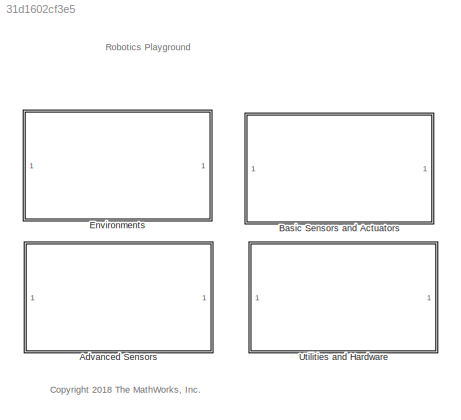
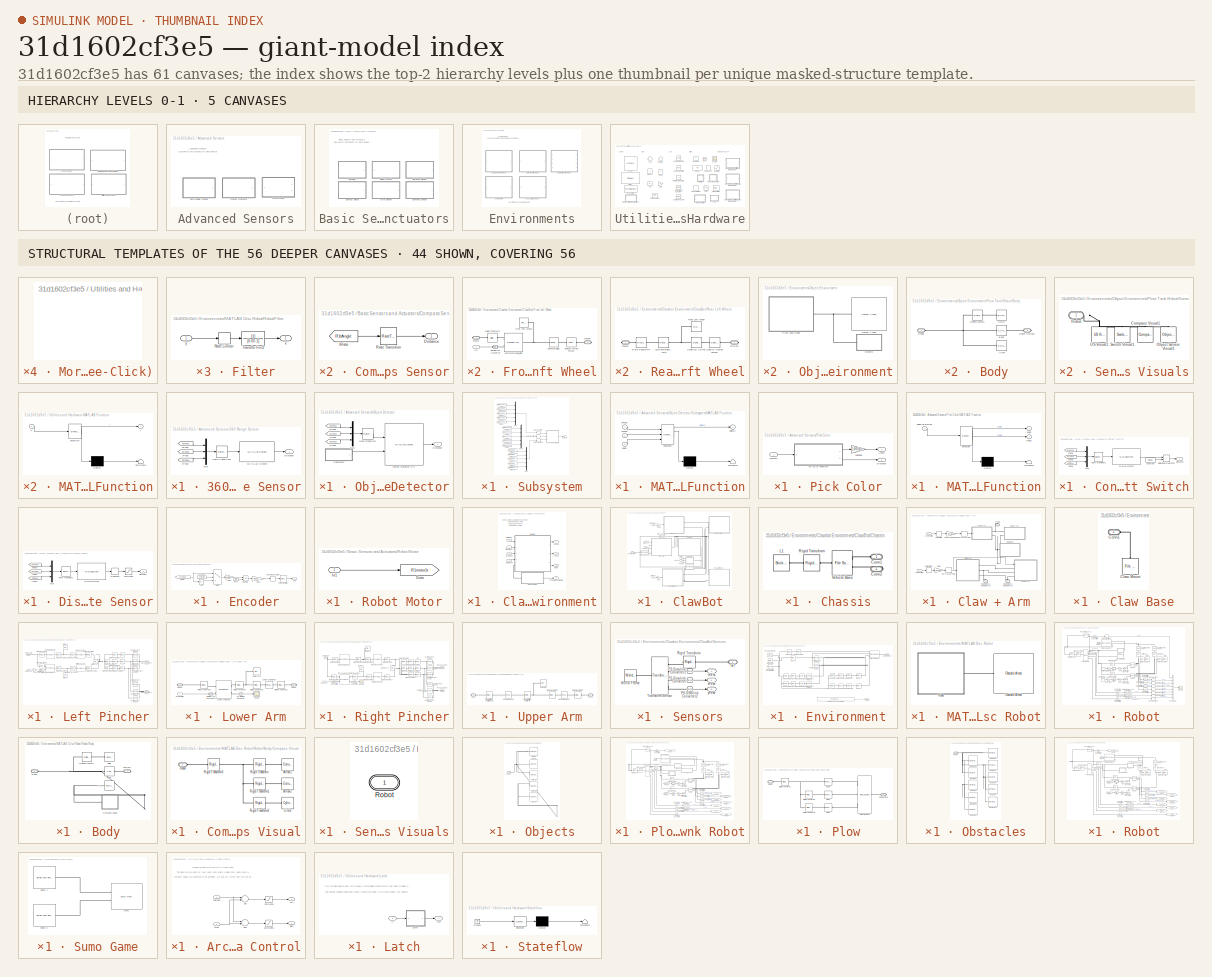
[diagram: thumbnail index - top-2 hierarchy levels (5 canvases) + 44 structural-template representatives of the remaining 56 canvases]
MODEL slx_31d1602cf3e5
KIND library
CONFIG AbsTol = auto
CONFIG EnableMultiTasking = off
CONFIG FixedStep = 0.01
CONFIG InitFcn = RPInit
CONFIG MaxStep = auto
CONFIG MinStep = auto
CONFIG RelTol = 1e-3
CONFIG SampleTimeConstraint = Unconstrained
CONFIG Solver = FixedStepDiscrete
CONFIG SolverName = FixedStepDiscrete
CONFIG StartTime = 0.0
CONFIG StopTime = 10.0
BLOCK [SubSystem] Advanced Sensors
  Ports = []
  RequestExecContextInheritance = off
BLOCK [SubSystem] Advanced Sensors/360 Range Sensor
  Ports = [0, 1]
  RequestExecContextInheritance = off
BLOCK [Outport] Advanced Sensors/360 Range Sensor/Distance
  IconDisplay = Port number
  VectorParamsAs1DForOutWhenUnconnected = off
BLOCK [MATLABSystem] Advanced Sensors/360 Range Sensor/MATLAB System
  MaskDisplay = disp(['Lidar' char(10) 'Sensor']);\nport_label('input',1,'pose');\nport_label('output',1,'ranges');
  MaskType = LidarSensorRP
  Ports = [1, 1]
  System = LidarSensorRP
  mapName = occGrid
  maxRange = maxSenRange
  scanAngles = [ 0:sensDegRes*pi/180:2*pi-(sensDegRes*pi/180)]
  sensorOffset = sensOff
BLOCK [Mux] Advanced Sensors/360 Range Sensor/Mux
  DisplayOption = bar
  Inputs = 3
  Ports = [3, 1]
BLOCK [RateTransition] Advanced Sensors/360 Range Sensor/Rate Transition1
  OutPortSampleTime = sensorTs
BLOCK [From] Advanced Sensors/360 Range Sensor/tPose
  GotoTag = R1tPose
  TagVisibility = global
BLOCK [From] Advanced Sensors/360 Range Sensor/xPose
  GotoTag = R1xPose
  TagVisibility = global
BLOCK [From] Advanced Sensors/360 Range Sensor/yPose
  GotoTag = R1yPose
  TagVisibility = global
BLOCK [SubSystem] Advanced Sensors/Object Detector
  Ports = [0, 1]
  RequestExecContextInheritance = off
BLOCK [Outport] Advanced Sensors/Object Detector/Distance
  IconDisplay = Port number
  VectorParamsAs1DForOutWhenUnconnected = off
BLOCK [Mux] Advanced Sensors/Object Detector/Mux
  DisplayOption = bar
  Inputs = 3
  Ports = [3, 1]
BLOCK [MATLABSystem] Advanced Sensors/Object Detector/Object Detector Src
  MaskDisplay = disp(['Object' char(10) 'Detector']);\nport_label('input',1,'pose');\nport_label('input',2,'objects');\nport_label('output',1,'detections');
  MaskType = ObjectDetectorRP
  Ports = [2, 1]
  System = ObjectDetectorRP
  fieldOfView = sensFOV*pi/180
  mapName = occGrid
  maxDetections = 5
  maxRange = maxSenRange
  sensorAngle = sensOffDeg*pi/180
  sensorOffset = sensOff
BLOCK [RateTransition] Advanced Sensors/Object Detector/Rate Transition
  OutPortSampleTime = sensorTs
BLOCK [SubSystem] Advanced Sensors/Object Detector/Subsystem
  Ports = [0, 1]
  RequestExecContextInheritance = off
BLOCK [From] Advanced Sensors/Object Detector/Subsystem/From
  GotoTag = Obj1xPose
BLOCK [From] Advanced Sensors/Object Detector/Subsystem/From1
  GotoTag = Obj2xPose
BLOCK [From] Advanced Sensors/Object Detector/Subsystem/From10
  GotoTag = Obj1label
BLOCK [From] Advanced Sensors/Object Detector/Subsystem/From11
  GotoTag = Obj2label
BLOCK [From] Advanced Sensors/Object Detector/Subsystem/From12
  GotoTag = Obj3label
BLOCK [From] Advanced Sensors/Object Detector/Subsystem/From13
  GotoTag = Obj4label
BLOCK [From] Advanced Sensors/Object Detector/Subsystem/From14
  GotoTag = Obj5label
BLOCK [From] Advanced Sensors/Object Detector/Subsystem/From2
  GotoTag = Obj3xPose
BLOCK [From] Advanced Sensors/Object Detector/Subsystem/From3
  GotoTag = Obj4xPose
BLOCK [From] Advanced Sensors/Object Detector/Subsystem/From4
  GotoTag = Obj5xPose
BLOCK [From] Advanced Sensors/Object Detector/Subsystem/From5
  GotoTag = Obj1yPose
BLOCK [From] Advanced Sensors/Object Detector/Subsystem/From6
  GotoTag = Obj2yPose
BLOCK [From] Advanced Sensors/Object Detector/Subsystem/From7
  GotoTag = Obj3yPose
BLOCK [From] Advanced Sensors/Object Detector/Subsystem/From8
  GotoTag = Obj4yPose
BLOCK [From] Advanced Sensors/Object Detector/Subsystem/From9
  GotoTag = Obj5yPose
BLOCK [SubSystem] Advanced Sensors/Object Detector/Subsystem/MATLAB Function
  ErrorFcn = Stateflow.Translate.translate
  PermitHierarchicalResolution = ExplicitOnly
  Ports = [3, 1]
  RequestExecContextInheritance = off
  SFBlockType = MATLAB Function
  TreatAsAtomicUnit = on
BLOCK [Demux] Advanced Sensors/Object Detector/Subsystem/MATLAB Function/ Demux 
  Outputs = 1
  Ports = [1, 1]
BLOCK [S-Function] Advanced Sensors/Object Detector/Subsystem/MATLAB Function/ SFunction 
  EnableBusSupport = off
  FunctionName = sf_sfun
  PortCounts = [3 2]
  Ports = [3, 2]
  SFcnIsStateOwnerBlock = off
  SFunctionDeploymentMode = off
  Tag = Stateflow S-Function 2
BLOCK [Terminator] Advanced Sensors/Object Detector/Subsystem/MATLAB Function/ Terminator 
BLOCK [Inport] Advanced Sensors/Object Detector/Subsystem/MATLAB Function/labels
  IconDisplay = Port number
  Port = 3
BLOCK [Outport] Advanced Sensors/Object Detector/Subsystem/MATLAB Function/objects
  IconDisplay = Port number
  VectorParamsAs1DForOutWhenUnconnected = off
BLOCK [Inport] Advanced Sensors/Object Detector/Subsystem/MATLAB Function/xPoses
  IconDisplay = Port number
BLOCK [Inport] Advanced Sensors/Object Detector/Subsystem/MATLAB Function/yPoses
  IconDisplay = Port number
  Port = 2
BLOCK [Mux] Advanced Sensors/Object Detector/Subsystem/Mux
  DisplayOption = bar
  Inputs = 5
  Ports = [5, 1]
BLOCK [Mux] Advanced Sensors/Object Detector/Subsystem/Mux2
  DisplayOption = bar
  Inputs = 5
  Ports = [5, 1]
BLOCK [Mux] Advanced Sensors/Object Detector/Subsystem/Mux3
  DisplayOption = bar
  Inputs = 5
  Ports = [5, 1]
BLOCK [Outport] Advanced Sensors/Object Detector/Subsystem/Objects
  IconDisplay = Port number
  VectorParamsAs1DForOutWhenUnconnected = off
BLOCK [RateTransition] Advanced Sensors/Object Detector/Subsystem/Rate Transition1
  OutPortSampleTime = sensorTs
BLOCK [RateTransition] Advanced Sensors/Object Detector/Subsystem/Rate Transition2
  OutPortSampleTime = sensorTs
BLOCK [RateTransition] Advanced Sensors/Object Detector/Subsystem/Rate Transition3
  OutPortSampleTime = sensorTs
BLOCK [From] Advanced Sensors/Object Detector/tPose
  GotoTag = R1tPose
  TagVisibility = global
BLOCK [From] Advanced Sensors/Object Detector/xPose
  GotoTag = R1xPose
  TagVisibility = global
BLOCK [From] Advanced Sensors/Object Detector/yPose
  GotoTag = R1yPose
  TagVisibility = global
BLOCK [SubSystem] Advanced Sensors/Pick Color
  Ports = [1, 2]
  RequestExecContextInheritance = off
BLOCK [Outport] Advanced Sensors/Pick Color/Angle
  IconDisplay = Port number
  VectorParamsAs1DForOutWhenUnconnected = off
BLOCK [Outport] Advanced Sensors/Pick Color/Distance
  IconDisplay = Port number
  Port = 2
  VectorParamsAs1DForOutWhenUnconnected = off
BLOCK [SubSystem] Advanced Sensors/Pick Color/MATLAB Function
  ErrorFcn = Stateflow.Translate.translate
  PermitHierarchicalResolution = ExplicitOnly
  Ports = [1, 2]
  RequestExecContextInheritance = off
  SFBlockType = MATLAB Function
  TreatAsAtomicUnit = on
BLOCK [Demux] Advanced Sensors/Pick Color/MATLAB Function/ Demux 
  Outputs = 1
  Ports = [1, 1]
BLOCK [S-Function] Advanced Sensors/Pick Color/MATLAB Function/ SFunction 
  EnableBusSupport = off
  FunctionName = sf_sfun
  Parameters = color
  PortCounts = [1 3]
  Ports = [1, 3]
  SFcnIsStateOwnerBlock = off
  SFunctionDeploymentMode = off
  Tag = Stateflow S-Function 6
BLOCK [Terminator] Advanced Sensors/Pick Color/MATLAB Function/ Terminator 
BLOCK [Outport] Advanced Sensors/Pick Color/MATLAB Function/angle
  IconDisplay = Port number
  VectorParamsAs1DForOutWhenUnconnected = off
BLOCK [Inport] Advanced Sensors/Pick Color/MATLAB Function/objectsDetected
  IconDisplay = Port number
BLOCK [Outport] Advanced Sensors/Pick Color/MATLAB Function/range
  IconDisplay = Port number
  Port = 2
  VectorParamsAs1DForOutWhenUnconnected = off
BLOCK [Inport] Advanced Sensors/Pick Color/Objects
  IconDisplay = Port number
BLOCK [Gain] Advanced Sensors/Pick Color/rad2deg
  Gain = 180/pi
  OutDataTypeStr = Inherit: Inherit via internal rule
  ParamDataTypeStr = Inherit: Inherit via internal rule
  SaturateOnIntegerOverflow = off
BLOCK [SubSystem] Basic Sensors and Actuators
  Ports = []
  RequestExecContextInheritance = off
BLOCK [SubSystem] Basic Sensors and Actuators/Compass Sensor
  Ports = [0, 1]
  RequestExecContextInheritance = off
BLOCK [Outport] Basic Sensors and Actuators/Compass Sensor/Distance
  IconDisplay = Port number
  VectorParamsAs1DForOutWhenUnconnected = off
BLOCK [RateTransition] Basic Sensors and Actuators/Compass Sensor/Rate Transition
  OutPortSampleTime = sensorTs
BLOCK [From] Basic Sensors and Actuators/Compass Sensor/tRate
  GotoTag = R1tAngle
  TagVisibility = global
BLOCK [SubSystem] Basic Sensors and Actuators/Contact Switch
  Ports = [0, 1]
  RequestExecContextInheritance = off
BLOCK [Constant] Basic Sensors and Actuators/Contact Switch/Constant
  Value = trigDist
BLOCK [Outport] Basic Sensors and Actuators/Contact Switch/Distance
  IconDisplay = Port number
  VectorParamsAs1DForOutWhenUnconnected = off
BLOCK [MATLABSystem] Basic Sensors and Actuators/Contact Switch/MATLAB System
  MaskDisplay = disp(['Lidar' char(10) 'Sensor']);\nport_label('input',1,'pose');\nport_label('output',1,'ranges');
  MaskType = LidarSensorRP
  Ports = [1, 1]
  System = LidarSensorRP
  mapName = occGrid
  maxRange = trigDist+1
  scanAngles = sensOffDeg*pi/180
  sensorOffset = sensOff
BLOCK [Mux] Basic Sensors and Actuators/Contact Switch/Mux
  DisplayOption = bar
  Inputs = 3
  Ports = [3, 1]
BLOCK [RateTransition] Basic Sensors and Actuators/Contact Switch/Rate Transition1
  OutPortSampleTime = sensorTs
BLOCK [RelationalOperator] Basic Sensors and Actuators/Contact Switch/Relational Operator
  InputSameDT = off
  Operator = <
  OutDataTypeStr = boolean
  Ports = [2, 1]
BLOCK [From] Basic Sensors and Actuators/Contact Switch/tPose
  GotoTag = R1tPose
  TagVisibility = global
BLOCK [From] Basic Sensors and Actuators/Contact Switch/xPose
  GotoTag = R1xPose
  TagVisibility = global
BLOCK [From] Basic Sensors and Actuators/Contact Switch/yPose
  GotoTag = R1yPose
  TagVisibility = global
BLOCK [SubSystem] Basic Sensors and Actuators/Distance Sensor
  Ports = [0, 1]
  RequestExecContextInheritance = off
BLOCK [Outport] Basic Sensors and Actuators/Distance Sensor/Distance
  IconDisplay = Port number
  VectorParamsAs1DForOutWhenUnconnected = off
BLOCK [MATLABSystem] Basic Sensors and Actuators/Distance Sensor/MATLAB System
  MaskDisplay = disp(['Lidar' char(10) 'Sensor']);\nport_label('input',1,'pose');\nport_label('output',1,'ranges');
  MaskType = LidarSensorRP
  Ports = [1, 1]
  System = LidarSensorRP
  mapName = occGrid
  maxRange = maxSenRange
  scanAngles = sensOffDeg*pi/180
  sensorOffset = sensOff
BLOCK [Mux] Basic Sensors and Actuators/Distance Sensor/Mux
  DisplayOption = bar
  Inputs = 3
  Ports = [3, 1]
BLOCK [Quantizer] Basic Sensors and Actuators/Distance Sensor/Quantizer
  QuantizationInterval = senRes
BLOCK [RateTransition] Basic Sensors and Actuators/Distance Sensor/Rate Transition1
  OutPortSampleTime = sensorTs
BLOCK [Saturate] Basic Sensors and Actuators/Distance Sensor/Saturation
  InputPortMap = u0
  LowerLimit = minSenRange
  Ports = [1, 1]
  UpperLimit = maxSenRange
BLOCK [From] Basic Sensors and Actuators/Distance Sensor/tPose
  GotoTag = R1tPose
  TagVisibility = global
BLOCK [From] Basic Sensors and Actuators/Distance Sensor/xPose
  GotoTag = R1xPose
  TagVisibility = global
BLOCK [From] Basic Sensors and Actuators/Distance Sensor/yPose
  GotoTag = R1yPose
  TagVisibility = global
BLOCK [SubSystem] Basic Sensors and Actuators/Encoder
  Ports = [0, 1]
  RequestExecContextInheritance = off
BLOCK [Abs] Basic Sensors and Actuators/Encoder/Abs
  SaturateOnIntegerOverflow = off
BLOCK [Constant] Basic Sensors and Actuators/Encoder/Constant
  Value = detectDir
BLOCK [Gain] Basic Sensors and Actuators/Encoder/Gain2
  Gain = 180/pi
  OutDataTypeStr = Inherit: Inherit via internal rule
  ParamDataTypeStr = Inherit: Inherit via internal rule
  SaturateOnIntegerOverflow = off
BLOCK [Gain] Basic Sensors and Actuators/Encoder/Gain3
  Gain = ticks/360
  OutDataTypeStr = Inherit: Inherit via internal rule
  ParamDataTypeStr = Inherit: Inherit via internal rule
  SaturateOnIntegerOverflow = off
BLOCK [Integrator] Basic Sensors and Actuators/Encoder/Integrator
  ExternalReset = rising
  Ports = [2, 1]
BLOCK [Outport] Basic Sensors and Actuators/Encoder/Out1
  IconDisplay = Port number
  VectorParamsAs1DForOutWhenUnconnected = off
BLOCK [RateTransition] Basic Sensors and Actuators/Encoder/Rate Transition
  OutPortSampleTime = sensorTs
BLOCK [Rounding] Basic Sensors and Actuators/Encoder/Rounding Function
  Operator = ceil
BLOCK [Switch] Basic Sensors and Actuators/Encoder/Switch
  Criteria = u2 ~= 0
  InputSameDT = off
  SaturateOnIntegerOverflow = off
BLOCK [From] Basic Sensors and Actuators/Encoder/motorw
  GotoTag = R1motor1w
  TagVisibility = global
BLOCK [Ground] Basic Sensors and Actuators/Encoder/reset
BLOCK [SubSystem] Basic Sensors and Actuators/Gyro Sensor
  Ports = [0, 1]
  RequestExecContextInheritance = off
BLOCK [Outport] Basic Sensors and Actuators/Gyro Sensor/Distance
  IconDisplay = Port number
  VectorParamsAs1DForOutWhenUnconnected = off
BLOCK [RateTransition] Basic Sensors and Actuators/Gyro Sensor/Rate Transition
  OutPortSampleTime = sensorTs
BLOCK [From] Basic Sensors and Actuators/Gyro Sensor/tRate
  GotoTag = R1tRate
  TagVisibility = global
BLOCK [SubSystem] Basic Sensors and Actuators/Robot Motor
  Ports = [1]
  RequestExecContextInheritance = off
BLOCK [Goto] Basic Sensors and Actuators/Robot Motor/Goto
  GotoTag = R1motor1t
  TagVisibility = global
BLOCK [Inport] Basic Sensors and Actuators/Robot Motor/In1
  IconDisplay = Port number
BLOCK [SubSystem] Environments
  Ports = []
  RequestExecContextInheritance = off
BLOCK [SubSystem] Environments/Clawbot Environment
  Ports = [4, 4]
  RequestExecContextInheritance = off
BLOCK [SubSystem] Environments/Clawbot Environment/ClawBot
  Ports = [4, 3, 0, 0, 0, 1]
  RequestExecContextInheritance = off
BLOCK [SubSystem] Environments/Clawbot Environment/ClawBot/Chassis
  Ports = [0, 0, 0, 0, 0, 1, 1]
  RequestExecContextInheritance = off
BLOCK [PMIOPort] Environments/Clawbot Environment/ClawBot/Chassis/Conn1
  Side = Left
BLOCK [PMIOPort] Environments/Clawbot Environment/ClawBot/Chassis/Conn2
  Port = 2
  Side = Right
BLOCK [Reference] Environments/Clawbot Environment/ClawBot/Chassis/L1  REF=sm_lib/Body Elements/Brick Solid
  Ports = [0, 0, 0, 0, 0, 1]
  SourceBlock = sm_lib/Body Elements/Brick Solid
  SourceProductBaseCode = MS
  SourceType = Brick Solid
BLOCK [Reference] Environments/Clawbot Environment/ClawBot/Chassis/Rigid Transform  REF=sm_lib/Frames and
Transforms/Rigid
Transform
  Ports = [0, 0, 0, 0, 0, 1, 1]
  SourceBlock = sm_lib/Frames and\nTransforms/Rigid\nTransform
  SourceProductBaseCode = MS
  SourceType = Rigid\nTransform
BLOCK [Reference] Environments/Clawbot Environment/ClawBot/Chassis/Vehicle Base  REF=sm_lib/Body Elements/File Solid
  Ports = [0, 0, 0, 0, 0, 2, 1]
  SourceBlock = sm_lib/Body Elements/File Solid
  SourceProductBaseCode = MS
  SourceType = File Solid
BLOCK [SubSystem] Environments/Clawbot Environment/ClawBot/Claw + Arm
  Ports = [2, 0, 0, 0, 0, 2, 1]
  RequestExecContextInheritance = off
BLOCK [SubSystem] Environments/Clawbot Environment/ClawBot/Claw + Arm/Claw Base
  Ports = [0, 0, 0, 0, 0, 1]
  RequestExecContextInheritance = off
BLOCK [Reference] Environments/Clawbot Environment/ClawBot/Claw + Arm/Claw Base/Claw Mount  REF=sm_lib/Body Elements/File Solid
  Ports = [0, 0, 0, 0, 0, 1]
  SourceBlock = sm_lib/Body Elements/File Solid
  SourceProductBaseCode = MS
  SourceType = File Solid
BLOCK [PMIOPort] Environments/Clawbot Environment/ClawBot/Claw + Arm/Claw Base/Conn1
  Side = Left
BLOCK [PMIOPort] Environments/Clawbot Environment/ClawBot/Claw + Arm/Claw2Block1 Contact Force
  Port = 2
  Side = Left
BLOCK [PMIOPort] Environments/Clawbot Environment/ClawBot/Claw + Arm/Claw2Block2 Contact Force
  Side = Left
BLOCK [Gain] Environments/Clawbot Environment/ClawBot/Claw + Arm/Degrees to Radians
  Gain = pi/180
  OutDataTypeStr = Inherit: Inherit via internal rule
  ParamDataTypeStr = Inherit: Inherit via internal rule
  SaturateOnIntegerOverflow = off
BLOCK [PMIOPort] Environments/Clawbot Environment/ClawBot/Claw + Arm/Frame
  Port = 3
  Side = Right
BLOCK [Gain] Environments/Clawbot Environment/ClawBot/Claw + Arm/Gain1
  Gain = pi/180
  OutDataTypeStr = Inherit: Inherit via internal rule
  ParamDataTypeStr = Inherit: Inherit via internal rule
  SaturateOnIntegerOverflow = off
BLOCK [SubSystem] Environments/Clawbot Environment/ClawBot/Claw + Arm/Left Pincher
  Ports = [1, 0, 0, 0, 0, 0, 3]
  RequestExecContextInheritance = off
BLOCK [PMIOPort] Environments/Clawbot Environment/ClawBot/Claw + Arm/Left Pincher/Block1 Contact Force
  Port = 2
  Side = Right
BLOCK [PMIOPort] Environments/Clawbot Environment/ClawBot/Claw + Arm/Left Pincher/Block2 Contact Force
  Port = 3
  Side = Right
BLOCK [PMIOPort] Environments/Clawbot Environment/ClawBot/Claw + Arm/Left Pincher/Frame2arm
  Side = Right
BLOCK [Gain] Environments/Clawbot Environment/ClawBot/Claw + Arm/Left Pincher/Gain
  Gain = -1
  OutDataTypeStr = Inherit: Inherit via internal rule
  ParamDataTypeStr = Inherit: Inherit via internal rule
  SaturateOnIntegerOverflow = off
BLOCK [Reference] Environments/Clawbot Environment/ClawBot/Claw + Arm/Left Pincher/L1  REF=sm_lib/Body Elements/Brick Solid
  Ports = [0, 0, 0, 0, 0, 1, 1]
  SourceBlock = sm_lib/Body Elements/Brick Solid
  SourceProductBaseCode = MS
  SourceType = Brick Solid
BLOCK [Reference] Environments/Clawbot Environment/ClawBot/Claw + Arm/Left Pincher/L2  REF=sm_lib/Body Elements/Brick Solid
  Ports = [0, 0, 0, 0, 0, 1, 1]
  SourceBlock = sm_lib/Body Elements/Brick Solid
  SourceProductBaseCode = MS
  SourceType = Brick Solid
BLOCK [Reference] Environments/Clawbot Environment/ClawBot/Claw + Arm/Left Pincher/L3  REF=sm_lib/Body Elements/Brick Solid
  Ports = [0, 0, 0, 0, 0, 1, 1]
  SourceBlock = sm_lib/Body Elements/Brick Solid
  SourceProductBaseCode = MS
  SourceType = Brick Solid
BLOCK [Reference] Environments/Clawbot Environment/ClawBot/Claw + Arm/Left Pincher/Rigid Transform1  REF=sm_lib/Frames and
Transforms/Rigid
Transform
  Ports = [0, 0, 0, 0, 0, 1, 1]
  SourceBlock = sm_lib/Frames and\nTransforms/Rigid\nTransform
  SourceProductBaseCode = MS
  SourceType = Rigid\nTransform
BLOCK [Reference] Environments/Clawbot Environment/ClawBot/Claw + Arm/Left Pincher/Rigid Transform18  REF=sm_lib/Frames and
Transforms/Rigid
Transform
  Ports = [0, 0, 0, 0, 0, 1, 1]
  SourceBlock = sm_lib/Frames and\nTransforms/Rigid\nTransform
  SourceProductBaseCode = MS
  SourceType = Rigid\nTransform
BLOCK [Reference] Environments/Clawbot Environment/ClawBot/Claw + Arm/Left Pincher/Rigid Transform19  REF=sm_lib/Frames and
Transforms/Rigid
Transform
  Ports = [0, 0, 0, 0, 0, 1, 1]
  SourceBlock = sm_lib/Frames and\nTransforms/Rigid\nTransform
  SourceProductBaseCode = MS
  SourceType = Rigid\nTransform
BLOCK [Reference] Environments/Clawbot Environment/ClawBot/Claw + Arm/Left Pincher/Rigid Transform2  REF=sm_lib/Frames and
Transforms/Rigid
Transform
  Ports = [0, 0, 0, 0, 0, 1, 1]
  SourceBlock = sm_lib/Frames and\nTransforms/Rigid\nTransform
  SourceProductBaseCode = MS
  SourceType = Rigid\nTransform
BLOCK [Reference] Environments/Clawbot Environment/ClawBot/Claw + Arm/Left Pincher/Rigid Transform20  REF=sm_lib/Frames and
Transforms/Rigid
Transform
  Ports = [0, 0, 0, 0, 0, 1, 1]
  SourceBlock = sm_lib/Frames and\nTransforms/Rigid\nTransform
  SourceProductBaseCode = MS
  SourceType = Rigid\nTransform
BLOCK [Reference] Environments/Clawbot Environment/ClawBot/Claw + Arm/Left Pincher/Rigid Transform21  REF=sm_lib/Frames and
Transforms/Rigid
Transform
  Ports = [0, 0, 0, 0, 0, 1, 1]
  SourceBlock = sm_lib/Frames and\nTransforms/Rigid\nTransform
  SourceProductBaseCode = MS
  SourceType = Rigid\nTransform
BLOCK [Reference] Environments/Clawbot Environment/ClawBot/Claw + Arm/Left Pincher/Rigid Transform22  REF=sm_lib/Frames and
Transforms/Rigid
Transform
  Ports = [0, 0, 0, 0, 0, 1, 1]
  SourceBlock = sm_lib/Frames and\nTransforms/Rigid\nTransform
  SourceProductBaseCode = MS
  SourceType = Rigid\nTransform
BLOCK [Reference] Environments/Clawbot Environment/ClawBot/Claw + Arm/Left Pincher/Rigid Transform23  REF=sm_lib/Frames and
Transforms/Rigid
Transform
  Ports = [0, 0, 0, 0, 0, 1, 1]
  SourceBlock = sm_lib/Frames and\nTransforms/Rigid\nTransform
  SourceProductBaseCode = MS
  SourceType = Rigid\nTransform
BLOCK [Reference] Environments/Clawbot Environment/ClawBot/Claw + Arm/Left Pincher/Rigid Transform25  REF=sm_lib/Frames and
Transforms/Rigid
Transform
  Ports = [0, 0, 0, 0, 0, 1, 1]
  SourceBlock = sm_lib/Frames and\nTransforms/Rigid\nTransform
  SourceProductBaseCode = MS
  SourceType = Rigid\nTransform
BLOCK [Reference] Environments/Clawbot Environment/ClawBot/Claw + Arm/Left Pincher/Rigid Transform27  REF=sm_lib/Frames and
Transforms/Rigid
Transform
  Ports = [0, 0, 0, 0, 0, 1, 1]
  SourceBlock = sm_lib/Frames and\nTransforms/Rigid\nTransform
  SourceProductBaseCode = MS
  SourceType = Rigid\nTransform
BLOCK [Reference] Environments/Clawbot Environment/ClawBot/Claw + Arm/Left Pincher/Rigid Transform28  REF=sm_lib/Frames and
Transforms/Rigid
Transform
  Ports = [0, 0, 0, 0, 0, 1, 1]
  SourceBlock = sm_lib/Frames and\nTransforms/Rigid\nTransform
  SourceProductBaseCode = MS
  SourceType = Rigid\nTransform
BLOCK [Reference] Environments/Clawbot Environment/ClawBot/Claw + Arm/Left Pincher/Rigid Transform3  REF=sm_lib/Frames and
Transforms/Rigid
Transform
  Ports = [0, 0, 0, 0, 0, 1, 1]
  SourceBlock = sm_lib/Frames and\nTransforms/Rigid\nTransform
  SourceProductBaseCode = MS
  SourceType = Rigid\nTransform
BLOCK [Reference] Environments/Clawbot Environment/ClawBot/Claw + Arm/Left Pincher/Rigid Transform5  REF=sm_lib/Frames and
Transforms/Rigid
Transform
  Ports = [0, 0, 0, 0, 0, 1, 1]
  SourceBlock = sm_lib/Frames and\nTransforms/Rigid\nTransform
  SourceProductBaseCode = MS
  SourceType = Rigid\nTransform
BLOCK [Reference] Environments/Clawbot Environment/ClawBot/Claw + Arm/Left Pincher/Simulink-PS Converter1  REF=nesl_utility/Simulink-PS
Converter
  Ports = [1, 0, 0, 0, 0, 0, 1]
  SourceBlock = nesl_utility/Simulink-PS\nConverter
  SourceProductBaseCode = SS
  SourceType = Simulink-PS\nConverter
BLOCK [Reference] Environments/Clawbot Environment/ClawBot/Claw + Arm/Left Pincher/Spatial Contact Force1  REF=sm_lib/Forces and
Torques/Spatial
Contact Force
  Ports = [0, 0, 0, 0, 0, 1, 1]
  SourceBlock = sm_lib/Forces and\nTorques/Spatial\nContact Force
  SourceProductBaseCode = MS
  SourceType = Spatial\nContact Force
BLOCK [Reference] Environments/Clawbot Environment/ClawBot/Claw + Arm/Left Pincher/Spatial Contact Force2  REF=sm_lib/Forces and
Torques/Spatial
Contact Force
  Ports = [0, 0, 0, 0, 0, 1, 1]
  SourceBlock = sm_lib/Forces and\nTorques/Spatial\nContact Force
  SourceProductBaseCode = MS
  SourceType = Spatial\nContact Force
BLOCK [Reference] Environments/Clawbot Environment/ClawBot/Claw + Arm/Left Pincher/Spatial Contact Force3  REF=sm_lib/Forces and
Torques/Spatial
Contact Force
  Ports = [0, 0, 0, 0, 0, 1, 1]
  SourceBlock = sm_lib/Forces and\nTorques/Spatial\nContact Force
  SourceProductBaseCode = MS
  SourceType = Spatial\nContact Force
BLOCK [Reference] Environments/Clawbot Environment/ClawBot/Claw + Arm/Left Pincher/Spatial Contact Force4  REF=sm_lib/Forces and
Torques/Spatial
Contact Force
  Ports = [0, 0, 0, 0, 0, 1, 1]
  SourceBlock = sm_lib/Forces and\nTorques/Spatial\nContact Force
  SourceProductBaseCode = MS
  SourceType = Spatial\nContact Force
BLOCK [Reference] Environments/Clawbot Environment/ClawBot/Claw + Arm/Left Pincher/Spatial Contact Force5  REF=sm_lib/Forces and
Torques/Spatial
Contact Force
  Ports = [0, 0, 0, 0, 0, 1, 1]
  SourceBlock = sm_lib/Forces and\nTorques/Spatial\nContact Force
  SourceProductBaseCode = MS
  SourceType = Spatial\nContact Force
BLOCK [Reference] Environments/Clawbot Environment/ClawBot/Claw + Arm/Left Pincher/Spatial Contact Force6  REF=sm_lib/Forces and
Torques/Spatial
Contact Force
  Ports = [0, 0, 0, 0, 0, 1, 1]
  SourceBlock = sm_lib/Forces and\nTorques/Spatial\nContact Force
  SourceProductBaseCode = MS
  SourceType = Spatial\nContact Force
BLOCK [Inport] Environments/Clawbot Environment/ClawBot/Claw + Arm/Left Pincher/clawPose
  IconDisplay = Port number
BLOCK [Reference] Environments/Clawbot Environment/ClawBot/Claw + Arm/Left Pincher/left gear  REF=sm_lib/Body Elements/File Solid
  Ports = [0, 0, 0, 0, 0, 1]
  SourceBlock = sm_lib/Body Elements/File Solid
  SourceProductBaseCode = MS
  SourceType = File Solid
BLOCK [Reference] Environments/Clawbot Environment/ClawBot/Claw + Arm/Left Pincher/left pinch2gear  REF=sm_lib/Joints/Revolute Joint
  Ports = [0, 0, 0, 0, 0, 1, 1]
  SourceBlock = sm_lib/Joints/Revolute Joint
  SourceProductBaseCode = MS
  SourceType = Revolute Joint
BLOCK [Reference] Environments/Clawbot Environment/ClawBot/Claw + Arm/Left Pincher/left pincher  REF=sm_lib/Body Elements/File Solid
  Ports = [0, 0, 0, 0, 0, 1]
  SourceBlock = sm_lib/Body Elements/File Solid
  SourceProductBaseCode = MS
  SourceType = File Solid
BLOCK [Reference] Environments/Clawbot Environment/ClawBot/Claw + Arm/Left Pincher/left pivot  REF=sm_lib/Body Elements/File Solid
  Ports = [0, 0, 0, 0, 0, 1]
  SourceBlock = sm_lib/Body Elements/File Solid
  SourceProductBaseCode = MS
  SourceType = File Solid
BLOCK [Reference] Environments/Clawbot Environment/ClawBot/Claw + Arm/Left Pincher/left_gear2mount  REF=sm_lib/Joints/Revolute Joint
  Ports = [0, 0, 0, 0, 0, 2, 1]
  SourceBlock = sm_lib/Joints/Revolute Joint
  SourceProductBaseCode = MS
  SourceType = Revolute Joint
BLOCK [Reference] Environments/Clawbot Environment/ClawBot/Claw + Arm/Left Pincher/left_pinch2pivot  REF=sm_lib/Joints/Revolute Joint
  Ports = [0, 0, 0, 0, 0, 1, 1]
  SourceBlock = sm_lib/Joints/Revolute Joint
  SourceProductBaseCode = MS
  SourceType = Revolute Joint
BLOCK [Reference] Environments/Clawbot Environment/ClawBot/Claw + Arm/Left Pincher/left_pivot2mount  REF=sm_lib/Joints/Revolute Joint
  Ports = [0, 0, 0, 0, 0, 1, 1]
  SourceBlock = sm_lib/Joints/Revolute Joint
  SourceProductBaseCode = MS
  SourceType = Revolute Joint
BLOCK [SubSystem] Environments/Clawbot Environment/ClawBot/Claw + Arm/Lower Arm
  Ports = [1, 0, 0, 0, 0, 0, 2]
  RequestExecContextInheritance = off
BLOCK [PMIOPort] Environments/Clawbot Environment/ClawBot/Claw + Arm/Lower Arm/Conn1
  Side = Right
BLOCK [PMIOPort] Environments/Clawbot Environment/ClawBot/Claw + Arm/Lower Arm/Conn2
  Port = 2
  Side = Right
BLOCK [Reference] Environments/Clawbot Environment/ClawBot/Claw + Arm/Lower Arm/Lower Arm  REF=sm_lib/Body Elements/File Solid
  Ports = [0, 0, 0, 0, 0, 1]
  SourceBlock = sm_lib/Body Elements/File Solid
  SourceProductBaseCode = MS
  SourceType = File Solid
BLOCK [Reference] Environments/Clawbot Environment/ClawBot/Claw + Arm/Lower Arm/LowerArm2base  REF=sm_lib/Joints/Revolute Joint
  Ports = [0, 0, 0, 0, 0, 2, 2]
  SourceBlock = sm_lib/Joints/Revolute Joint
  SourceProductBaseCode = MS
  SourceType = Revolute Joint
BLOCK [Reference] Environments/Clawbot Environment/ClawBot/Claw + Arm/Lower Arm/LowerArm2mount  REF=sm_lib/Joints/Revolute Joint
  Ports = [0, 0, 0, 0, 0, 1, 1]
  SourceBlock = sm_lib/Joints/Revolute Joint
  SourceProductBaseCode = MS
  SourceType = Revolute Joint
BLOCK [Reference] Environments/Clawbot Environment/ClawBot/Claw + Arm/Lower Arm/PS-Simulink Converter  REF=nesl_utility/PS-Simulink
Converter
  Ports = [0, 1, 0, 0, 0, 1]
  SourceBlock = nesl_utility/PS-Simulink\nConverter
  SourceProductBaseCode = SS
  SourceType = PS-Simulink\nConverter
BLOCK [Reference] Environments/Clawbot Environment/ClawBot/Claw + Arm/Lower Arm/Rigid Transform10  REF=sm_lib/Frames and
Transforms/Rigid
Transform
  Ports = [0, 0, 0, 0, 0, 1, 1]
  SourceBlock = sm_lib/Frames and\nTransforms/Rigid\nTransform
  SourceProductBaseCode = MS
  SourceType = Rigid\nTransform
BLOCK [Reference] Environments/Clawbot Environment/ClawBot/Claw + Arm/Lower Arm/Rigid Transform13  REF=sm_lib/Frames and
Transforms/Rigid
Transform
  Ports = [0, 0, 0, 0, 0, 1, 1]
  SourceBlock = sm_lib/Frames and\nTransforms/Rigid\nTransform
  SourceProductBaseCode = MS
  SourceType = Rigid\nTransform
BLOCK [Reference] Environments/Clawbot Environment/ClawBot/Claw + Arm/Lower Arm/Rigid Transform16  REF=sm_lib/Frames and
Transforms/Rigid
Transform
  Ports = [0, 0, 0, 0, 0, 1, 1]
  SourceBlock = sm_lib/Frames and\nTransforms/Rigid\nTransform
  SourceProductBaseCode = MS
  SourceType = Rigid\nTransform
BLOCK [Reference] Environments/Clawbot Environment/ClawBot/Claw + Arm/Lower Arm/Rigid Transform9  REF=sm_lib/Frames and
Transforms/Rigid
Transform
  Ports = [0, 0, 0, 0, 0, 1, 1]
  SourceBlock = sm_lib/Frames and\nTransforms/Rigid\nTransform
  SourceProductBaseCode = MS
  SourceType = Rigid\nTransform
BLOCK [Scope] Environments/Clawbot Environment/ClawBot/Claw + Arm/Lower Arm/Scope
  Floating = off
  NumInputPorts = 1
  Ports = [1]
  ScopeSpecificationString = Simulink.scopes.TimeScopeBlockCfg('CurrentConfiguration', extmgr.ConfigurationSet(extmgr.Configuration('Core','General UI',true),extmgr.Configuration('Core','Source UI',true),extmgr.Configuration('Sources','WiredSimulink',true),extmgr.Configuration('Visuals','Time Domain',true,'SerializedDisplays',{struct('MinYLimReal','-101.85053','MaxYLimReal','95.32252','YLabelReal','','MinYLimMag',' 0.00000','...<+1380ch>
BLOCK [Reference] Environments/Clawbot Environment/ClawBot/Claw + Arm/Lower Arm/Simulink-PS Converter2  REF=nesl_utility/Simulink-PS
Converter
  Ports = [1, 0, 0, 0, 0, 0, 1]
  SourceBlock = nesl_utility/Simulink-PS\nConverter
  SourceProductBaseCode = SS
  SourceType = Simulink-PS\nConverter
BLOCK [Inport] Environments/Clawbot Environment/ClawBot/Claw + Arm/Lower Arm/armPosition
  IconDisplay = Port number
BLOCK [RateLimiter] Environments/Clawbot Environment/ClawBot/Claw + Arm/Rate Limiter
  FallingSlewLimit = -25
  RisingSlewLimit = 25
  SampleTimeMode = inherited
BLOCK [RateLimiter] Environments/Clawbot Environment/ClawBot/Claw + Arm/Rate Limiter1
  FallingSlewLimit = -1000
  RisingSlewLimit = 1000
  SampleTimeMode = inherited
BLOCK [SubSystem] Environments/Clawbot Environment/ClawBot/Claw + Arm/Right Pincher
  Ports = [1, 0, 0, 0, 0, 3]
  RequestExecContextInheritance = off
BLOCK [PMIOPort] Environments/Clawbot Environment/ClawBot/Claw + Arm/Right Pincher/Block1 Contact Force
  Port = 2
  Side = Left
BLOCK [PMIOPort] Environments/Clawbot Environment/ClawBot/Claw + Arm/Right Pincher/Block2 Contact Force
  Port = 3
  Side = Left
BLOCK [PMIOPort] Environments/Clawbot Environment/ClawBot/Claw + Arm/Right Pincher/Claw Base
  Side = Left
BLOCK [Reference] Environments/Clawbot Environment/ClawBot/Claw + Arm/Right Pincher/PS-Simulink Converter  REF=nesl_utility/PS-Simulink
Converter
  Ports = [0, 1, 0, 0, 0, 1]
  SourceBlock = nesl_utility/PS-Simulink\nConverter
  SourceProductBaseCode = SS
  SourceType = PS-Simulink\nConverter
BLOCK [Reference] Environments/Clawbot Environment/ClawBot/Claw + Arm/Right Pincher/R1  REF=sm_lib/Body Elements/Brick Solid
  Ports = [0, 0, 0, 0, 0, 1, 1]
  SourceBlock = sm_lib/Body Elements/Brick Solid
  SourceProductBaseCode = MS
  SourceType = Brick Solid
BLOCK [Reference] Environments/Clawbot Environment/ClawBot/Claw + Arm/Right Pincher/R2  REF=sm_lib/Body Elements/Brick Solid
  Ports = [0, 0, 0, 0, 0, 1, 1]
  SourceBlock = sm_lib/Body Elements/Brick Solid
  SourceProductBaseCode = MS
  SourceType = Brick Solid
BLOCK [Reference] Environments/Clawbot Environment/ClawBot/Claw + Arm/Right Pincher/R3  REF=sm_lib/Body Elements/Brick Solid
  Ports = [0, 0, 0, 0, 0, 1, 1]
  SourceBlock = sm_lib/Body Elements/Brick Solid
  SourceProductBaseCode = MS
  SourceType = Brick Solid
BLOCK [Reference] Environments/Clawbot Environment/ClawBot/Claw + Arm/Right Pincher/Rigid Transform  REF=sm_lib/Frames and
Transforms/Rigid
Transform
  Ports = [0, 0, 0, 0, 0, 1, 1]
  SourceBlock = sm_lib/Frames and\nTransforms/Rigid\nTransform
  SourceProductBaseCode = MS
  SourceType = Rigid\nTransform
BLOCK [Reference] Environments/Clawbot Environment/ClawBot/Claw + Arm/Right Pincher/Rigid Transform1  REF=sm_lib/Frames and
Transforms/Rigid
Transform
  Ports = [0, 0, 0, 0, 0, 1, 1]
  SourceBlock = sm_lib/Frames and\nTransforms/Rigid\nTransform
  SourceProductBaseCode = MS
  SourceType = Rigid\nTransform
BLOCK [Reference] Environments/Clawbot Environment/ClawBot/Claw + Arm/Right Pincher/Rigid Transform11  REF=sm_lib/Frames and
Transforms/Rigid
Transform
  Ports = [0, 0, 0, 0, 0, 1, 1]
  SourceBlock = sm_lib/Frames and\nTransforms/Rigid\nTransform
  SourceProductBaseCode = MS
  SourceType = Rigid\nTransform
BLOCK [Reference] Environments/Clawbot Environment/ClawBot/Claw + Arm/Right Pincher/Rigid Transform14  REF=sm_lib/Frames and
Transforms/Rigid
Transform
  Ports = [0, 0, 0, 0, 0, 1, 1]
  SourceBlock = sm_lib/Frames and\nTransforms/Rigid\nTransform
  SourceProductBaseCode = MS
  SourceType = Rigid\nTransform
BLOCK [Reference] Environments/Clawbot Environment/ClawBot/Claw + Arm/Right Pincher/Rigid Transform17  REF=sm_lib/Frames and
Transforms/Rigid
Transform
  Ports = [0, 0, 0, 0, 0, 1, 1]
  SourceBlock = sm_lib/Frames and\nTransforms/Rigid\nTransform
  SourceProductBaseCode = MS
  SourceType = Rigid\nTransform
BLOCK [Reference] Environments/Clawbot Environment/ClawBot/Claw + Arm/Right Pincher/Rigid Transform24  REF=sm_lib/Frames and
Transforms/Rigid
Transform
  Ports = [0, 0, 0, 0, 0, 1, 1]
  SourceBlock = sm_lib/Frames and\nTransforms/Rigid\nTransform
  SourceProductBaseCode = MS
  SourceType = Rigid\nTransform
BLOCK [Reference] Environments/Clawbot Environment/ClawBot/Claw + Arm/Right Pincher/Rigid Transform29  REF=sm_lib/Frames and
Transforms/Rigid
Transform
  Ports = [0, 0, 0, 0, 0, 1, 1]
  SourceBlock = sm_lib/Frames and\nTransforms/Rigid\nTransform
  SourceProductBaseCode = MS
  SourceType = Rigid\nTransform
BLOCK [Reference] Environments/Clawbot Environment/ClawBot/Claw + Arm/Right Pincher/Rigid Transform3  REF=sm_lib/Frames and
Transforms/Rigid
Transform
  Ports = [0, 0, 0, 0, 0, 1, 1]
  SourceBlock = sm_lib/Frames and\nTransforms/Rigid\nTransform
  SourceProductBaseCode = MS
  SourceType = Rigid\nTransform
BLOCK [Reference] Environments/Clawbot Environment/ClawBot/Claw + Arm/Right Pincher/Rigid Transform30  REF=sm_lib/Frames and
Transforms/Rigid
Transform
  Ports = [0, 0, 0, 0, 0, 1, 1]
  SourceBlock = sm_lib/Frames and\nTransforms/Rigid\nTransform
  SourceProductBaseCode = MS
  SourceType = Rigid\nTransform
BLOCK [Reference] Environments/Clawbot Environment/ClawBot/Claw + Arm/Right Pincher/Rigid Transform4  REF=sm_lib/Frames and
Transforms/Rigid
Transform
  Ports = [0, 0, 0, 0, 0, 1, 1]
  SourceBlock = sm_lib/Frames and\nTransforms/Rigid\nTransform
  SourceProductBaseCode = MS
  SourceType = Rigid\nTransform
BLOCK [Reference] Environments/Clawbot Environment/ClawBot/Claw + Arm/Right Pincher/Rigid Transform5  REF=sm_lib/Frames and
Transforms/Rigid
Transform
  Ports = [0, 0, 0, 0, 0, 1, 1]
  SourceBlock = sm_lib/Frames and\nTransforms/Rigid\nTransform
  SourceProductBaseCode = MS
  SourceType = Rigid\nTransform
BLOCK [Reference] Environments/Clawbot Environment/ClawBot/Claw + Arm/Right Pincher/Rigid Transform6  REF=sm_lib/Frames and
Transforms/Rigid
Transform
  Ports = [0, 0, 0, 0, 0, 1, 1]
  SourceBlock = sm_lib/Frames and\nTransforms/Rigid\nTransform
  SourceProductBaseCode = MS
  SourceType = Rigid\nTransform
BLOCK [Reference] Environments/Clawbot Environment/ClawBot/Claw + Arm/Right Pincher/Rigid Transform7  REF=sm_lib/Frames and
Transforms/Rigid
Transform
  Ports = [0, 0, 0, 0, 0, 1, 1]
  SourceBlock = sm_lib/Frames and\nTransforms/Rigid\nTransform
  SourceProductBaseCode = MS
  SourceType = Rigid\nTransform
BLOCK [Scope] Environments/Clawbot Environment/ClawBot/Claw + Arm/Right Pincher/Scope
  Floating = off
  NumInputPorts = 1
  Ports = [1]
  ScopeSpecificationString = Simulink.scopes.TimeScopeBlockCfg('CurrentConfiguration', extmgr.ConfigurationSet(extmgr.Configuration('Core','General UI',true),extmgr.Configuration('Core','Source UI',true),extmgr.Configuration('Sources','WiredSimulink',true,'DataLoggingVariableName','ScopeData4'),extmgr.Configuration('Visuals','Time Domain',true,'SerializedDisplays',{struct('MinYLimReal','-826.00645','MaxYLimReal','891.95562','...<+1422ch>
BLOCK [Reference] Environments/Clawbot Environment/ClawBot/Claw + Arm/Right Pincher/Simulink-PS Converter3  REF=nesl_utility/Simulink-PS
Converter
  Ports = [1, 0, 0, 0, 0, 0, 1]
  SourceBlock = nesl_utility/Simulink-PS\nConverter
  SourceProductBaseCode = SS
  SourceType = Simulink-PS\nConverter
BLOCK [Reference] Environments/Clawbot Environment/ClawBot/Claw + Arm/Right Pincher/Spatial Contact Force1  REF=sm_lib/Forces and
Torques/Spatial
Contact Force
  Ports = [0, 0, 0, 0, 0, 1, 1]
  SourceBlock = sm_lib/Forces and\nTorques/Spatial\nContact Force
  SourceProductBaseCode = MS
  SourceType = Spatial\nContact Force
BLOCK [Reference] Environments/Clawbot Environment/ClawBot/Claw + Arm/Right Pincher/Spatial Contact Force2  REF=sm_lib/Forces and
Torques/Spatial
Contact Force
  Ports = [0, 0, 0, 0, 0, 1, 1]
  SourceBlock = sm_lib/Forces and\nTorques/Spatial\nContact Force
  SourceProductBaseCode = MS
  SourceType = Spatial\nContact Force
BLOCK [Reference] Environments/Clawbot Environment/ClawBot/Claw + Arm/Right Pincher/Spatial Contact Force3  REF=sm_lib/Forces and
Torques/Spatial
Contact Force
  Ports = [0, 0, 0, 0, 0, 1, 1]
  SourceBlock = sm_lib/Forces and\nTorques/Spatial\nContact Force
  SourceProductBaseCode = MS
  SourceType = Spatial\nContact Force
BLOCK [Reference] Environments/Clawbot Environment/ClawBot/Claw + Arm/Right Pincher/Spatial Contact Force4  REF=sm_lib/Forces and
Torques/Spatial
Contact Force
  Ports = [0, 0, 0, 0, 0, 1, 1]
  SourceBlock = sm_lib/Forces and\nTorques/Spatial\nContact Force
  SourceProductBaseCode = MS
  SourceType = Spatial\nContact Force
BLOCK [Reference] Environments/Clawbot Environment/ClawBot/Claw + Arm/Right Pincher/Spatial Contact Force5  REF=sm_lib/Forces and
Torques/Spatial
Contact Force
  Ports = [0, 0, 0, 0, 0, 1, 1]
  SourceBlock = sm_lib/Forces and\nTorques/Spatial\nContact Force
  SourceProductBaseCode = MS
  SourceType = Spatial\nContact Force
BLOCK [Reference] Environments/Clawbot Environment/ClawBot/Claw + Arm/Right Pincher/Spatial Contact Force6  REF=sm_lib/Forces and
Torques/Spatial
Contact Force
  Ports = [0, 0, 0, 0, 0, 1, 1]
  SourceBlock = sm_lib/Forces and\nTorques/Spatial\nContact Force
  SourceProductBaseCode = MS
  SourceType = Spatial\nContact Force
BLOCK [Inport] Environments/Clawbot Environment/ClawBot/Claw + Arm/Right Pincher/clawPose
  IconDisplay = Port number
BLOCK [Reference] Environments/Clawbot Environment/ClawBot/Claw + Arm/Right Pincher/right gear  REF=sm_lib/Body Elements/File Solid
  Ports = [0, 0, 0, 0, 0, 1]
  SourceBlock = sm_lib/Body Elements/File Solid
  SourceProductBaseCode = MS
  SourceType = File Solid
BLOCK [Reference] Environments/Clawbot Environment/ClawBot/Claw + Arm/Right Pincher/right pinch2gear  REF=sm_lib/Joints/Revolute Joint
  Ports = [0, 0, 0, 0, 0, 1, 1]
  SourceBlock = sm_lib/Joints/Revolute Joint
  SourceProductBaseCode = MS
  SourceType = Revolute Joint
BLOCK [Reference] Environments/Clawbot Environment/ClawBot/Claw + Arm/Right Pincher/right pincher  REF=sm_lib/Body Elements/File Solid
  Ports = [0, 0, 0, 0, 0, 1]
  SourceBlock = sm_lib/Body Elements/File Solid
  SourceProductBaseCode = MS
  SourceType = File Solid
BLOCK [Reference] Environments/Clawbot Environment/ClawBot/Claw + Arm/Right Pincher/right pivot  REF=sm_lib/Body Elements/File Solid
  Ports = [0, 0, 0, 0, 0, 1]
  SourceBlock = sm_lib/Body Elements/File Solid
  SourceProductBaseCode = MS
  SourceType = File Solid
BLOCK [Reference] Environments/Clawbot Environment/ClawBot/Claw + Arm/Right Pincher/right_gear2mount  REF=sm_lib/Joints/Revolute Joint
  Ports = [0, 0, 0, 0, 0, 2, 2]
  SourceBlock = sm_lib/Joints/Revolute Joint
  SourceProductBaseCode = MS
  SourceType = Revolute Joint
BLOCK [Reference] Environments/Clawbot Environment/ClawBot/Claw + Arm/Right Pincher/right_pinch2pivot  REF=sm_lib/Joints/Revolute Joint
  Ports = [0, 0, 0, 0, 0, 1, 1]
  SourceBlock = sm_lib/Joints/Revolute Joint
  SourceProductBaseCode = MS
  SourceType = Revolute Joint
BLOCK [Reference] Environments/Clawbot Environment/ClawBot/Claw + Arm/Right Pincher/right_pivot2mount  REF=sm_lib/Joints/Revolute Joint
  Ports = [0, 0, 0, 0, 0, 1, 1]
  SourceBlock = sm_lib/Joints/Revolute Joint
  SourceProductBaseCode = MS
  SourceType = Revolute Joint
BLOCK [SubSystem] Environments/Clawbot Environment/ClawBot/Claw + Arm/Upper Arm
  Ports = [0, 0, 0, 0, 0, 0, 2]
  RequestExecContextInheritance = off
BLOCK [PMIOPort] Environments/Clawbot Environment/ClawBot/Claw + Arm/Upper Arm/Base
  Side = Right
BLOCK [PMIOPort] Environments/Clawbot Environment/ClawBot/Claw + Arm/Upper Arm/Conn2
  Port = 2
  Side = Right
BLOCK [Reference] Environments/Clawbot Environment/ClawBot/Claw + Arm/Upper Arm/Rigid Transform12  REF=sm_lib/Frames and
Transforms/Rigid
Transform
  Ports = [0, 0, 0, 0, 0, 1, 1]
  SourceBlock = sm_lib/Frames and\nTransforms/Rigid\nTransform
  SourceProductBaseCode = MS
  SourceType = Rigid\nTransform
BLOCK [Reference] Environments/Clawbot Environment/ClawBot/Claw + Arm/Upper Arm/Rigid Transform15  REF=sm_lib/Frames and
Transforms/Rigid
Transform
  Ports = [0, 0, 0, 0, 0, 1, 1]
  SourceBlock = sm_lib/Frames and\nTransforms/Rigid\nTransform
  SourceProductBaseCode = MS
  SourceType = Rigid\nTransform
BLOCK [Reference] Environments/Clawbot Environment/ClawBot/Claw + Arm/Upper Arm/Transform from Joint to Arm  REF=sm_lib/Frames and
Transforms/Rigid
Transform
  Ports = [0, 0, 0, 0, 0, 1, 1]
  SourceBlock = sm_lib/Frames and\nTransforms/Rigid\nTransform
  SourceProductBaseCode = MS
  SourceType = Rigid\nTransform
BLOCK [Reference] Environments/Clawbot Environment/ClawBot/Claw + Arm/Upper Arm/Transform from Joint to Base  REF=sm_lib/Frames and
Transforms/Rigid
Transform
  Ports = [0, 0, 0, 0, 0, 1, 1]
  SourceBlock = sm_lib/Frames and\nTransforms/Rigid\nTransform
  SourceProductBaseCode = MS
  SourceType = Rigid\nTransform
BLOCK [Reference] Environments/Clawbot Environment/ClawBot/Claw + Arm/Upper Arm/Upper Arm  REF=sm_lib/Body Elements/File Solid
  Ports = [0, 0, 0, 0, 0, 1]
  SourceBlock = sm_lib/Body Elements/File Solid
  SourceProductBaseCode = MS
  SourceType = File Solid
BLOCK [Reference] Environments/Clawbot Environment/ClawBot/Claw + Arm/Upper Arm/UpperArm2base  REF=sm_lib/Joints/Revolute Joint
  Ports = [0, 0, 0, 0, 0, 1, 1]
  SourceBlock = sm_lib/Joints/Revolute Joint
  SourceProductBaseCode = MS
  SourceType = Revolute Joint
BLOCK [Reference] Environments/Clawbot Environment/ClawBot/Claw + Arm/Upper Arm/UpperArm2mount  REF=sm_lib/Joints/Revolute Joint
  Ports = [0, 0, 0, 0, 0, 1, 1]
  SourceBlock = sm_lib/Joints/Revolute Joint
  SourceProductBaseCode = MS
  SourceType = Revolute Joint
BLOCK [ZeroOrderHold] Environments/Clawbot Environment/ClawBot/Claw + Arm/Zero-Order Hold
  SampleTime = -1
BLOCK [ZeroOrderHold] Environments/Clawbot Environment/ClawBot/Claw + Arm/Zero-Order Hold1
  SampleTime = -1
BLOCK [Inport] Environments/Clawbot Environment/ClawBot/Claw + Arm/armPosition
  IconDisplay = Port number
BLOCK [Inport] Environments/Clawbot Environment/ClawBot/Claw + Arm/clawPosition
  IconDisplay = Port number
  Port = 2
BLOCK [PMIOPort] Environments/Clawbot Environment/ClawBot/Environment
  Side = Left
BLOCK [SubSystem] Environments/Clawbot Environment/ClawBot/Front Left Wheel
  Ports = [1, 0, 0, 0, 0, 0, 2]
  RequestExecContextInheritance = off
BLOCK [PMIOPort] Environments/Clawbot Environment/ClawBot/Front Left Wheel/Frame
  Side = Right
BLOCK [PMIOPort] Environments/Clawbot Environment/ClawBot/Front Left Wheel/Friction
  Port = 2
  Side = Right
BLOCK [Reference] Environments/Clawbot Environment/ClawBot/Front Left Wheel/Front Left Wheel  REF=sm_lib/Body Elements/File Solid
  Ports = [0, 0, 0, 0, 0, 1]
  SourceBlock = sm_lib/Body Elements/File Solid
  SourceProductBaseCode = MS
  SourceType = File Solid
BLOCK [Inport] Environments/Clawbot Environment/ClawBot/Front Left Wheel/In1
  IconDisplay = Port number
BLOCK [Reference] Environments/Clawbot Environment/ClawBot/Front Left Wheel/LeftFrontWheel_joint  REF=sm_lib/Joints/Revolute Joint
  Ports = [0, 0, 0, 0, 0, 2, 1]
  SourceBlock = sm_lib/Joints/Revolute Joint
  SourceProductBaseCode = MS
  SourceType = Revolute Joint
BLOCK [Reference] Environments/Clawbot Environment/ClawBot/Front Left Wheel/Rigid Transform  REF=sm_lib/Frames and
Transforms/Rigid
Transform
  Ports = [0, 0, 0, 0, 0, 1, 1]
  SourceBlock = sm_lib/Frames and\nTransforms/Rigid\nTransform
  SourceProductBaseCode = MS
  SourceType = Rigid\nTransform
BLOCK [Reference] Environments/Clawbot Environment/ClawBot/Front Left Wheel/Simulink-PS Converter  REF=nesl_utility/Simulink-PS
Converter
  Ports = [1, 0, 0, 0, 0, 0, 1]
  SourceBlock = nesl_utility/Simulink-PS\nConverter
  SourceProductBaseCode = SS
  SourceType = Simulink-PS\nConverter
BLOCK [Reference] Environments/Clawbot Environment/ClawBot/Front Left Wheel/Spatial Contact Force2  REF=sm_lib/Forces and
Torques/Spatial
Contact Force
  Ports = [0, 0, 0, 0, 0, 1, 1]
  SourceBlock = sm_lib/Forces and\nTorques/Spatial\nContact Force
  SourceProductBaseCode = MS
  SourceType = Spatial\nContact Force
BLOCK [Reference] Environments/Clawbot Environment/ClawBot/Front Left Wheel/Spherical Solid1  REF=sm_lib/Body Elements/Spherical Solid
  Ports = [0, 0, 0, 0, 0, 1, 1]
  SourceBlock = sm_lib/Body Elements/Spherical Solid
  SourceProductBaseCode = MS
  SourceType = Spherical Solid
BLOCK [SubSystem] Environments/Clawbot Environment/ClawBot/Front Right Wheel
  Ports = [1, 0, 0, 0, 0, 0, 2]
  RequestExecContextInheritance = off
BLOCK [PMIOPort] Environments/Clawbot Environment/ClawBot/Front Right Wheel/Frame
  Side = Right
BLOCK [PMIOPort] Environments/Clawbot Environment/ClawBot/Front Right Wheel/Friction
  Port = 2
  Side = Right
BLOCK [Reference] Environments/Clawbot Environment/ClawBot/Front Right Wheel/Front Right Wheel  REF=sm_lib/Body Elements/File Solid
  Ports = [0, 0, 0, 0, 0, 1]
  SourceBlock = sm_lib/Body Elements/File Solid
  SourceProductBaseCode = MS
  SourceType = File Solid
BLOCK [Reference] Environments/Clawbot Environment/ClawBot/Front Right Wheel/RightFrontWheel_joint  REF=sm_lib/Joints/Revolute Joint
  Ports = [0, 0, 0, 0, 0, 2, 1]
  SourceBlock = sm_lib/Joints/Revolute Joint
  SourceProductBaseCode = MS
  SourceType = Revolute Joint
BLOCK [Reference] Environments/Clawbot Environment/ClawBot/Front Right Wheel/Rigid Transform1  REF=sm_lib/Frames and
Transforms/Rigid
Transform
  Ports = [0, 0, 0, 0, 0, 1, 1]
  SourceBlock = sm_lib/Frames and\nTransforms/Rigid\nTransform
  SourceProductBaseCode = MS
  SourceType = Rigid\nTransform
BLOCK [Reference] Environments/Clawbot Environment/ClawBot/Front Right Wheel/Simulink-PS Converter1  REF=nesl_utility/Simulink-PS
Converter
  Ports = [1, 0, 0, 0, 0, 0, 1]
  SourceBlock = nesl_utility/Simulink-PS\nConverter
  SourceProductBaseCode = SS
  SourceType = Simulink-PS\nConverter
BLOCK [Reference] Environments/Clawbot Environment/ClawBot/Front Right Wheel/Spatial Contact Force2  REF=sm_lib/Forces and
Torques/Spatial
Contact Force
  Ports = [0, 0, 0, 0, 0, 1, 1]
  SourceBlock = sm_lib/Forces and\nTorques/Spatial\nContact Force
  SourceProductBaseCode = MS
  SourceType = Spatial\nContact Force
BLOCK [Reference] Environments/Clawbot Environment/ClawBot/Front Right Wheel/Spherical Solid  REF=sm_lib/Body Elements/Spherical Solid
  Ports = [0, 0, 0, 0, 0, 1, 1]
  SourceBlock = sm_lib/Body Elements/Spherical Solid
  SourceProductBaseCode = MS
  SourceType = Spherical Solid
BLOCK [Inport] Environments/Clawbot Environment/ClawBot/Front Right Wheel/rTorque
  IconDisplay = Port number
BLOCK [Gain] Environments/Clawbot Environment/ClawBot/Gain
  Gain = 10
  OutDataTypeStr = Inherit: Inherit via internal rule
  ParamDataTypeStr = Inherit: Inherit via internal rule
  SaturateOnIntegerOverflow = off
BLOCK [Gain] Environments/Clawbot Environment/ClawBot/Gain1
  Gain = 10
  OutDataTypeStr = Inherit: Inherit via internal rule
  ParamDataTypeStr = Inherit: Inherit via internal rule
  SaturateOnIntegerOverflow = off
BLOCK [Inport] Environments/Clawbot Environment/ClawBot/LeftWheel
  IconDisplay = Port number
BLOCK [SubSystem] Environments/Clawbot Environment/ClawBot/Rear Left Wheel
  Ports = [0, 0, 0, 0, 0, 0, 2]
  RequestExecContextInheritance = off
BLOCK [PMIOPort] Environments/Clawbot Environment/ClawBot/Rear Left Wheel/Frame
  Side = Right
BLOCK [PMIOPort] Environments/Clawbot Environment/ClawBot/Rear Left Wheel/Friction
  Port = 2
  Side = Right
BLOCK [Reference] Environments/Clawbot Environment/ClawBot/Rear Left Wheel/LeftRearWheel_joint  REF=sm_lib/Joints/Revolute Joint
  Ports = [0, 0, 0, 0, 0, 1, 1]
  SourceBlock = sm_lib/Joints/Revolute Joint
  SourceProductBaseCode = MS
  SourceType = Revolute Joint
BLOCK [Reference] Environments/Clawbot Environment/ClawBot/Rear Left Wheel/Rear Left Wheel  REF=sm_lib/Body Elements/File Solid
  Ports = [0, 0, 0, 0, 0, 1]
  SourceBlock = sm_lib/Body Elements/File Solid
  SourceProductBaseCode = MS
  SourceType = File Solid
BLOCK [Reference] Environments/Clawbot Environment/ClawBot/Rear Left Wheel/Rigid Transform4  REF=sm_lib/Frames and
Transforms/Rigid
Transform
  Ports = [0, 0, 0, 0, 0, 1, 1]
  SourceBlock = sm_lib/Frames and\nTransforms/Rigid\nTransform
  SourceProductBaseCode = MS
  SourceType = Rigid\nTransform
BLOCK [Reference] Environments/Clawbot Environment/ClawBot/Rear Left Wheel/Spatial Contact Force2  REF=sm_lib/Forces and
Torques/Spatial
Contact Force
  Ports = [0, 0, 0, 0, 0, 1, 1]
  SourceBlock = sm_lib/Forces and\nTorques/Spatial\nContact Force
  SourceProductBaseCode = MS
  SourceType = Spatial\nContact Force
BLOCK [Reference] Environments/Clawbot Environment/ClawBot/Rear Left Wheel/Spherical Solid3  REF=sm_lib/Body Elements/Spherical Solid
  Ports = [0, 0, 0, 0, 0, 1, 1]
  SourceBlock = sm_lib/Body Elements/Spherical Solid
  SourceProductBaseCode = MS
  SourceType = Spherical Solid
BLOCK [SubSystem] Environments/Clawbot Environment/ClawBot/Rear Right Wheel
  Ports = [0, 0, 0, 0, 0, 2]
  RequestExecContextInheritance = off
BLOCK [Reference] Environments/Clawbot Environment/ClawBot/Rear Right Wheel/Contact Force  REF=sm_lib/Forces and
Torques/Spatial
Contact Force
  Ports = [0, 0, 0, 0, 0, 1, 1]
  SourceBlock = sm_lib/Forces and\nTorques/Spatial\nContact Force
  SourceProductBaseCode = MS
  SourceType = Spatial\nContact Force
BLOCK [PMIOPort] Environments/Clawbot Environment/ClawBot/Rear Right Wheel/Frame
  Side = Left
BLOCK [PMIOPort] Environments/Clawbot Environment/ClawBot/Rear Right Wheel/Ground
  Port = 2
  Side = Left
BLOCK [Reference] Environments/Clawbot Environment/ClawBot/Rear Right Wheel/Rear Right Wheel  REF=sm_lib/Body Elements/File Solid
  Ports = [0, 0, 0, 0, 0, 1]
  SourceBlock = sm_lib/Body Elements/File Solid
  SourceProductBaseCode = MS
  SourceType = File Solid
BLOCK [Reference] Environments/Clawbot Environment/ClawBot/Rear Right Wheel/RightRearWheel_joint  REF=sm_lib/Joints/Revolute Joint
  Ports = [0, 0, 0, 0, 0, 1, 1]
  SourceBlock = sm_lib/Joints/Revolute Joint
  SourceProductBaseCode = MS
  SourceType = Revolute Joint
BLOCK [Reference] Environments/Clawbot Environment/ClawBot/Rear Right Wheel/Rigid Transform5  REF=sm_lib/Frames and
Transforms/Rigid
Transform
  Ports = [0, 0, 0, 0, 0, 1, 1]
  SourceBlock = sm_lib/Frames and\nTransforms/Rigid\nTransform
  SourceProductBaseCode = MS
  SourceType = Rigid\nTransform
BLOCK [Reference] Environments/Clawbot Environment/ClawBot/Rear Right Wheel/Sphere  REF=sm_lib/Body Elements/Spherical Solid
  Ports = [0, 0, 0, 0, 0, 1, 1]
  SourceBlock = sm_lib/Body Elements/Spherical Solid
  SourceProductBaseCode = MS
  SourceType = Spherical Solid
BLOCK [Inport] Environments/Clawbot Environment/ClawBot/RightWheel
  IconDisplay = Port number
  Port = 2
BLOCK [SubSystem] Environments/Clawbot Environment/ClawBot/Sensors
  Ports = [0, 3, 0, 0, 0, 1]
  RequestExecContextInheritance = off
BLOCK [Reference] Environments/Clawbot Environment/ClawBot/Sensors/PS-Simulink Converter  REF=nesl_utility/PS-Simulink
Converter
  Ports = [0, 1, 0, 0, 0, 1]
  SourceBlock = nesl_utility/PS-Simulink\nConverter
  SourceProductBaseCode = SS
  SourceType = PS-Simulink\nConverter
BLOCK [Reference] Environments/Clawbot Environment/ClawBot/Sensors/PS-Simulink Converter1  REF=nesl_utility/PS-Simulink
Converter
  Ports = [0, 1, 0, 0, 0, 1]
  SourceBlock = nesl_utility/PS-Simulink\nConverter
  SourceProductBaseCode = SS
  SourceType = PS-Simulink\nConverter
BLOCK [Reference] Environments/Clawbot Environment/ClawBot/Sensors/PS-Simulink Converter2  REF=nesl_utility/PS-Simulink
Converter
  Ports = [0, 1, 0, 0, 0, 1]
  SourceBlock = nesl_utility/PS-Simulink\nConverter
  SourceProductBaseCode = SS
  SourceType = PS-Simulink\nConverter
BLOCK [Reference] Environments/Clawbot Environment/ClawBot/Sensors/Rigid Transform  REF=sm_lib/Frames and
Transforms/Rigid
Transform
  Ports = [0, 0, 0, 0, 0, 1, 1]
  SourceBlock = sm_lib/Frames and\nTransforms/Rigid\nTransform
  SourceProductBaseCode = MS
  SourceType = Rigid\nTransform
BLOCK [Reference] Environments/Clawbot Environment/ClawBot/Sensors/Transform Sensor  REF=sm_lib/Frames and
Transforms/Transform
Sensor
  Ports = [0, 0, 0, 0, 0, 1, 4]
  SourceBlock = sm_lib/Frames and\nTransforms/Transform\nSensor
  SourceProductBaseCode = MS
  SourceType = Transform\nSensor
BLOCK [Reference] Environments/Clawbot Environment/ClawBot/Sensors/World Frame  REF=sm_lib/Frames and
Transforms/World Frame
  Ports = [0, 0, 0, 0, 0, 0, 1]
  SourceBlock = sm_lib/Frames and\nTransforms/World Frame
  SourceProductBaseCode = MS
  SourceType = World Frame
BLOCK [PMIOPort] Environments/Clawbot Environment/ClawBot/Sensors/ref
  Side = Left
BLOCK [Outport] Environments/Clawbot Environment/ClawBot/Sensors/theta
  IconDisplay = Port number
BLOCK [Outport] Environments/Clawbot Environment/ClawBot/Sensors/xPose
  IconDisplay = Port number
  Port = 2
BLOCK [Outport] Environments/Clawbot Environment/ClawBot/Sensors/yPose
  IconDisplay = Port number
  Port = 3
BLOCK [SimscapeBus] Environments/Clawbot Environment/ClawBot/Simscape Bus
  HierarchyStrings = Frame
  Ports = [0, 0, 0, 0, 0, 1, 1]
BLOCK [SimscapeBus] Environments/Clawbot Environment/ClawBot/Simscape Bus1
  HierarchyStrings = ChassisCOG;Wheel2Ground
  Ports = [0, 0, 0, 0, 0, 2, 1]
BLOCK [SimscapeBus] Environments/Clawbot Environment/ClawBot/Simscape Bus2
  HierarchyStrings = Claw2Block2;Claw2Block1
  Ports = [0, 0, 0, 0, 0, 2, 1]
BLOCK [Inport] Environments/Clawbot Environment/ClawBot/armPose
  IconDisplay = Port number
  Port = 3
BLOCK [Inport] Environments/Clawbot Environment/ClawBot/clawPose
  IconDisplay = Port number
  Port = 4
BLOCK [Outport] Environments/Clawbot Environment/ClawBot/theta
  IconDisplay = Port number
  Port = 3
BLOCK [Outport] Environments/Clawbot Environment/ClawBot/xPose
  IconDisplay = Port number
BLOCK [Outport] Environments/Clawbot Environment/ClawBot/yPose
  IconDisplay = Port number
  Port = 2
BLOCK [SubSystem] Environments/Clawbot Environment/Environment
  Ports = [0, 1, 0, 0, 0, 1]
  RequestExecContextInheritance = off
BLOCK [Reference] Environments/Clawbot Environment/Environment/6-DOF Joint  REF=sm_lib/Joints/6-DOF Joint
  Ports = [0, 0, 0, 0, 0, 1, 1]
  SourceBlock = sm_lib/Joints/6-DOF Joint
  SourceProductBaseCode = MS
  SourceType = 6-DOF Joint
BLOCK [Reference] Environments/Clawbot Environment/Environment/Block1  REF=sm_lib/Body Elements/Brick Solid
  Ports = [0, 0, 0, 0, 0, 1, 1]
  SourceBlock = sm_lib/Body Elements/Brick Solid
  SourceProductBaseCode = MS
  SourceType = Brick Solid
BLOCK [Reference] Environments/Clawbot Environment/Environment/Block2  REF=sm_lib/Body Elements/Brick Solid
  Ports = [0, 0, 0, 0, 0, 1, 1]
  SourceBlock = sm_lib/Body Elements/Brick Solid
  SourceProductBaseCode = MS
  SourceType = Brick Solid
BLOCK [Reference] Environments/Clawbot Environment/Environment/Block2Ground  REF=sm_lib/Frames and
Transforms/Rigid
Transform
  Ports = [0, 0, 0, 0, 0, 1, 1]
  SourceBlock = sm_lib/Frames and\nTransforms/Rigid\nTransform
  SourceProductBaseCode = MS
  SourceType = Rigid\nTransform
BLOCK [Reference] Environments/Clawbot Environment/Environment/Block2Ground1  REF=sm_lib/Frames and
Transforms/Rigid
Transform
  Ports = [0, 0, 0, 0, 0, 1, 1]
  SourceBlock = sm_lib/Frames and\nTransforms/Rigid\nTransform
  SourceProductBaseCode = MS
  SourceType = Rigid\nTransform
BLOCK [Reference] Environments/Clawbot Environment/Environment/Cylindrical Solid  REF=sm_lib/Body Elements/Cylindrical Solid
  Ports = [0, 0, 0, 0, 0, 1, 1]
  SourceBlock = sm_lib/Body Elements/Cylindrical Solid
  SourceProductBaseCode = MS
  SourceType = Cylindrical Solid
BLOCK [Reference] Environments/Clawbot Environment/Environment/Cylindrical Solid1  REF=sm_lib/Body Elements/Cylindrical Solid
  Ports = [0, 0, 0, 0, 0, 1, 1]
  SourceBlock = sm_lib/Body Elements/Cylindrical Solid
  SourceProductBaseCode = MS
  SourceType = Cylindrical Solid
BLOCK [PMIOPort] Environments/Clawbot Environment/Environment/Environment
  Side = Left
BLOCK [Reference] Environments/Clawbot Environment/Environment/Ground  REF=sm_lib/Body Elements/Brick Solid
  Ports = [0, 0, 0, 0, 0, 1, 1]
  SourceBlock = sm_lib/Body Elements/Brick Solid
  SourceProductBaseCode = MS
  SourceType = Brick Solid
BLOCK [Reference] Environments/Clawbot Environment/Environment/Mechanism Configuration  REF=sm_lib/Utilities/Mechanism
Configuration
  Ports = [0, 0, 0, 0, 0, 0, 1]
  SourceBlock = sm_lib/Utilities/Mechanism\nConfiguration
  SourceProductBaseCode = MS
  SourceType = Mechanism\nConfiguration
BLOCK [Reference] Environments/Clawbot Environment/Environment/Planar Joint  REF=sm_lib/Joints/Planar Joint
  Ports = [0, 0, 0, 0, 0, 1, 1]
  SourceBlock = sm_lib/Joints/Planar Joint
  SourceProductBaseCode = MS
  SourceType = Planar Joint
BLOCK [Reference] Environments/Clawbot Environment/Environment/Planar Joint1  REF=sm_lib/Joints/Planar Joint
  Ports = [0, 0, 0, 0, 0, 1, 1]
  SourceBlock = sm_lib/Joints/Planar Joint
  SourceProductBaseCode = MS
  SourceType = Planar Joint
BLOCK [Reference] Environments/Clawbot Environment/Environment/Prismatic Joint  REF=sm_lib/Joints/Prismatic
Joint
  Ports = [0, 0, 0, 0, 0, 1, 1]
  SourceBlock = sm_lib/Joints/Prismatic\nJoint
  SourceProductBaseCode = MS
  SourceType = Prismatic\nJoint
BLOCK [Reference] Environments/Clawbot Environment/Environment/Prismatic Joint1  REF=sm_lib/Joints/Prismatic
Joint
  Ports = [0, 0, 0, 0, 0, 1, 1]
  SourceBlock = sm_lib/Joints/Prismatic\nJoint
  SourceProductBaseCode = MS
  SourceType = Prismatic\nJoint
BLOCK [Reference] Environments/Clawbot Environment/Environment/Rigid Transform1  REF=sm_lib/Frames and
Transforms/Rigid
Transform
  Ports = [0, 0, 0, 0, 0, 1, 1]
  SourceBlock = sm_lib/Frames and\nTransforms/Rigid\nTransform
  SourceProductBaseCode = MS
  SourceType = Rigid\nTransform
BLOCK [Reference] Environments/Clawbot Environment/Environment/Rigid Transform2  REF=sm_lib/Frames and
Transforms/Rigid
Transform
  Ports = [0, 0, 0, 0, 0, 1, 1]
  SourceBlock = sm_lib/Frames and\nTransforms/Rigid\nTransform
  SourceProductBaseCode = MS
  SourceType = Rigid\nTransform
BLOCK [Reference] Environments/Clawbot Environment/Environment/Rigid Transform4  REF=sm_lib/Frames and
Transforms/Rigid
Transform
  Ports = [0, 0, 0, 0, 0, 1, 1]
  SourceBlock = sm_lib/Frames and\nTransforms/Rigid\nTransform
  SourceProductBaseCode = MS
  SourceType = Rigid\nTransform
BLOCK [SimscapeBus] Environments/Clawbot Environment/Environment/Simscape Bus
  HierarchyStrings = Frame;Wheel2Ground;Claw2Block1;Claw2Block2
  Ports = [0, 0, 0, 0, 0, 4, 1]
BLOCK [Reference] Environments/Clawbot Environment/Environment/Solver Configuration  REF=nesl_utility/Solver
Configuration
  Ports = [0, 0, 0, 0, 0, 0, 1]
  SourceBlock = nesl_utility/Solver\nConfiguration
  SourceProductBaseCode = SS
  SourceType = Solver\nConfiguration
BLOCK [Reference] Environments/Clawbot Environment/Environment/Spatial Contact Force1  REF=sm_lib/Forces and
Torques/Spatial
Contact Force
  Ports = [0, 0, 0, 0, 0, 1, 1]
  SourceBlock = sm_lib/Forces and\nTorques/Spatial\nContact Force
  SourceProductBaseCode = MS
  SourceType = Spatial\nContact Force
BLOCK [Reference] Environments/Clawbot Environment/Environment/Spatial Contact Force2  REF=sm_lib/Forces and
Torques/Spatial
Contact Force
  Ports = [0, 0, 0, 0, 0, 1, 1]
  SourceBlock = sm_lib/Forces and\nTorques/Spatial\nContact Force
  SourceProductBaseCode = MS
  SourceType = Spatial\nContact Force
BLOCK [Reference] Environments/Clawbot Environment/Environment/Spatial Contact Force3  REF=sm_lib/Forces and
Torques/Spatial
Contact Force
  Ports = [0, 0, 0, 0, 0, 1, 1]
  SourceBlock = sm_lib/Forces and\nTorques/Spatial\nContact Force
  SourceProductBaseCode = MS
  SourceType = Spatial\nContact Force
BLOCK [Reference] Environments/Clawbot Environment/Environment/Spatial Contact Force4  REF=sm_lib/Forces and
Torques/Spatial
Contact Force
  Ports = [0, 0, 0, 0, 0, 1, 1]
  SourceBlock = sm_lib/Forces and\nTorques/Spatial\nContact Force
  SourceProductBaseCode = MS
  SourceType = Spatial\nContact Force
BLOCK [Constant] Environments/Clawbot Environment/Environment/Target and Goal Coordinates
  Value = [x_block1 y_block1; x_goal1 y_goal1;x_block2 y_block2;x_goal2 y_goal2]
BLOCK [Outport] Environments/Clawbot Environment/Environment/Targets
  IconDisplay = Port number
BLOCK [Reference] Environments/Clawbot Environment/Environment/Weld Joint  REF=sm_lib/Joints/Weld Joint
  Ports = [0, 0, 0, 0, 0, 1, 1]
  SourceBlock = sm_lib/Joints/Weld Joint
  SourceProductBaseCode = MS
  SourceType = Weld Joint
BLOCK [Reference] Environments/Clawbot Environment/Environment/Weld Joint1  REF=sm_lib/Joints/Weld Joint
  Ports = [0, 0, 0, 0, 0, 1, 1]
  SourceBlock = sm_lib/Joints/Weld Joint
  SourceProductBaseCode = MS
  SourceType = Weld Joint
BLOCK [Reference] Environments/Clawbot Environment/Environment/World Frame  REF=sm_lib/Frames and
Transforms/World Frame
  Ports = [0, 0, 0, 0, 0, 0, 1]
  SourceBlock = sm_lib/Frames and\nTransforms/World Frame
  SourceProductBaseCode = MS
  SourceType = World Frame
BLOCK [Inport] Environments/Clawbot Environment/LeftWheel
  IconDisplay = Port number
BLOCK [Inport] Environments/Clawbot Environment/RightWheel
  IconDisplay = Port number
  Port = 2
BLOCK [Outport] Environments/Clawbot Environment/Target Coordinates
  IconDisplay = Port number
  Port = 4
BLOCK [Inport] Environments/Clawbot Environment/armPose
  IconDisplay = Port number
  Port = 3
BLOCK [Inport] Environments/Clawbot Environment/clawPose
  IconDisplay = Port number
  Port = 4
BLOCK [Outport] Environments/Clawbot Environment/theta
  IconDisplay = Port number
  Port = 3
BLOCK [Outport] Environments/Clawbot Environment/xPose
  IconDisplay = Port number
BLOCK [Outport] Environments/Clawbot Environment/yPose
  IconDisplay = Port number
  Port = 2
BLOCK [SubSystem] Environments/MATLAB Disc Robot
  CopyFcn = set_param(gcs,'InitFcn','RPInit');\nset_param(gcs,'Solver','ode23t');\nset_param(gcs, 'EnablePacing', 'on')\nset_param(gcs, 'PacingRate', 1)
  Ports = []
  RequestExecContextInheritance = off
BLOCK [Reference] Environments/MATLAB Disc Robot/Obstacle Arena  REF=RP_Simulator_Components/Obstacle Arena
  Ports = [0, 0, 0, 0, 0, 1]
  SourceBlock = RP_Simulator_Components/Obstacle Arena
  SourceType = RP Grid Arena
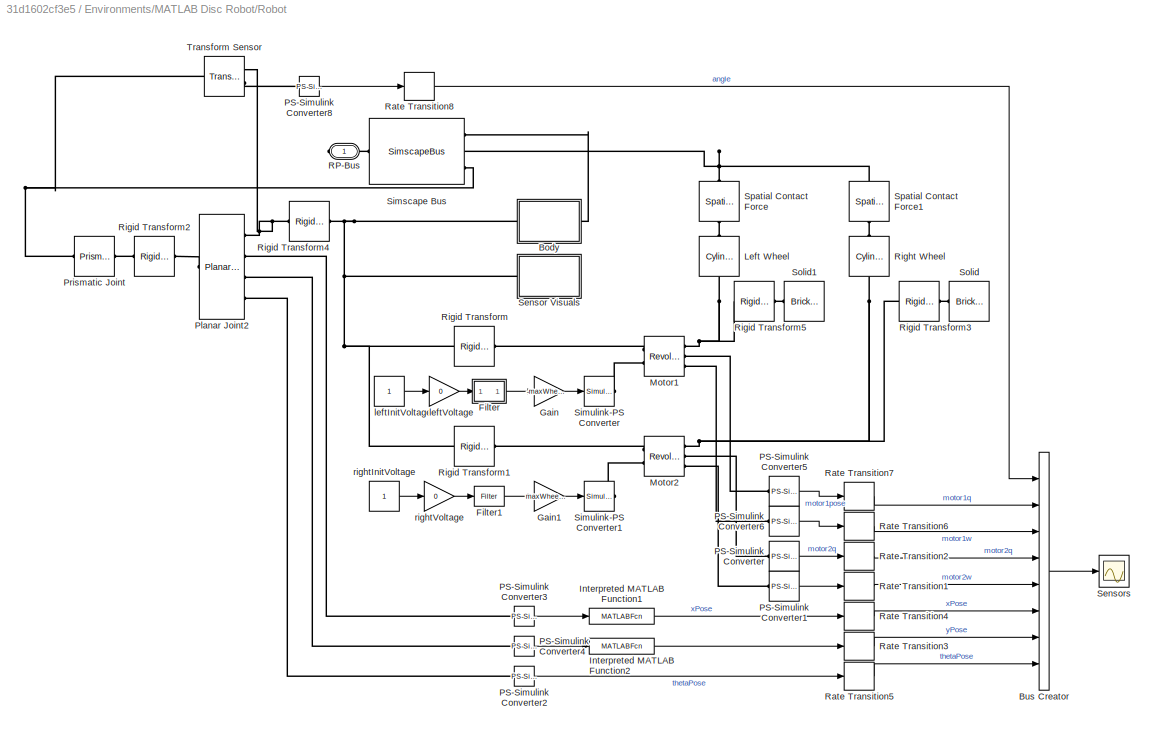
BLOCK [SubSystem] Environments/MATLAB Disc Robot/Robot
  Ports = [0, 0, 0, 0, 0, 0, 1]
  RequestExecContextInheritance = off
BLOCK [SubSystem] Environments/MATLAB Disc Robot/Robot/Body
  Ports = [0, 0, 0, 0, 0, 1, 1]
  RequestExecContextInheritance = off
BLOCK [Reference] Environments/MATLAB Disc Robot/Robot/Body/Arrow  REF=sm_lib/Body Elements/Extruded Solid
  Ports = [0, 0, 0, 0, 0, 0, 1]
  SourceBlock = sm_lib/Body Elements/Extruded Solid
  SourceProductBaseCode = MS
  SourceProductName = Simscape Multibody
  SourceType = Extruded Solid
BLOCK [Reference] Environments/MATLAB Disc Robot/Robot/Body/Base  REF=sm_lib/Body Elements/Cylindrical Solid
  Ports = [0, 0, 0, 0, 0, 1, 1]
  SourceBlock = sm_lib/Body Elements/Cylindrical Solid
  SourceProductBaseCode = MS
  SourceProductName = Simscape Multibody
  SourceType = Cylindrical Solid
BLOCK [SubSystem] Environments/MATLAB Disc Robot/Robot/Body/Compass Visual
  Ports = [0, 0, 0, 0, 0, 1]
  RequestExecContextInheritance = off
BLOCK [Reference] Environments/MATLAB Disc Robot/Robot/Body/Compass Visual/Arrow1  REF=sm_lib/Body Elements/Extruded Solid
  Ports = [0, 0, 0, 0, 0, 0, 1]
  SourceBlock = sm_lib/Body Elements/Extruded Solid
  SourceProductBaseCode = MS
  SourceProductName = Simscape Multibody
  SourceType = Extruded Solid
BLOCK [Reference] Environments/MATLAB Disc Robot/Robot/Body/Compass Visual/Arrow2  REF=sm_lib/Body Elements/Extruded Solid
  Ports = [0, 0, 0, 0, 0, 0, 1]
  SourceBlock = sm_lib/Body Elements/Extruded Solid
  SourceProductBaseCode = MS
  SourceProductName = Simscape Multibody
  SourceType = Extruded Solid
BLOCK [Reference] Environments/MATLAB Disc Robot/Robot/Body/Compass Visual/Circle  REF=sm_lib/Body Elements/Cylindrical Solid
  Ports = [0, 0, 0, 0, 0, 0, 1]
  SourceBlock = sm_lib/Body Elements/Cylindrical Solid
  SourceProductBaseCode = MS
  SourceProductName = Simscape Multibody
  SourceType = Cylindrical Solid
BLOCK [Reference] Environments/MATLAB Disc Robot/Robot/Body/Compass Visual/Rigid Transform  REF=sm_lib/Frames and
Transforms/Rigid
Transform
  Ports = [0, 0, 0, 0, 0, 1, 1]
  SourceBlock = sm_lib/Frames and\nTransforms/Rigid\nTransform
  SourceProductBaseCode = MS
  SourceProductName = Simscape Multibody
  SourceType = Rigid\nTransform
BLOCK [Reference] Environments/MATLAB Disc Robot/Robot/Body/Compass Visual/Rigid Transform1  REF=sm_lib/Frames and
Transforms/Rigid
Transform
  Ports = [0, 0, 0, 0, 0, 1, 1]
  SourceBlock = sm_lib/Frames and\nTransforms/Rigid\nTransform
  SourceProductBaseCode = MS
  SourceProductName = Simscape Multibody
  SourceType = Rigid\nTransform
BLOCK [Reference] Environments/MATLAB Disc Robot/Robot/Body/Compass Visual/Rigid Transform2  REF=sm_lib/Frames and
Transforms/Rigid
Transform
  Ports = [0, 0, 0, 0, 0, 1, 1]
  SourceBlock = sm_lib/Frames and\nTransforms/Rigid\nTransform
  SourceProductBaseCode = MS
  SourceProductName = Simscape Multibody
  SourceType = Rigid\nTransform
BLOCK [Reference] Environments/MATLAB Disc Robot/Robot/Body/Compass Visual/Rigid Transform3  REF=sm_lib/Frames and
Transforms/Rigid
Transform
  Ports = [0, 0, 0, 0, 0, 1, 1]
  SourceBlock = sm_lib/Frames and\nTransforms/Rigid\nTransform
  SourceProductBaseCode = MS
  SourceProductName = Simscape Multibody
  SourceType = Rigid\nTransform
BLOCK [PMIOPort] Environments/MATLAB Disc Robot/Robot/Body/Compass Visual/Robot
  Side = Left
BLOCK [PMIOPort] Environments/MATLAB Disc Robot/Robot/Body/Robot
  Side = Left
BLOCK [Reference] Environments/MATLAB Disc Robot/Robot/Body/RobotCamera  REF=sm_lib/Frames and
Transforms/Rigid
Transform
  Ports = [0, 0, 0, 0, 0, 1, 1]
  SourceBlock = sm_lib/Frames and\nTransforms/Rigid\nTransform
  SourceProductBaseCode = MS
  SourceProductName = Simscape Multibody
  SourceType = Rigid\nTransform
BLOCK [Reference] Environments/MATLAB Disc Robot/Robot/Body/Solid  REF=sm_lib/Body Elements/Brick Solid
  Ports = [0, 0, 0, 0, 0, 0, 1]
  SourceBlock = sm_lib/Body Elements/Brick Solid
  SourceProductBaseCode = MS
  SourceProductName = Simscape Multibody
  SourceType = Brick Solid
BLOCK [PMIOPort] Environments/MATLAB Disc Robot/Robot/Body/Surface
  Port = 2
  Side = Right
BLOCK [BusCreator] Environments/MATLAB Disc Robot/Robot/Bus Creator
  DisplayOption = bar
  InheritFromInputs = on
  Inputs = 8
  Ports = [8, 1]
BLOCK [SubSystem] Environments/MATLAB Disc Robot/Robot/Filter
  Ports = [1, 1]
  RequestExecContextInheritance = off
BLOCK [RateLimiter] Environments/MATLAB Disc Robot/Robot/Filter/Rate Limiter
  FallingSlewLimit = -300
  RisingSlewLimit = 300
  SampleTimeMode = inherited
BLOCK [TransferFcn] Environments/MATLAB Disc Robot/Robot/Filter/Transfer Fcn2
  Denominator = [0.05 1]
BLOCK [Outport] Environments/MATLAB Disc Robot/Robot/Filter/x
  IconDisplay = Port number
  VectorParamsAs1DForOutWhenUnconnected = off
BLOCK [Inport] Environments/MATLAB Disc Robot/Robot/Filter/y
  IconDisplay = Port number
BLOCK [Reference] Environments/MATLAB Disc Robot/Robot/Filter1  REF=RP_Simulator_Components/Contact Tank Robot/Filter
  Ports = [1, 1]
  SourceBlock = RP_Simulator_Components/Contact Tank Robot/Filter
  SourceType = SubSystem
BLOCK [Gain] Environments/MATLAB Disc Robot/Robot/Gain
  Gain = -maxWheelTorque/5
  OutDataTypeStr = Inherit: Inherit via internal rule
  ParamDataTypeStr = Inherit: Inherit via internal rule
  SaturateOnIntegerOverflow = off
BLOCK [Gain] Environments/MATLAB Disc Robot/Robot/Gain1
  Gain = maxWheelTorque/5
  OutDataTypeStr = Inherit: Inherit via internal rule
  ParamDataTypeStr = Inherit: Inherit via internal rule
  SaturateOnIntegerOverflow = off
BLOCK [MATLABFcn] Environments/MATLAB Disc Robot/Robot/Interpreted MATLAB Function1
  MATLABFcn = u+floorSize(1)/2
  Ports = [1, 1]
BLOCK [MATLABFcn] Environments/MATLAB Disc Robot/Robot/Interpreted MATLAB Function2
  MATLABFcn = u+floorSize(2)/2
  Ports = [1, 1]
BLOCK [Reference] Environments/MATLAB Disc Robot/Robot/Left Wheel  REF=sm_lib/Body Elements/Cylindrical Solid
  Ports = [0, 0, 0, 0, 0, 1, 1]
  SourceBlock = sm_lib/Body Elements/Cylindrical Solid
  SourceProductBaseCode = MS
  SourceProductName = Simscape Multibody
  SourceType = Cylindrical Solid
BLOCK [Reference] Environments/MATLAB Disc Robot/Robot/Motor1  REF=sm_lib/Joints/Revolute Joint
  Ports = [0, 0, 0, 0, 0, 2, 3]
  SourceBlock = sm_lib/Joints/Revolute Joint
  SourceProductBaseCode = MS
  SourceProductName = Simscape Multibody
  SourceType = Revolute Joint
BLOCK [Reference] Environments/MATLAB Disc Robot/Robot/Motor2  REF=sm_lib/Joints/Revolute Joint
  Ports = [0, 0, 0, 0, 0, 2, 3]
  SourceBlock = sm_lib/Joints/Revolute Joint
  SourceProductBaseCode = MS
  SourceProductName = Simscape Multibody
  SourceType = Revolute Joint
BLOCK [Reference] Environments/MATLAB Disc Robot/Robot/PS-Simulink Converter  REF=nesl_utility/PS-Simulink
Converter
  Ports = [0, 1, 0, 0, 0, 1]
  SourceBlock = nesl_utility/PS-Simulink\nConverter
  SourceProductBaseCode = SS
  SourceProductName = Simscape
  SourceType = PS-Simulink\nConverter
BLOCK [Reference] Environments/MATLAB Disc Robot/Robot/PS-Simulink Converter1  REF=nesl_utility/PS-Simulink
Converter
  Ports = [0, 1, 0, 0, 0, 1]
  SourceBlock = nesl_utility/PS-Simulink\nConverter
  SourceProductBaseCode = SS
  SourceProductName = Simscape
  SourceType = PS-Simulink\nConverter
BLOCK [Reference] Environments/MATLAB Disc Robot/Robot/PS-Simulink Converter2  REF=nesl_utility/PS-Simulink
Converter
  Ports = [0, 1, 0, 0, 0, 1]
  SourceBlock = nesl_utility/PS-Simulink\nConverter
  SourceProductBaseCode = SS
  SourceProductName = Simscape
  SourceType = PS-Simulink\nConverter
BLOCK [Reference] Environments/MATLAB Disc Robot/Robot/PS-Simulink Converter3  REF=nesl_utility/PS-Simulink
Converter
  Ports = [0, 1, 0, 0, 0, 1]
  SourceBlock = nesl_utility/PS-Simulink\nConverter
  SourceProductBaseCode = SS
  SourceProductName = Simscape
  SourceType = PS-Simulink\nConverter
BLOCK [Reference] Environments/MATLAB Disc Robot/Robot/PS-Simulink Converter4  REF=nesl_utility/PS-Simulink
Converter
  Ports = [0, 1, 0, 0, 0, 1]
  SourceBlock = nesl_utility/PS-Simulink\nConverter
  SourceProductBaseCode = SS
  SourceProductName = Simscape
  SourceType = PS-Simulink\nConverter
BLOCK [Reference] Environments/MATLAB Disc Robot/Robot/PS-Simulink Converter5  REF=nesl_utility/PS-Simulink
Converter
  Ports = [0, 1, 0, 0, 0, 1]
  SourceBlock = nesl_utility/PS-Simulink\nConverter
  SourceProductBaseCode = SS
  SourceProductName = Simscape
  SourceType = PS-Simulink\nConverter
BLOCK [Reference] Environments/MATLAB Disc Robot/Robot/PS-Simulink Converter6  REF=nesl_utility/PS-Simulink
Converter
  Ports = [0, 1, 0, 0, 0, 1]
  SourceBlock = nesl_utility/PS-Simulink\nConverter
  SourceProductBaseCode = SS
  SourceProductName = Simscape
  SourceType = PS-Simulink\nConverter
BLOCK [Reference] Environments/MATLAB Disc Robot/Robot/PS-Simulink Converter8  REF=nesl_utility/PS-Simulink
Converter
  Ports = [0, 1, 0, 0, 0, 1]
  SourceBlock = nesl_utility/PS-Simulink\nConverter
  SourceProductBaseCode = SS
  SourceProductName = Simscape
  SourceType = PS-Simulink\nConverter
BLOCK [Reference] Environments/MATLAB Disc Robot/Robot/Planar Joint2  REF=sm_lib/Joints/Planar Joint
  Ports = [0, 0, 0, 0, 0, 1, 4]
  SourceBlock = sm_lib/Joints/Planar Joint
  SourceProductBaseCode = MS
  SourceProductName = Simscape Multibody
  SourceType = Planar Joint
BLOCK [Reference] Environments/MATLAB Disc Robot/Robot/Prismatic Joint  REF=sm_lib/Joints/Prismatic
Joint
  Ports = [0, 0, 0, 0, 0, 1, 1]
  SourceBlock = sm_lib/Joints/Prismatic\nJoint
  SourceProductBaseCode = MS
  SourceProductName = Simscape Multibody
  SourceType = Prismatic\nJoint
BLOCK [PMIOPort] Environments/MATLAB Disc Robot/Robot/RP-Bus
  Side = Right
BLOCK [RateTransition] Environments/MATLAB Disc Robot/Robot/Rate Transition1
  OutPortSampleTime = sensorTs
BLOCK [RateTransition] Environments/MATLAB Disc Robot/Robot/Rate Transition2
  OutPortSampleTime = sensorTs
BLOCK [RateTransition] Environments/MATLAB Disc Robot/Robot/Rate Transition3
  OutPortSampleTime = sensorTs
BLOCK [RateTransition] Environments/MATLAB Disc Robot/Robot/Rate Transition4
  OutPortSampleTime = sensorTs
BLOCK [RateTransition] Environments/MATLAB Disc Robot/Robot/Rate Transition5
  OutPortSampleTime = sensorTs
BLOCK [RateTransition] Environments/MATLAB Disc Robot/Robot/Rate Transition6
  OutPortSampleTime = sensorTs
BLOCK [RateTransition] Environments/MATLAB Disc Robot/Robot/Rate Transition7
  OutPortSampleTime = sensorTs
BLOCK [RateTransition] Environments/MATLAB Disc Robot/Robot/Rate Transition8
  OutPortSampleTime = sensorTs
BLOCK [Reference] Environments/MATLAB Disc Robot/Robot/Right Wheel  REF=sm_lib/Body Elements/Cylindrical Solid
  Ports = [0, 0, 0, 0, 0, 1, 1]
  SourceBlock = sm_lib/Body Elements/Cylindrical Solid
  SourceProductBaseCode = MS
  SourceProductName = Simscape Multibody
  SourceType = Cylindrical Solid
BLOCK [Reference] Environments/MATLAB Disc Robot/Robot/Rigid Transform  REF=sm_lib/Frames and
Transforms/Rigid
Transform
  Ports = [0, 0, 0, 0, 0, 1, 1]
  SourceBlock = sm_lib/Frames and\nTransforms/Rigid\nTransform
  SourceProductBaseCode = MS
  SourceProductName = Simscape Multibody
  SourceType = Rigid\nTransform
BLOCK [Reference] Environments/MATLAB Disc Robot/Robot/Rigid Transform1  REF=sm_lib/Frames and
Transforms/Rigid
Transform
  Ports = [0, 0, 0, 0, 0, 1, 1]
  SourceBlock = sm_lib/Frames and\nTransforms/Rigid\nTransform
  SourceProductBaseCode = MS
  SourceProductName = Simscape Multibody
  SourceType = Rigid\nTransform
BLOCK [Reference] Environments/MATLAB Disc Robot/Robot/Rigid Transform2  REF=sm_lib/Frames and
Transforms/Rigid
Transform
  Ports = [0, 0, 0, 0, 0, 1, 1]
  SourceBlock = sm_lib/Frames and\nTransforms/Rigid\nTransform
  SourceProductBaseCode = MS
  SourceProductName = Simscape Multibody
  SourceType = Rigid\nTransform
BLOCK [Reference] Environments/MATLAB Disc Robot/Robot/Rigid Transform3  REF=sm_lib/Frames and
Transforms/Rigid
Transform
  Ports = [0, 0, 0, 0, 0, 1, 1]
  SourceBlock = sm_lib/Frames and\nTransforms/Rigid\nTransform
  SourceProductBaseCode = MS
  SourceProductName = Simscape Multibody
  SourceType = Rigid\nTransform
BLOCK [Reference] Environments/MATLAB Disc Robot/Robot/Rigid Transform4  REF=sm_lib/Frames and
Transforms/Rigid
Transform
  Ports = [0, 0, 0, 0, 0, 1, 1]
  SourceBlock = sm_lib/Frames and\nTransforms/Rigid\nTransform
  SourceProductBaseCode = MS
  SourceProductName = Simscape Multibody
  SourceType = Rigid\nTransform
BLOCK [Reference] Environments/MATLAB Disc Robot/Robot/Rigid Transform5  REF=sm_lib/Frames and
Transforms/Rigid
Transform
  Ports = [0, 0, 0, 0, 0, 1, 1]
  SourceBlock = sm_lib/Frames and\nTransforms/Rigid\nTransform
  SourceProductBaseCode = MS
  SourceProductName = Simscape Multibody
  SourceType = Rigid\nTransform
BLOCK [SubSystem] Environments/MATLAB Disc Robot/Robot/Sensor Visuals
  Ports = [0, 0, 0, 0, 0, 1]
  RequestExecContextInheritance = off
BLOCK [PMIOPort] Environments/MATLAB Disc Robot/Robot/Sensor Visuals/Robot
  Side = Left
BLOCK [Scope] Environments/MATLAB Disc Robot/Robot/Sensors
  Floating = off
  NumInputPorts = 1
  Ports = [1]
  ScopeSpecificationString = Simulink.scopes.TimeScopeBlockCfg('CurrentConfiguration', extmgr.ConfigurationSet(extmgr.Configuration('Core','General UI',true),extmgr.Configuration('Core','Source UI',true),extmgr.Configuration('Sources','WiredSimulink',true,'DataLoggingLimitDataPoints',true,'DataLoggingSaveFormat','Array','DataLoggingDecimation','1'),extmgr.Configuration('Visuals','Time Domain',true,'DisplayPropertyDefaults',st...<+847ch>
BLOCK [SimscapeBus] Environments/MATLAB Disc Robot/Robot/Simscape Bus
  HierarchyStrings = RobotSurface;FloorSurface;Ref
  Ports = [0, 0, 0, 0, 0, 3, 1]
BLOCK [Reference] Environments/MATLAB Disc Robot/Robot/Simulink-PS Converter  REF=nesl_utility/Simulink-PS
Converter
  Ports = [1, 0, 0, 0, 0, 0, 1]
  SourceBlock = nesl_utility/Simulink-PS\nConverter
  SourceProductBaseCode = SS
  SourceProductName = Simscape
  SourceType = Simulink-PS\nConverter
BLOCK [Reference] Environments/MATLAB Disc Robot/Robot/Simulink-PS Converter1  REF=nesl_utility/Simulink-PS
Converter
  Ports = [1, 0, 0, 0, 0, 0, 1]
  SourceBlock = nesl_utility/Simulink-PS\nConverter
  SourceProductBaseCode = SS
  SourceProductName = Simscape
  SourceType = Simulink-PS\nConverter
BLOCK [Reference] Environments/MATLAB Disc Robot/Robot/Solid  REF=sm_lib/Body Elements/Brick Solid
  Ports = [0, 0, 0, 0, 0, 0, 1]
  SourceBlock = sm_lib/Body Elements/Brick Solid
  SourceProductBaseCode = MS
  SourceProductName = Simscape Multibody
  SourceType = Brick Solid
BLOCK [Reference] Environments/MATLAB Disc Robot/Robot/Solid1  REF=sm_lib/Body Elements/Brick Solid
  Ports = [0, 0, 0, 0, 0, 0, 1]
  SourceBlock = sm_lib/Body Elements/Brick Solid
  SourceProductBaseCode = MS
  SourceProductName = Simscape Multibody
  SourceType = Brick Solid
BLOCK [Reference] Environments/MATLAB Disc Robot/Robot/Spatial Contact Force  REF=sm_lib/Forces and
Torques/Spatial
Contact Force
  Ports = [0, 0, 0, 0, 0, 1, 1]
  SourceBlock = sm_lib/Forces and\nTorques/Spatial\nContact Force
  SourceProductBaseCode = MS
  SourceProductName = Simscape Multibody
  SourceType = Spatial\nContact Force
BLOCK [Reference] Environments/MATLAB Disc Robot/Robot/Spatial Contact Force1  REF=sm_lib/Forces and
Torques/Spatial
Contact Force
  Ports = [0, 0, 0, 0, 0, 1, 1]
  SourceBlock = sm_lib/Forces and\nTorques/Spatial\nContact Force
  SourceProductBaseCode = MS
  SourceProductName = Simscape Multibody
  SourceType = Spatial\nContact Force
BLOCK [Reference] Environments/MATLAB Disc Robot/Robot/Transform Sensor  REF=sm_lib/Frames and
Transforms/Transform
Sensor
  Ports = [0, 0, 0, 0, 0, 1, 2]
  SourceBlock = sm_lib/Frames and\nTransforms/Transform\nSensor
  SourceProductBaseCode = MS
  SourceProductName = Simscape Multibody
  SourceType = Transform\nSensor
BLOCK [Constant] Environments/MATLAB Disc Robot/Robot/leftInitVoltage
BLOCK [Gain] Environments/MATLAB Disc Robot/Robot/leftVoltage
  Gain = 0
  OutDataTypeStr = Inherit: Inherit via internal rule
  ParamDataTypeStr = Inherit: Inherit via internal rule
  SaturateOnIntegerOverflow = off
BLOCK [Constant] Environments/MATLAB Disc Robot/Robot/rightInitVoltage
BLOCK [Gain] Environments/MATLAB Disc Robot/Robot/rightVoltage
  Gain = 0
  OutDataTypeStr = Inherit: Inherit via internal rule
  ParamDataTypeStr = Inherit: Inherit via internal rule
  SaturateOnIntegerOverflow = off
BLOCK [SubSystem] Environments/Object Environment
  CopyFcn = set_param(gcs,'InitFcn','RPInit');\nset_param(gcs,'Solver','ode23t');\nset_param(gcs, 'EnablePacing', 'on')\nset_param(gcs, 'PacingRate', 1)
  Ports = []
  RequestExecContextInheritance = off
BLOCK [Reference] Environments/Object Environment/Object Arena  REF=RP_Simulator_Components/Object Arena
  Ports = [0, 0, 0, 0, 0, 1]
  SourceBlock = RP_Simulator_Components/Object Arena
  SourceType = RP Grid Arena
BLOCK [SubSystem] Environments/Object Environment/Objects
  Ports = [0, 0, 0, 0, 0, 1]
  RequestExecContextInheritance = off
BLOCK [Reference] Environments/Object Environment/Objects/Object1  REF=RP_Simulator_Components/Object Contact-Plow Robot
  Ports = [0, 0, 0, 0, 0, 1]
  SourceBlock = RP_Simulator_Components/Object Contact-Plow Robot
  SourceType = RP Rectangle-Disc obstacle
BLOCK [Reference] Environments/Object Environment/Objects/Object2  REF=RP_Simulator_Components/Object Contact-Plow Robot
  Commented = on
  Ports = [0, 0, 0, 0, 0, 1]
  SourceBlock = RP_Simulator_Components/Object Contact-Plow Robot
  SourceType = RP Rectangle-Disc obstacle
BLOCK [Reference] Environments/Object Environment/Objects/Object3  REF=RP_Simulator_Components/Object Contact-Plow Robot
  Commented = on
  Ports = [0, 0, 0, 0, 0, 1]
  SourceBlock = RP_Simulator_Components/Object Contact-Plow Robot
  SourceType = RP Rectangle-Disc obstacle
BLOCK [Reference] Environments/Object Environment/Objects/Object4  REF=RP_Simulator_Components/Object Contact-Plow Robot
  Commented = on
  Ports = [0, 0, 0, 0, 0, 1]
  SourceBlock = RP_Simulator_Components/Object Contact-Plow Robot
  SourceType = RP Rectangle-Disc obstacle
BLOCK [Reference] Environments/Object Environment/Objects/Object5  REF=RP_Simulator_Components/Object Contact-Plow Robot
  Commented = on
  Ports = [0, 0, 0, 0, 0, 1]
  SourceBlock = RP_Simulator_Components/Object Contact-Plow Robot
  SourceType = RP Rectangle-Disc obstacle
BLOCK [PMIOPort] Environments/Object Environment/Objects/RP-Bus
  Side = Left
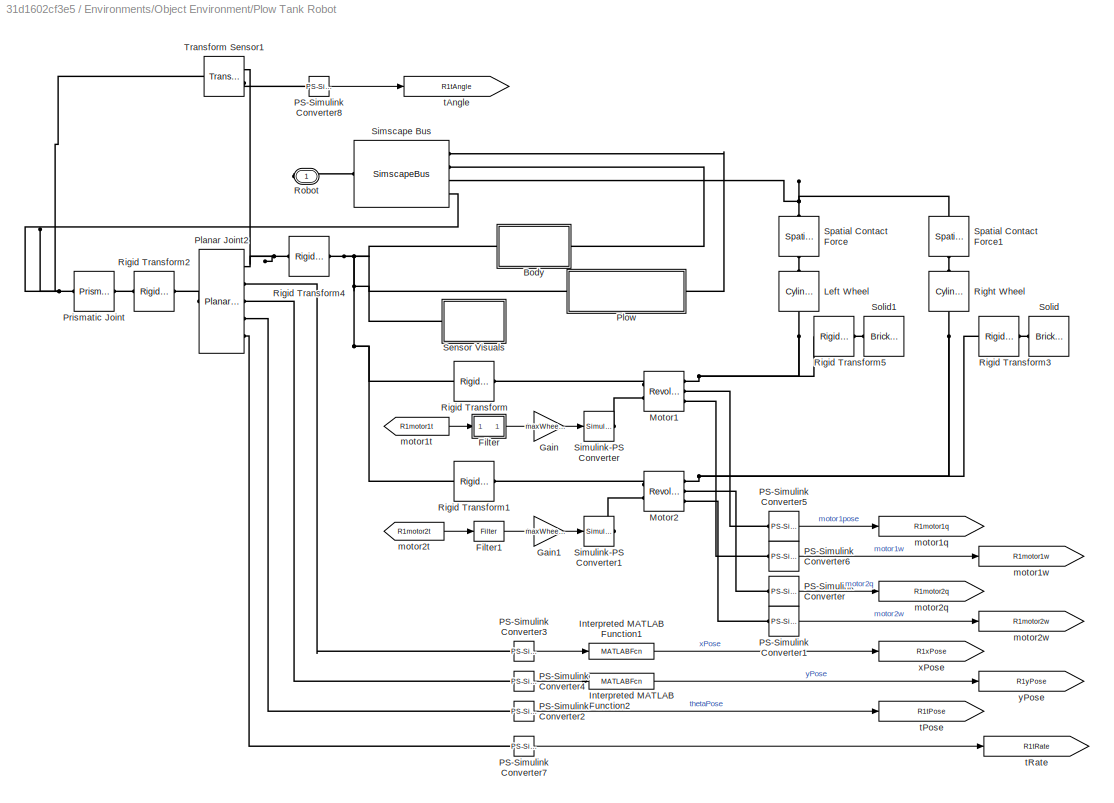
BLOCK [SubSystem] Environments/Object Environment/Plow Tank Robot
  AncestorBlock = RP_Simulator_Components/Plow Tank Robot
  Ports = [0, 0, 0, 0, 0, 0, 1]
  RequestExecContextInheritance = off
BLOCK [SubSystem] Environments/Object Environment/Plow Tank Robot/Body
  Ports = [0, 0, 0, 0, 0, 1, 1]
  RequestExecContextInheritance = off
BLOCK [Reference] Environments/Object Environment/Plow Tank Robot/Body/Arrow  REF=sm_lib/Body Elements/Extruded Solid
  Ports = [0, 0, 0, 0, 0, 0, 1]
  SourceBlock = sm_lib/Body Elements/Extruded Solid
  SourceProductBaseCode = MS
  SourceProductName = Simscape Multibody
  SourceType = Extruded Solid
BLOCK [Reference] Environments/Object Environment/Plow Tank Robot/Body/Base  REF=sm_lib/Body Elements/Cylindrical Solid
  Ports = [0, 0, 0, 0, 0, 1, 1]
  SourceBlock = sm_lib/Body Elements/Cylindrical Solid
  SourceProductBaseCode = MS
  SourceProductName = Simscape Multibody
  SourceType = Cylindrical Solid
BLOCK [PMIOPort] Environments/Object Environment/Plow Tank Robot/Body/Robot
  Side = Left
BLOCK [PMIOPort] Environments/Object Environment/Plow Tank Robot/Body/Robot Surface
  Port = 2
  Side = Right
BLOCK [Reference] Environments/Object Environment/Plow Tank Robot/Body/RobotCamera  REF=sm_lib/Frames and
Transforms/Rigid
Transform
  Ports = [0, 0, 0, 0, 0, 1, 1]
  SourceBlock = sm_lib/Frames and\nTransforms/Rigid\nTransform
  SourceProductBaseCode = MS
  SourceProductName = Simscape Multibody
  SourceType = Rigid\nTransform
BLOCK [Reference] Environments/Object Environment/Plow Tank Robot/Body/Solid  REF=sm_lib/Body Elements/Brick Solid
  Ports = [0, 0, 0, 0, 0, 0, 1]
  SourceBlock = sm_lib/Body Elements/Brick Solid
  SourceProductBaseCode = MS
  SourceProductName = Simscape Multibody
  SourceType = Brick Solid
BLOCK [SubSystem] Environments/Object Environment/Plow Tank Robot/Filter
  Ports = [1, 1]
  RequestExecContextInheritance = off
BLOCK [RateLimiter] Environments/Object Environment/Plow Tank Robot/Filter/Rate Limiter
  FallingSlewLimit = -300
  RisingSlewLimit = 300
  SampleTimeMode = inherited
BLOCK [TransferFcn] Environments/Object Environment/Plow Tank Robot/Filter/Transfer Fcn2
  Denominator = [0.05 1]
BLOCK [Outport] Environments/Object Environment/Plow Tank Robot/Filter/x
  IconDisplay = Port number
  VectorParamsAs1DForOutWhenUnconnected = off
BLOCK [Inport] Environments/Object Environment/Plow Tank Robot/Filter/y
  IconDisplay = Port number
BLOCK [Reference] Environments/Object Environment/Plow Tank Robot/Filter1  REF=RP_Simulator_Components/Contact Tank Robot/Filter
  Ports = [1, 1]
  SourceBlock = RP_Simulator_Components/Contact Tank Robot/Filter
  SourceType = SubSystem
BLOCK [Gain] Environments/Object Environment/Plow Tank Robot/Gain
  Gain = maxWheelTorque/127
  OutDataTypeStr = Inherit: Inherit via internal rule
  ParamDataTypeStr = Inherit: Inherit via internal rule
  SaturateOnIntegerOverflow = off
BLOCK [Gain] Environments/Object Environment/Plow Tank Robot/Gain1
  Gain = maxWheelTorque/127
  OutDataTypeStr = Inherit: Inherit via internal rule
  ParamDataTypeStr = Inherit: Inherit via internal rule
  SaturateOnIntegerOverflow = off
BLOCK [MATLABFcn] Environments/Object Environment/Plow Tank Robot/Interpreted MATLAB Function1
  MATLABFcn = u+floorSize(1)/2
  Ports = [1, 1]
BLOCK [MATLABFcn] Environments/Object Environment/Plow Tank Robot/Interpreted MATLAB Function2
  MATLABFcn = u+floorSize(2)/2
  Ports = [1, 1]
BLOCK [Reference] Environments/Object Environment/Plow Tank Robot/Left Wheel  REF=sm_lib/Body Elements/Cylindrical Solid
  Ports = [0, 0, 0, 0, 0, 1, 1]
  SourceBlock = sm_lib/Body Elements/Cylindrical Solid
  SourceProductBaseCode = MS
  SourceProductName = Simscape Multibody
  SourceType = Cylindrical Solid
BLOCK [Reference] Environments/Object Environment/Plow Tank Robot/Motor1  REF=sm_lib/Joints/Revolute Joint
  Ports = [0, 0, 0, 0, 0, 2, 3]
  SourceBlock = sm_lib/Joints/Revolute Joint
  SourceProductBaseCode = MS
  SourceProductName = Simscape Multibody
  SourceType = Revolute Joint
BLOCK [Reference] Environments/Object Environment/Plow Tank Robot/Motor2  REF=sm_lib/Joints/Revolute Joint
  Ports = [0, 0, 0, 0, 0, 2, 3]
  SourceBlock = sm_lib/Joints/Revolute Joint
  SourceProductBaseCode = MS
  SourceProductName = Simscape Multibody
  SourceType = Revolute Joint
BLOCK [Reference] Environments/Object Environment/Plow Tank Robot/PS-Simulink Converter  REF=nesl_utility/PS-Simulink
Converter
  Ports = [0, 1, 0, 0, 0, 1]
  SourceBlock = nesl_utility/PS-Simulink\nConverter
  SourceProductBaseCode = SS
  SourceProductName = Simscape
  SourceType = PS-Simulink\nConverter
BLOCK [Reference] Environments/Object Environment/Plow Tank Robot/PS-Simulink Converter1  REF=nesl_utility/PS-Simulink
Converter
  Ports = [0, 1, 0, 0, 0, 1]
  SourceBlock = nesl_utility/PS-Simulink\nConverter
  SourceProductBaseCode = SS
  SourceProductName = Simscape
  SourceType = PS-Simulink\nConverter
BLOCK [Reference] Environments/Object Environment/Plow Tank Robot/PS-Simulink Converter2  REF=nesl_utility/PS-Simulink
Converter
  Ports = [0, 1, 0, 0, 0, 1]
  SourceBlock = nesl_utility/PS-Simulink\nConverter
  SourceProductBaseCode = SS
  SourceProductName = Simscape
  SourceType = PS-Simulink\nConverter
BLOCK [Reference] Environments/Object Environment/Plow Tank Robot/PS-Simulink Converter3  REF=nesl_utility/PS-Simulink
Converter
  Ports = [0, 1, 0, 0, 0, 1]
  SourceBlock = nesl_utility/PS-Simulink\nConverter
  SourceProductBaseCode = SS
  SourceProductName = Simscape
  SourceType = PS-Simulink\nConverter
BLOCK [Reference] Environments/Object Environment/Plow Tank Robot/PS-Simulink Converter4  REF=nesl_utility/PS-Simulink
Converter
  Ports = [0, 1, 0, 0, 0, 1]
  SourceBlock = nesl_utility/PS-Simulink\nConverter
  SourceProductBaseCode = SS
  SourceProductName = Simscape
  SourceType = PS-Simulink\nConverter
BLOCK [Reference] Environments/Object Environment/Plow Tank Robot/PS-Simulink Converter5  REF=nesl_utility/PS-Simulink
Converter
  Ports = [0, 1, 0, 0, 0, 1]
  SourceBlock = nesl_utility/PS-Simulink\nConverter
  SourceProductBaseCode = SS
  SourceProductName = Simscape
  SourceType = PS-Simulink\nConverter
BLOCK [Reference] Environments/Object Environment/Plow Tank Robot/PS-Simulink Converter6  REF=nesl_utility/PS-Simulink
Converter
  Ports = [0, 1, 0, 0, 0, 1]
  SourceBlock = nesl_utility/PS-Simulink\nConverter
  SourceProductBaseCode = SS
  SourceProductName = Simscape
  SourceType = PS-Simulink\nConverter
BLOCK [Reference] Environments/Object Environment/Plow Tank Robot/PS-Simulink Converter7  REF=nesl_utility/PS-Simulink
Converter
  Ports = [0, 1, 0, 0, 0, 1]
  SourceBlock = nesl_utility/PS-Simulink\nConverter
  SourceProductBaseCode = SS
  SourceProductName = Simscape
  SourceType = PS-Simulink\nConverter
BLOCK [Reference] Environments/Object Environment/Plow Tank Robot/PS-Simulink Converter8  REF=nesl_utility/PS-Simulink
Converter
  Ports = [0, 1, 0, 0, 0, 1]
  SourceBlock = nesl_utility/PS-Simulink\nConverter
  SourceProductBaseCode = SS
  SourceProductName = Simscape
  SourceType = PS-Simulink\nConverter
BLOCK [Reference] Environments/Object Environment/Plow Tank Robot/Planar Joint2  REF=sm_lib/Joints/Planar Joint
  Ports = [0, 0, 0, 0, 0, 1, 5]
  SourceBlock = sm_lib/Joints/Planar Joint
  SourceProductBaseCode = MS
  SourceProductName = Simscape Multibody
  SourceType = Planar Joint
BLOCK [SubSystem] Environments/Object Environment/Plow Tank Robot/Plow
  Ports = [0, 0, 0, 0, 0, 1, 1]
  RequestExecContextInheritance = off
BLOCK [Reference] Environments/Object Environment/Plow Tank Robot/Plow/Base  REF=sm_lib/Body Elements/Brick Solid
  Ports = [0, 0, 0, 0, 0, 1, 1]
  SourceBlock = sm_lib/Body Elements/Brick Solid
  SourceProductBaseCode = MS
  SourceProductName = Simscape Multibody
  SourceType = Brick Solid
BLOCK [PMIOPort] Environments/Object Environment/Plow Tank Robot/Plow/Plow Surface
  Port = 2
  Side = Right
BLOCK [Reference] Environments/Object Environment/Plow Tank Robot/Plow/Rigid Transform  REF=sm_lib/Frames and
Transforms/Rigid
Transform
  Ports = [0, 0, 0, 0, 0, 1, 1]
  SourceBlock = sm_lib/Frames and\nTransforms/Rigid\nTransform
  SourceProductBaseCode = MS
  SourceProductName = Simscape Multibody
  SourceType = Rigid\nTransform
BLOCK [Reference] Environments/Object Environment/Plow Tank Robot/Plow/Rigid Transform1  REF=sm_lib/Frames and
Transforms/Rigid
Transform
  Ports = [0, 0, 0, 0, 0, 1, 1]
  SourceBlock = sm_lib/Frames and\nTransforms/Rigid\nTransform
  SourceProductBaseCode = MS
  SourceProductName = Simscape Multibody
  SourceType = Rigid\nTransform
BLOCK [Reference] Environments/Object Environment/Plow Tank Robot/Plow/Rigid Transform2  REF=sm_lib/Frames and
Transforms/Rigid
Transform
  Ports = [0, 0, 0, 0, 0, 1, 1]
  SourceBlock = sm_lib/Frames and\nTransforms/Rigid\nTransform
  SourceProductBaseCode = MS
  SourceProductName = Simscape Multibody
  SourceType = Rigid\nTransform
BLOCK [PMIOPort] Environments/Object Environment/Plow Tank Robot/Plow/Robot
  Side = Left
BLOCK [Reference] Environments/Object Environment/Plow Tank Robot/Plow/Side1  REF=sm_lib/Body Elements/Brick Solid
  Ports = [0, 0, 0, 0, 0, 1, 1]
  SourceBlock = sm_lib/Body Elements/Brick Solid
  SourceProductBaseCode = MS
  SourceProductName = Simscape Multibody
  SourceType = Brick Solid
BLOCK [Reference] Environments/Object Environment/Plow Tank Robot/Plow/Side2  REF=sm_lib/Body Elements/Brick Solid
  Ports = [0, 0, 0, 0, 0, 1, 1]
  SourceBlock = sm_lib/Body Elements/Brick Solid
  SourceProductBaseCode = MS
  SourceProductName = Simscape Multibody
  SourceType = Brick Solid
BLOCK [SimscapeBus] Environments/Object Environment/Plow Tank Robot/Plow/Simscape Bus
  HierarchyStrings = Base;Side1;Side2
  Ports = [0, 0, 0, 0, 0, 3, 1]
BLOCK [Reference] Environments/Object Environment/Plow Tank Robot/Prismatic Joint  REF=sm_lib/Joints/Prismatic
Joint
  Ports = [0, 0, 0, 0, 0, 1, 1]
  SourceBlock = sm_lib/Joints/Prismatic\nJoint
  SourceProductBaseCode = MS
  SourceProductName = Simscape Multibody
  SourceType = Prismatic\nJoint
BLOCK [Reference] Environments/Object Environment/Plow Tank Robot/Right Wheel  REF=sm_lib/Body Elements/Cylindrical Solid
  Ports = [0, 0, 0, 0, 0, 1, 1]
  SourceBlock = sm_lib/Body Elements/Cylindrical Solid
  SourceProductBaseCode = MS
  SourceProductName = Simscape Multibody
  SourceType = Cylindrical Solid
BLOCK [Reference] Environments/Object Environment/Plow Tank Robot/Rigid Transform  REF=sm_lib/Frames and
Transforms/Rigid
Transform
  Ports = [0, 0, 0, 0, 0, 1, 1]
  SourceBlock = sm_lib/Frames and\nTransforms/Rigid\nTransform
  SourceProductBaseCode = MS
  SourceProductName = Simscape Multibody
  SourceType = Rigid\nTransform
BLOCK [Reference] Environments/Object Environment/Plow Tank Robot/Rigid Transform1  REF=sm_lib/Frames and
Transforms/Rigid
Transform
  Ports = [0, 0, 0, 0, 0, 1, 1]
  SourceBlock = sm_lib/Frames and\nTransforms/Rigid\nTransform
  SourceProductBaseCode = MS
  SourceProductName = Simscape Multibody
  SourceType = Rigid\nTransform
BLOCK [Reference] Environments/Object Environment/Plow Tank Robot/Rigid Transform2  REF=sm_lib/Frames and
Transforms/Rigid
Transform
  Ports = [0, 0, 0, 0, 0, 1, 1]
  SourceBlock = sm_lib/Frames and\nTransforms/Rigid\nTransform
  SourceProductBaseCode = MS
  SourceProductName = Simscape Multibody
  SourceType = Rigid\nTransform
BLOCK [Reference] Environments/Object Environment/Plow Tank Robot/Rigid Transform3  REF=sm_lib/Frames and
Transforms/Rigid
Transform
  Ports = [0, 0, 0, 0, 0, 1, 1]
  SourceBlock = sm_lib/Frames and\nTransforms/Rigid\nTransform
  SourceProductBaseCode = MS
  SourceProductName = Simscape Multibody
  SourceType = Rigid\nTransform
BLOCK [Reference] Environments/Object Environment/Plow Tank Robot/Rigid Transform4  REF=sm_lib/Frames and
Transforms/Rigid
Transform
  Ports = [0, 0, 0, 0, 0, 1, 1]
  SourceBlock = sm_lib/Frames and\nTransforms/Rigid\nTransform
  SourceProductBaseCode = MS
  SourceProductName = Simscape Multibody
  SourceType = Rigid\nTransform
BLOCK [Reference] Environments/Object Environment/Plow Tank Robot/Rigid Transform5  REF=sm_lib/Frames and
Transforms/Rigid
Transform
  Ports = [0, 0, 0, 0, 0, 1, 1]
  SourceBlock = sm_lib/Frames and\nTransforms/Rigid\nTransform
  SourceProductBaseCode = MS
  SourceProductName = Simscape Multibody
  SourceType = Rigid\nTransform
BLOCK [PMIOPort] Environments/Object Environment/Plow Tank Robot/Robot
  Side = Right
BLOCK [SubSystem] Environments/Object Environment/Plow Tank Robot/Sensor Visuals
  Ports = [0, 0, 0, 0, 0, 1]
  RequestExecContextInheritance = off
BLOCK [Reference] Environments/Object Environment/Plow Tank Robot/Sensor Visuals/Compass Visual1  REF=RP_Simulator_Components/Compass Visual
  Ports = [0, 0, 0, 0, 0, 1]
  SourceBlock = RP_Simulator_Components/Compass Visual
  SourceType = RP Compass Visual
BLOCK [Reference] Environments/Object Environment/Plow Tank Robot/Sensor Visuals/Object Sensor Visual1  REF=RP_Simulator_Components/Object Sensor Visual
  Ports = [0, 0, 0, 0, 0, 1]
  SourceBlock = RP_Simulator_Components/Object Sensor Visual
  SourceType = RP Object Sensor Visual
BLOCK [PMIOPort] Environments/Object Environment/Plow Tank Robot/Sensor Visuals/Robot
  Side = Left
BLOCK [Reference] Environments/Object Environment/Plow Tank Robot/Sensor Visuals/Switch Visual1  REF=RP_Simulator_Components/Switch Visual
  Ports = [0, 0, 0, 0, 0, 1]
  SourceBlock = RP_Simulator_Components/Switch Visual
  SourceType = RP Switch Visual
BLOCK [Reference] Environments/Object Environment/Plow Tank Robot/Sensor Visuals/US Visual1  REF=RP_Simulator_Components/US Visual
  Ports = [0, 0, 0, 0, 0, 1]
  SourceBlock = RP_Simulator_Components/US Visual
  SourceType = RP US Visual
BLOCK [SimscapeBus] Environments/Object Environment/Plow Tank Robot/Simscape Bus
  HierarchyStrings = PlowSurface;RobotSurface;FloorSurface;Ref
  Ports = [0, 0, 0, 0, 0, 4, 1]
BLOCK [Reference] Environments/Object Environment/Plow Tank Robot/Simulink-PS Converter  REF=nesl_utility/Simulink-PS
Converter
  Ports = [1, 0, 0, 0, 0, 0, 1]
  SourceBlock = nesl_utility/Simulink-PS\nConverter
  SourceProductBaseCode = SS
  SourceProductName = Simscape
  SourceType = Simulink-PS\nConverter
BLOCK [Reference] Environments/Object Environment/Plow Tank Robot/Simulink-PS Converter1  REF=nesl_utility/Simulink-PS
Converter
  Ports = [1, 0, 0, 0, 0, 0, 1]
  SourceBlock = nesl_utility/Simulink-PS\nConverter
  SourceProductBaseCode = SS
  SourceProductName = Simscape
  SourceType = Simulink-PS\nConverter
BLOCK [Reference] Environments/Object Environment/Plow Tank Robot/Solid  REF=sm_lib/Body Elements/Brick Solid
  Ports = [0, 0, 0, 0, 0, 0, 1]
  SourceBlock = sm_lib/Body Elements/Brick Solid
  SourceProductBaseCode = MS
  SourceProductName = Simscape Multibody
  SourceType = Brick Solid
BLOCK [Reference] Environments/Object Environment/Plow Tank Robot/Solid1  REF=sm_lib/Body Elements/Brick Solid
  Ports = [0, 0, 0, 0, 0, 0, 1]
  SourceBlock = sm_lib/Body Elements/Brick Solid
  SourceProductBaseCode = MS
  SourceProductName = Simscape Multibody
  SourceType = Brick Solid
BLOCK [Reference] Environments/Object Environment/Plow Tank Robot/Spatial Contact Force  REF=sm_lib/Forces and
Torques/Spatial
Contact Force
  Ports = [0, 0, 0, 0, 0, 1, 1]
  SourceBlock = sm_lib/Forces and\nTorques/Spatial\nContact Force
  SourceProductBaseCode = MS
  SourceProductName = Simscape Multibody
  SourceType = Spatial\nContact Force
BLOCK [Reference] Environments/Object Environment/Plow Tank Robot/Spatial Contact Force1  REF=sm_lib/Forces and
Torques/Spatial
Contact Force
  Ports = [0, 0, 0, 0, 0, 1, 1]
  SourceBlock = sm_lib/Forces and\nTorques/Spatial\nContact Force
  SourceProductBaseCode = MS
  SourceProductName = Simscape Multibody
  SourceType = Spatial\nContact Force
BLOCK [Reference] Environments/Object Environment/Plow Tank Robot/Transform Sensor1  REF=sm_lib/Frames and
Transforms/Transform
Sensor
  Ports = [0, 0, 0, 0, 0, 1, 2]
  SourceBlock = sm_lib/Frames and\nTransforms/Transform\nSensor
  SourceProductBaseCode = MS
  SourceProductName = Simscape Multibody
  SourceType = Transform\nSensor
BLOCK [Goto] Environments/Object Environment/Plow Tank Robot/motor1q
  GotoTag = R1motor1q
  TagVisibility = global
BLOCK [From] Environments/Object Environment/Plow Tank Robot/motor1t
  GotoTag = R1motor1t
  TagVisibility = global
BLOCK [Goto] Environments/Object Environment/Plow Tank Robot/motor1w
  GotoTag = R1motor1w
  TagVisibility = global
BLOCK [Goto] Environments/Object Environment/Plow Tank Robot/motor2q
  GotoTag = R1motor2q
  TagVisibility = global
BLOCK [From] Environments/Object Environment/Plow Tank Robot/motor2t
  GotoTag = R1motor2t
  TagVisibility = global
BLOCK [Goto] Environments/Object Environment/Plow Tank Robot/motor2w
  GotoTag = R1motor2w
  TagVisibility = global
BLOCK [Goto] Environments/Object Environment/Plow Tank Robot/tAngle
  GotoTag = R1tAngle
  TagVisibility = global
BLOCK [Goto] Environments/Object Environment/Plow Tank Robot/tPose
  GotoTag = R1tPose
  TagVisibility = global
BLOCK [Goto] Environments/Object Environment/Plow Tank Robot/tRate
  GotoTag = R1tRate
  TagVisibility = global
BLOCK [Goto] Environments/Object Environment/Plow Tank Robot/xPose
  GotoTag = R1xPose
  TagVisibility = global
BLOCK [Goto] Environments/Object Environment/Plow Tank Robot/yPose
  GotoTag = R1yPose
  TagVisibility = global
BLOCK [SubSystem] Environments/Obstacle Environment
  CopyFcn = set_param(gcs,'InitFcn','RPInit');\nset_param(gcs,'Solver','ode23t');\nset_param(gcs, 'EnablePacing', 'on')\nset_param(gcs, 'PacingRate', 1)
  Ports = []
  RequestExecContextInheritance = off
BLOCK [Reference] Environments/Obstacle Environment/Obstacle Arena  REF=RP_Simulator_Components/Obstacle Arena
  Ports = [0, 0, 0, 0, 0, 1]
  SourceBlock = RP_Simulator_Components/Obstacle Arena
  SourceType = RP Grid Arena
BLOCK [SubSystem] Environments/Obstacle Environment/Obstacles
  Ports = [0, 0, 0, 0, 0, 1]
  RequestExecContextInheritance = off
BLOCK [Reference] Environments/Obstacle Environment/Obstacles/Obstacle1  REF=RP_Simulator_Components/Obstacle Contact-Disc Robot
  Ports = [0, 0, 0, 0, 0, 1]
  SourceBlock = RP_Simulator_Components/Obstacle Contact-Disc Robot
  SourceType = RP Rectangle-Disc obstacle
BLOCK [Reference] Environments/Obstacle Environment/Obstacles/Obstacle10  REF=RP_Simulator_Components/Obstacle Contact-Disc Robot
  Commented = on
  Ports = [0, 0, 0, 0, 0, 1]
  SourceBlock = RP_Simulator_Components/Obstacle Contact-Disc Robot
  SourceType = RP Rectangle-Disc obstacle
BLOCK [Reference] Environments/Obstacle Environment/Obstacles/Obstacle2  REF=RP_Simulator_Components/Obstacle Contact-Disc Robot
  Ports = [0, 0, 0, 0, 0, 1]
  SourceBlock = RP_Simulator_Components/Obstacle Contact-Disc Robot
  SourceType = RP Rectangle-Disc obstacle
BLOCK [Reference] Environments/Obstacle Environment/Obstacles/Obstacle3  REF=RP_Simulator_Components/Obstacle Contact-Disc Robot
  Commented = on
  Ports = [0, 0, 0, 0, 0, 1]
  SourceBlock = RP_Simulator_Components/Obstacle Contact-Disc Robot
  SourceType = RP Rectangle-Disc obstacle
BLOCK [Reference] Environments/Obstacle Environment/Obstacles/Obstacle4  REF=RP_Simulator_Components/Obstacle Contact-Disc Robot
  Commented = on
  Ports = [0, 0, 0, 0, 0, 1]
  SourceBlock = RP_Simulator_Components/Obstacle Contact-Disc Robot
  SourceType = RP Rectangle-Disc obstacle
BLOCK [Reference] Environments/Obstacle Environment/Obstacles/Obstacle5  REF=RP_Simulator_Components/Obstacle Contact-Disc Robot
  Commented = on
  Ports = [0, 0, 0, 0, 0, 1]
  SourceBlock = RP_Simulator_Components/Obstacle Contact-Disc Robot
  SourceType = RP Rectangle-Disc obstacle
BLOCK [Reference] Environments/Obstacle Environment/Obstacles/Obstacle6  REF=RP_Simulator_Components/Obstacle Contact-Disc Robot
  Commented = on
  Ports = [0, 0, 0, 0, 0, 1]
  SourceBlock = RP_Simulator_Components/Obstacle Contact-Disc Robot
  SourceType = RP Rectangle-Disc obstacle
BLOCK [Reference] Environments/Obstacle Environment/Obstacles/Obstacle7  REF=RP_Simulator_Components/Obstacle Contact-Disc Robot
  Commented = on
  Ports = [0, 0, 0, 0, 0, 1]
  SourceBlock = RP_Simulator_Components/Obstacle Contact-Disc Robot
  SourceType = RP Rectangle-Disc obstacle
BLOCK [Reference] Environments/Obstacle Environment/Obstacles/Obstacle8  REF=RP_Simulator_Components/Obstacle Contact-Disc Robot
  Commented = on
  Ports = [0, 0, 0, 0, 0, 1]
  SourceBlock = RP_Simulator_Components/Obstacle Contact-Disc Robot
  SourceType = RP Rectangle-Disc obstacle
BLOCK [Reference] Environments/Obstacle Environment/Obstacles/Obstacle9  REF=RP_Simulator_Components/Obstacle Contact-Disc Robot
  Commented = on
  Ports = [0, 0, 0, 0, 0, 1]
  SourceBlock = RP_Simulator_Components/Obstacle Contact-Disc Robot
  SourceType = RP Rectangle-Disc obstacle
BLOCK [PMIOPort] Environments/Obstacle Environment/Obstacles/RP-Bus
  Side = Left
BLOCK [SubSystem] Environments/Obstacle Environment/Robot
  AncestorBlock = RP_Simulator_Components/Contact Tank Robot
  Ports = [0, 0, 0, 0, 0, 0, 1]
  RequestExecContextInheritance = off
BLOCK [SubSystem] Environments/Obstacle Environment/Robot/Body
  Ports = [0, 0, 0, 0, 0, 1, 1]
  RequestExecContextInheritance = off
BLOCK [Reference] Environments/Obstacle Environment/Robot/Body/Arrow  REF=sm_lib/Body Elements/Extruded Solid
  Ports = [0, 0, 0, 0, 0, 0, 1]
  SourceBlock = sm_lib/Body Elements/Extruded Solid
  SourceProductBaseCode = MS
  SourceProductName = Simscape Multibody
  SourceType = Extruded Solid
BLOCK [Reference] Environments/Obstacle Environment/Robot/Body/Base  REF=sm_lib/Body Elements/Cylindrical Solid
  Ports = [0, 0, 0, 0, 0, 1, 1]
  SourceBlock = sm_lib/Body Elements/Cylindrical Solid
  SourceProductBaseCode = MS
  SourceProductName = Simscape Multibody
  SourceType = Cylindrical Solid
BLOCK [PMIOPort] Environments/Obstacle Environment/Robot/Body/Robot
  Side = Left
BLOCK [Reference] Environments/Obstacle Environment/Robot/Body/RobotCamera  REF=sm_lib/Frames and
Transforms/Rigid
Transform
  Ports = [0, 0, 0, 0, 0, 1, 1]
  SourceBlock = sm_lib/Frames and\nTransforms/Rigid\nTransform
  SourceProductBaseCode = MS
  SourceProductName = Simscape Multibody
  SourceType = Rigid\nTransform
BLOCK [Reference] Environments/Obstacle Environment/Robot/Body/Solid  REF=sm_lib/Body Elements/Brick Solid
  Ports = [0, 0, 0, 0, 0, 0, 1]
  SourceBlock = sm_lib/Body Elements/Brick Solid
  SourceProductBaseCode = MS
  SourceProductName = Simscape Multibody
  SourceType = Brick Solid
BLOCK [PMIOPort] Environments/Obstacle Environment/Robot/Body/Surface
  Port = 2
  Side = Right
BLOCK [SubSystem] Environments/Obstacle Environment/Robot/Filter
  Ports = [1, 1]
  RequestExecContextInheritance = off
BLOCK [RateLimiter] Environments/Obstacle Environment/Robot/Filter/Rate Limiter
  FallingSlewLimit = -300
  RisingSlewLimit = 300
  SampleTimeMode = inherited
BLOCK [TransferFcn] Environments/Obstacle Environment/Robot/Filter/Transfer Fcn2
  Denominator = [0.05 1]
BLOCK [Outport] Environments/Obstacle Environment/Robot/Filter/x
  IconDisplay = Port number
  VectorParamsAs1DForOutWhenUnconnected = off
BLOCK [Inport] Environments/Obstacle Environment/Robot/Filter/y
  IconDisplay = Port number
BLOCK [Reference] Environments/Obstacle Environment/Robot/Filter1  REF=RP_Simulator_Components/Contact Tank Robot/Filter
  Ports = [1, 1]
  SourceBlock = RP_Simulator_Components/Contact Tank Robot/Filter
  SourceType = SubSystem
BLOCK [Gain] Environments/Obstacle Environment/Robot/Gain
  Gain = maxWheelTorque/127
  OutDataTypeStr = Inherit: Inherit via internal rule
  ParamDataTypeStr = Inherit: Inherit via internal rule
  SaturateOnIntegerOverflow = off
BLOCK [Gain] Environments/Obstacle Environment/Robot/Gain1
  Gain = maxWheelTorque/127
  OutDataTypeStr = Inherit: Inherit via internal rule
  ParamDataTypeStr = Inherit: Inherit via internal rule
  SaturateOnIntegerOverflow = off
BLOCK [MATLABFcn] Environments/Obstacle Environment/Robot/Interpreted MATLAB Function1
  MATLABFcn = u+floorSize(1)/2
  Ports = [1, 1]
BLOCK [MATLABFcn] Environments/Obstacle Environment/Robot/Interpreted MATLAB Function2
  MATLABFcn = u+floorSize(2)/2
  Ports = [1, 1]
BLOCK [Reference] Environments/Obstacle Environment/Robot/Left Wheel  REF=sm_lib/Body Elements/Cylindrical Solid
  Ports = [0, 0, 0, 0, 0, 1, 1]
  SourceBlock = sm_lib/Body Elements/Cylindrical Solid
  SourceProductBaseCode = MS
  SourceProductName = Simscape Multibody
  SourceType = Cylindrical Solid
BLOCK [Reference] Environments/Obstacle Environment/Robot/Motor1  REF=sm_lib/Joints/Revolute Joint
  Ports = [0, 0, 0, 0, 0, 2, 3]
  SourceBlock = sm_lib/Joints/Revolute Joint
  SourceProductBaseCode = MS
  SourceProductName = Simscape Multibody
  SourceType = Revolute Joint
BLOCK [Reference] Environments/Obstacle Environment/Robot/Motor2  REF=sm_lib/Joints/Revolute Joint
  Ports = [0, 0, 0, 0, 0, 2, 3]
  SourceBlock = sm_lib/Joints/Revolute Joint
  SourceProductBaseCode = MS
  SourceProductName = Simscape Multibody
  SourceType = Revolute Joint
BLOCK [Reference] Environments/Obstacle Environment/Robot/PS-Simulink Converter  REF=nesl_utility/PS-Simulink
Converter
  Ports = [0, 1, 0, 0, 0, 1]
  SourceBlock = nesl_utility/PS-Simulink\nConverter
  SourceProductBaseCode = SS
  SourceProductName = Simscape
  SourceType = PS-Simulink\nConverter
BLOCK [Reference] Environments/Obstacle Environment/Robot/PS-Simulink Converter1  REF=nesl_utility/PS-Simulink
Converter
  Ports = [0, 1, 0, 0, 0, 1]
  SourceBlock = nesl_utility/PS-Simulink\nConverter
  SourceProductBaseCode = SS
  SourceProductName = Simscape
  SourceType = PS-Simulink\nConverter
BLOCK [Reference] Environments/Obstacle Environment/Robot/PS-Simulink Converter2  REF=nesl_utility/PS-Simulink
Converter
  Ports = [0, 1, 0, 0, 0, 1]
  SourceBlock = nesl_utility/PS-Simulink\nConverter
  SourceProductBaseCode = SS
  SourceProductName = Simscape
  SourceType = PS-Simulink\nConverter
BLOCK [Reference] Environments/Obstacle Environment/Robot/PS-Simulink Converter3  REF=nesl_utility/PS-Simulink
Converter
  Ports = [0, 1, 0, 0, 0, 1]
  SourceBlock = nesl_utility/PS-Simulink\nConverter
  SourceProductBaseCode = SS
  SourceProductName = Simscape
  SourceType = PS-Simulink\nConverter
BLOCK [Reference] Environments/Obstacle Environment/Robot/PS-Simulink Converter4  REF=nesl_utility/PS-Simulink
Converter
  Ports = [0, 1, 0, 0, 0, 1]
  SourceBlock = nesl_utility/PS-Simulink\nConverter
  SourceProductBaseCode = SS
  SourceProductName = Simscape
  SourceType = PS-Simulink\nConverter
BLOCK [Reference] Environments/Obstacle Environment/Robot/PS-Simulink Converter5  REF=nesl_utility/PS-Simulink
Converter
  Ports = [0, 1, 0, 0, 0, 1]
  SourceBlock = nesl_utility/PS-Simulink\nConverter
  SourceProductBaseCode = SS
  SourceProductName = Simscape
  SourceType = PS-Simulink\nConverter
BLOCK [Reference] Environments/Obstacle Environment/Robot/PS-Simulink Converter6  REF=nesl_utility/PS-Simulink
Converter
  Ports = [0, 1, 0, 0, 0, 1]
  SourceBlock = nesl_utility/PS-Simulink\nConverter
  SourceProductBaseCode = SS
  SourceProductName = Simscape
  SourceType = PS-Simulink\nConverter
BLOCK [Reference] Environments/Obstacle Environment/Robot/PS-Simulink Converter7  REF=nesl_utility/PS-Simulink
Converter
  Ports = [0, 1, 0, 0, 0, 1]
  SourceBlock = nesl_utility/PS-Simulink\nConverter
  SourceProductBaseCode = SS
  SourceProductName = Simscape
  SourceType = PS-Simulink\nConverter
BLOCK [Reference] Environments/Obstacle Environment/Robot/PS-Simulink Converter8  REF=nesl_utility/PS-Simulink
Converter
  Ports = [0, 1, 0, 0, 0, 1]
  SourceBlock = nesl_utility/PS-Simulink\nConverter
  SourceProductBaseCode = SS
  SourceProductName = Simscape
  SourceType = PS-Simulink\nConverter
BLOCK [Reference] Environments/Obstacle Environment/Robot/Planar Joint2  REF=sm_lib/Joints/Planar Joint
  Ports = [0, 0, 0, 0, 0, 1, 5]
  SourceBlock = sm_lib/Joints/Planar Joint
  SourceProductBaseCode = MS
  SourceProductName = Simscape Multibody
  SourceType = Planar Joint
BLOCK [Reference] Environments/Obstacle Environment/Robot/Prismatic Joint  REF=sm_lib/Joints/Prismatic
Joint
  Ports = [0, 0, 0, 0, 0, 1, 1]
  SourceBlock = sm_lib/Joints/Prismatic\nJoint
  SourceProductBaseCode = MS
  SourceProductName = Simscape Multibody
  SourceType = Prismatic\nJoint
BLOCK [PMIOPort] Environments/Obstacle Environment/Robot/RP-Bus
  Side = Right
BLOCK [Reference] Environments/Obstacle Environment/Robot/Right Wheel  REF=sm_lib/Body Elements/Cylindrical Solid
  Ports = [0, 0, 0, 0, 0, 1, 1]
  SourceBlock = sm_lib/Body Elements/Cylindrical Solid
  SourceProductBaseCode = MS
  SourceProductName = Simscape Multibody
  SourceType = Cylindrical Solid
BLOCK [Reference] Environments/Obstacle Environment/Robot/Rigid Transform  REF=sm_lib/Frames and
Transforms/Rigid
Transform
  Ports = [0, 0, 0, 0, 0, 1, 1]
  SourceBlock = sm_lib/Frames and\nTransforms/Rigid\nTransform
  SourceProductBaseCode = MS
  SourceProductName = Simscape Multibody
  SourceType = Rigid\nTransform
BLOCK [Reference] Environments/Obstacle Environment/Robot/Rigid Transform1  REF=sm_lib/Frames and
Transforms/Rigid
Transform
  Ports = [0, 0, 0, 0, 0, 1, 1]
  SourceBlock = sm_lib/Frames and\nTransforms/Rigid\nTransform
  SourceProductBaseCode = MS
  SourceProductName = Simscape Multibody
  SourceType = Rigid\nTransform
BLOCK [Reference] Environments/Obstacle Environment/Robot/Rigid Transform2  REF=sm_lib/Frames and
Transforms/Rigid
Transform
  Ports = [0, 0, 0, 0, 0, 1, 1]
  SourceBlock = sm_lib/Frames and\nTransforms/Rigid\nTransform
  SourceProductBaseCode = MS
  SourceProductName = Simscape Multibody
  SourceType = Rigid\nTransform
BLOCK [Reference] Environments/Obstacle Environment/Robot/Rigid Transform3  REF=sm_lib/Frames and
Transforms/Rigid
Transform
  Ports = [0, 0, 0, 0, 0, 1, 1]
  SourceBlock = sm_lib/Frames and\nTransforms/Rigid\nTransform
  SourceProductBaseCode = MS
  SourceProductName = Simscape Multibody
  SourceType = Rigid\nTransform
BLOCK [Reference] Environments/Obstacle Environment/Robot/Rigid Transform4  REF=sm_lib/Frames and
Transforms/Rigid
Transform
  Ports = [0, 0, 0, 0, 0, 1, 1]
  SourceBlock = sm_lib/Frames and\nTransforms/Rigid\nTransform
  SourceProductBaseCode = MS
  SourceProductName = Simscape Multibody
  SourceType = Rigid\nTransform
BLOCK [Reference] Environments/Obstacle Environment/Robot/Rigid Transform5  REF=sm_lib/Frames and
Transforms/Rigid
Transform
  Ports = [0, 0, 0, 0, 0, 1, 1]
  SourceBlock = sm_lib/Frames and\nTransforms/Rigid\nTransform
  SourceProductBaseCode = MS
  SourceProductName = Simscape Multibody
  SourceType = Rigid\nTransform
BLOCK [SubSystem] Environments/Obstacle Environment/Robot/Sensor Visuals
  Ports = [0, 0, 0, 0, 0, 1]
  RequestExecContextInheritance = off
BLOCK [Reference] Environments/Obstacle Environment/Robot/Sensor Visuals/Compass Visual1  REF=RP_Simulator_Components/Compass Visual
  Ports = [0, 0, 0, 0, 0, 1]
  SourceBlock = RP_Simulator_Components/Compass Visual
  SourceType = RP Compass Visual
BLOCK [Reference] Environments/Obstacle Environment/Robot/Sensor Visuals/Object Sensor Visual1  REF=RP_Simulator_Components/Object Sensor Visual
  Ports = [0, 0, 0, 0, 0, 1]
  SourceBlock = RP_Simulator_Components/Object Sensor Visual
  SourceType = RP Object Sensor Visual
BLOCK [PMIOPort] Environments/Obstacle Environment/Robot/Sensor Visuals/Robot
  Side = Left
BLOCK [Reference] Environments/Obstacle Environment/Robot/Sensor Visuals/Switch Visual1  REF=RP_Simulator_Components/Switch Visual
  Ports = [0, 0, 0, 0, 0, 1]
  SourceBlock = RP_Simulator_Components/Switch Visual
  SourceType = RP Switch Visual
BLOCK [Reference] Environments/Obstacle Environment/Robot/Sensor Visuals/US Visual1  REF=RP_Simulator_Components/US Visual
  Ports = [0, 0, 0, 0, 0, 1]
  SourceBlock = RP_Simulator_Components/US Visual
  SourceType = RP US Visual
BLOCK [SimscapeBus] Environments/Obstacle Environment/Robot/Simscape Bus
  HierarchyStrings = RobotSurface;FloorSurface;Ref
  Ports = [0, 0, 0, 0, 0, 3, 1]
BLOCK [Reference] Environments/Obstacle Environment/Robot/Simulink-PS Converter  REF=nesl_utility/Simulink-PS
Converter
  Ports = [1, 0, 0, 0, 0, 0, 1]
  SourceBlock = nesl_utility/Simulink-PS\nConverter
  SourceProductBaseCode = SS
  SourceProductName = Simscape
  SourceType = Simulink-PS\nConverter
BLOCK [Reference] Environments/Obstacle Environment/Robot/Simulink-PS Converter1  REF=nesl_utility/Simulink-PS
Converter
  Ports = [1, 0, 0, 0, 0, 0, 1]
  SourceBlock = nesl_utility/Simulink-PS\nConverter
  SourceProductBaseCode = SS
  SourceProductName = Simscape
  SourceType = Simulink-PS\nConverter
BLOCK [Reference] Environments/Obstacle Environment/Robot/Solid  REF=sm_lib/Body Elements/Brick Solid
  Ports = [0, 0, 0, 0, 0, 0, 1]
  SourceBlock = sm_lib/Body Elements/Brick Solid
  SourceProductBaseCode = MS
  SourceProductName = Simscape Multibody
  SourceType = Brick Solid
BLOCK [Reference] Environments/Obstacle Environment/Robot/Solid1  REF=sm_lib/Body Elements/Brick Solid
  Ports = [0, 0, 0, 0, 0, 0, 1]
  SourceBlock = sm_lib/Body Elements/Brick Solid
  SourceProductBaseCode = MS
  SourceProductName = Simscape Multibody
  SourceType = Brick Solid
BLOCK [Reference] Environments/Obstacle Environment/Robot/Spatial Contact Force  REF=sm_lib/Forces and
Torques/Spatial
Contact Force
  Ports = [0, 0, 0, 0, 0, 1, 1]
  SourceBlock = sm_lib/Forces and\nTorques/Spatial\nContact Force
  SourceProductBaseCode = MS
  SourceProductName = Simscape Multibody
  SourceType = Spatial\nContact Force
BLOCK [Reference] Environments/Obstacle Environment/Robot/Spatial Contact Force1  REF=sm_lib/Forces and
Torques/Spatial
Contact Force
  Ports = [0, 0, 0, 0, 0, 1, 1]
  SourceBlock = sm_lib/Forces and\nTorques/Spatial\nContact Force
  SourceProductBaseCode = MS
  SourceProductName = Simscape Multibody
  SourceType = Spatial\nContact Force
BLOCK [Reference] Environments/Obstacle Environment/Robot/Transform Sensor  REF=sm_lib/Frames and
Transforms/Transform
Sensor
  Ports = [0, 0, 0, 0, 0, 1, 2]
  SourceBlock = sm_lib/Frames and\nTransforms/Transform\nSensor
  SourceProductBaseCode = MS
  SourceProductName = Simscape Multibody
  SourceType = Transform\nSensor
BLOCK [Goto] Environments/Obstacle Environment/Robot/motor1q
  GotoTag = R1motor1q
  TagVisibility = global
BLOCK [From] Environments/Obstacle Environment/Robot/motor1t
  GotoTag = R1motor1t
  TagVisibility = global
BLOCK [Goto] Environments/Obstacle Environment/Robot/motor1w
  GotoTag = R1motor1w
  TagVisibility = global
BLOCK [Goto] Environments/Obstacle Environment/Robot/motor2q
  GotoTag = R1motor2q
  TagVisibility = global
BLOCK [From] Environments/Obstacle Environment/Robot/motor2t
  GotoTag = R1motor2t
  TagVisibility = global
BLOCK [Goto] Environments/Obstacle Environment/Robot/motor2w
  GotoTag = R1motor2w
  TagVisibility = global
BLOCK [Goto] Environments/Obstacle Environment/Robot/tAngle
  GotoTag = R1tAngle
  TagVisibility = global
BLOCK [Goto] Environments/Obstacle Environment/Robot/tPose
  GotoTag = R1tPose
  TagVisibility = global
BLOCK [Goto] Environments/Obstacle Environment/Robot/tRate
  GotoTag = R1tRate
  TagVisibility = global
BLOCK [Goto] Environments/Obstacle Environment/Robot/xPose
  GotoTag = R1xPose
  TagVisibility = global
BLOCK [Goto] Environments/Obstacle Environment/Robot/yPose
  GotoTag = R1yPose
  TagVisibility = global
BLOCK [SubSystem] Environments/Sumo Game
  CopyFcn = set_param(gcs,'InitFcn','RPInit');\nset_param(gcs,'Solver','ode23t');\nset_param(gcs, 'EnablePacing', 'on')\nset_param(gcs, 'PacingRate', 1)
  Ports = []
  RequestExecContextInheritance = off
BLOCK [Reference] Environments/Sumo Game/Arena  REF=RP_Simulator_Components/Sumo Arena
  Ports = [0, 0, 0, 0, 0, 2]
  SourceBlock = RP_Simulator_Components/Sumo Arena
  SourceType = RP Sumo Arena
BLOCK [Reference] Environments/Sumo Game/Robot 1  REF=RP_Simulator_Components/Simple Tank Robot
  Ports = [0, 0, 0, 0, 0, 0, 1]
  SourceBlock = RP_Simulator_Components/Simple Tank Robot
  SourceType = RP Simple Tank Robot
BLOCK [Reference] Environments/Sumo Game/Robot 2  REF=RP_Simulator_Components/Simple Tank Robot
  Ports = [0, 0, 0, 0, 0, 0, 1]
  SourceBlock = RP_Simulator_Components/Simple Tank Robot
  SourceType = RP Simple Tank Robot
BLOCK [SubSystem] Utilities and Hardware
  Ports = []
  RequestExecContextInheritance = off
BLOCK [Abs] Utilities and Hardware/Abs
  SaturateOnIntegerOverflow = off
BLOCK [Sum] Utilities and Hardware/Add
  InputSameDT = off
  OutDataTypeStr = Inherit: Inherit via internal rule
  Ports = [2, 1]
  SaturateOnIntegerOverflow = off
BLOCK [SubSystem] Utilities and Hardware/Arcade Control
  Ports = [2, 2]
  RequestExecContextInheritance = off
BLOCK [Sum] Utilities and Hardware/Arcade Control/Add
  InputSameDT = off
  OutDataTypeStr = Inherit: Inherit via internal rule
  Ports = [2, 1]
  SaturateOnIntegerOverflow = off
BLOCK [Sum] Utilities and Hardware/Arcade Control/Add1
  InputSameDT = off
  Inputs = +-
  OutDataTypeStr = Inherit: Inherit via internal rule
  Ports = [2, 1]
  SaturateOnIntegerOverflow = off
BLOCK [Inport] Utilities and Hardware/Arcade Control/Fwd//Rev
  IconDisplay = Port number
BLOCK [Outport] Utilities and Hardware/Arcade Control/Left
  IconDisplay = Port number
  Port = 2
  VectorParamsAs1DForOutWhenUnconnected = off
BLOCK [Outport] Utilities and Hardware/Arcade Control/Right
  IconDisplay = Port number
  VectorParamsAs1DForOutWhenUnconnected = off
BLOCK [Saturate] Utilities and Hardware/Arcade Control/Saturation
  InputPortMap = u0
  LowerLimit = -127
  Ports = [1, 1]
  UpperLimit = 127
BLOCK [Saturate] Utilities and Hardware/Arcade Control/Saturation1
  InputPortMap = u0
  LowerLimit = -127
  Ports = [1, 1]
  UpperLimit = 127
BLOCK [Inport] Utilities and Hardware/Arcade Control/Steer
  IconDisplay = Port number
  Port = 2
BLOCK [Clock] Utilities and Hardware/Clock
BLOCK [Reference] Utilities and Hardware/Compare To Constant  REF=simulink/Logic and Bit
Operations/Compare
To Constant
  Ports = [1, 1]
  SourceBlock = simulink/Logic and Bit\nOperations/Compare\nTo Constant
  SourceProductBaseCode = SL
  SourceProductName = Simulink
  SourceType = Compare To Constant
BLOCK [Reference] Utilities and Hardware/Compare To Zero  REF=simulink/Logic and Bit
Operations/Compare
To Zero
  Ports = [1, 1]
  SourceBlock = simulink/Logic and Bit\nOperations/Compare\nTo Zero
  SourceProductBaseCode = SL
  SourceProductName = Simulink
  SourceType = Compare To Zero
BLOCK [Constant] Utilities and Hardware/Constant
BLOCK [DeadZone] Utilities and Hardware/Dead Zone
BLOCK [Display] Utilities and Hardware/Display
  Decimation = 1
  Ports = [1]
BLOCK [Product] Utilities and Hardware/Divide
  InputSameDT = off
  Inputs = */
  OutDataTypeStr = Inherit: Inherit via internal rule
  Ports = [2, 1]
  RndMeth = Floor
  SaturateOnIntegerOverflow = off
BLOCK [Gain] Utilities and Hardware/Gain
  OutDataTypeStr = Inherit: Inherit via internal rule
  ParamDataTypeStr = Inherit: Inherit via internal rule
  SaturateOnIntegerOverflow = off
BLOCK [KnobBlock] Utilities and Hardware/Knob
BLOCK [SubSystem] Utilities and Hardware/Latch
  Ports = [1, 1]
  RequestExecContextInheritance = off
BLOCK [Inport] Utilities and Hardware/Latch/In
  IconDisplay = Port number
BLOCK [SubSystem] Utilities and Hardware/Latch/Latch
  ErrorFcn = Stateflow.Translate.translate
  PermitHierarchicalResolution = ExplicitOnly
  Ports = [1, 1]
  RequestExecContextInheritance = off
  SFBlockType = Chart
  TreatAsAtomicUnit = on
BLOCK [Demux] Utilities and Hardware/Latch/Latch/ Demux 
  Outputs = 1
  Ports = [1, 1]
BLOCK [S-Function] Utilities and Hardware/Latch/Latch/ SFunction 
  EnableBusSupport = off
  FunctionName = sf_sfun
  PortCounts = [1 2]
  Ports = [1, 2]
  SFcnIsStateOwnerBlock = off
  SFunctionDeploymentMode = off
  Tag = Stateflow S-Function 13
BLOCK [Terminator] Utilities and Hardware/Latch/Latch/ Terminator 
BLOCK [Outport] Utilities and Hardware/Latch/Latch/output
  IconDisplay = Port number
BLOCK [Inport] Utilities and Hardware/Latch/Latch/trigger
  IconDisplay = Port number
BLOCK [Outport] Utilities and Hardware/Latch/Out
  IconDisplay = Port number
BLOCK [Logic] Utilities and Hardware/Logical Operator
  AllPortsSameDT = off
  OutDataTypeStr = boolean
  Ports = [2, 1]
BLOCK [Logic] Utilities and Hardware/Logical Operator1
  AllPortsSameDT = off
  Operator = NOT
  OutDataTypeStr = boolean
  Ports = [1, 1]
BLOCK [SubSystem] Utilities and Hardware/MATLAB Function
  ErrorFcn = Stateflow.Translate.translate
  PermitHierarchicalResolution = ExplicitOnly
  Ports = [1, 1]
  RequestExecContextInheritance = off
  SFBlockType = MATLAB Function
  TreatAsAtomicUnit = on
BLOCK [Demux] Utilities and Hardware/MATLAB Function/ Demux 
  Outputs = 1
  Ports = [1, 1]
BLOCK [S-Function] Utilities and Hardware/MATLAB Function/ SFunction 
  EnableBusSupport = off
  FunctionName = sf_sfun
  PortCounts = [1 2]
  Ports = [1, 2]
  SFcnIsStateOwnerBlock = off
  SFunctionDeploymentMode = off
  Tag = Stateflow S-Function 1
BLOCK [Terminator] Utilities and Hardware/MATLAB Function/ Terminator 
BLOCK [Inport] Utilities and Hardware/MATLAB Function/u
  IconDisplay = Port number
BLOCK [Outport] Utilities and Hardware/MATLAB Function/y
  IconDisplay = Port number
  VectorParamsAs1DForOutWhenUnconnected = off
BLOCK [ManualSwitch] Utilities and Hardware/Manual Switch
BLOCK [Math] Utilities and Hardware/Math Function
  Ports = [1, 1]
BLOCK [SubSystem] Utilities and Hardware/More Controls (Double-Click)
  OpenFcn = open_system('Simulink/Dashboard')
  Ports = []
  RequestExecContextInheritance = off
BLOCK [SubSystem] Utilities and Hardware/Open//Get Support for Arduino (Double-click)
  OpenFcn = try \n   open_system('arduinolib');\ncatch\n    message=sprintf(['Please get the Simulink support package for Arduino from the following url:\n\n' 'https://www.mathworks.com/hardware-support/arduino-simulink.html' '\n\nPress OK to open the URL']);\n    uiwait(msgbox(message,'Get Simulink Arduino support package'));\n    web('https://www.mathworks.com/hardware-support/arduino-simulink.html','-browser');...<+4ch>
  Ports = []
  RequestExecContextInheritance = off
BLOCK [SubSystem] Utilities and Hardware/Open//Get Support for LEGO (Double-click)
  OpenFcn = try \n   open_system('legoev3lib') ;\ncatch\n    message=sprintf(['Please get the Simulink support package for LEGO EV3 hardware from the following url:\n\n' 'https://www.mathworks.com/hardware-support/lego-mindstorms-ev3-simulink.html' '\n\nPress OK to open the URL']);\n    uiwait(msgbox(message,'Get Simulink LEGO support package'));\n    web('https://www.mathworks.com/hardware-support/lego-mindstorms...<+36ch>
  Ports = []
  RequestExecContextInheritance = off
BLOCK [SubSystem] Utilities and Hardware/Open//Get Support for VEX (Double-click)
  OpenFcn = try \n   open_system('vexarmcortexlib');\ncatch\n    message=sprintf(['Please get the Simulink support package for VEX hardware from the following url:\n\n' 'https://www.mathworks.com/hardware-support/vex-arm-cortex.html' '\n\nPress OK to open the URL']);\n    uiwait(msgbox(message,'Get Simulink VEX support package'));\n    web('https://www.mathworks.com/hardware-support/vex-arm-cortex.html','-browser'...<+6ch>
  Ports = []
  RequestExecContextInheritance = off
BLOCK [Reference] Utilities and Hardware/PID Controller  REF=simulink/Continuous/PID Controller
  Ports = [1, 1]
  SourceBlock = simulink/Continuous/PID Controller
  SourceProductBaseCode = SL
  SourceProductName = Simulink
  SourceType = PID 1dof
BLOCK [Product] Utilities and Hardware/Product
  InputSameDT = off
  OutDataTypeStr = Inherit: Inherit via internal rule
  Ports = [2, 1]
  SaturateOnIntegerOverflow = off
BLOCK [PushButtonBlock] Utilities and Hardware/Push Button
  LabelPosition = Top
BLOCK [RelationalOperator] Utilities and Hardware/Relational Operator
  InputSameDT = off
  Operator = <=
  OutDataTypeStr = boolean
  Ports = [2, 1]
BLOCK [Saturate] Utilities and Hardware/Saturation
  InputPortMap = u0
  Ports = [1, 1]
BLOCK [Scope] Utilities and Hardware/Scope
  Floating = off
  NumInputPorts = 1
  Ports = [1]
  ScopeSpecificationString = Simulink.scopes.TimeScopeBlockCfg('CurrentConfiguration', extmgr.ConfigurationSet(extmgr.Configuration('Core','General UI',true),extmgr.Configuration('Core','Source UI',true),extmgr.Configuration('Sources','WiredSimulink',true,'DataLoggingLimitDataPoints',true,'DataLoggingSaveFormat','Array','DataLoggingDecimation','1','DataLoggingVariableName','ScopeData1'),extmgr.Configuration('Visuals','Time Do...<+868ch>
BLOCK [SliderBlock] Utilities and Hardware/Slider
BLOCK [SubSystem] Utilities and Hardware/Stateflow
  ErrorFcn = Stateflow.Translate.translate
  PermitHierarchicalResolution = ExplicitOnly
  Ports = []
  RequestExecContextInheritance = off
  SFBlockType = Chart
  TreatAsAtomicUnit = on
BLOCK [Demux] Utilities and Hardware/Stateflow/ Demux 
  Outputs = 1
  Ports = [1, 1]
BLOCK [Ground] Utilities and Hardware/Stateflow/ Ground 
BLOCK [S-Function] Utilities and Hardware/Stateflow/ SFunction 
  EnableBusSupport = off
  FunctionName = sf_sfun
  PortCounts = [1 1]
  Ports = [1, 1]
  SFcnIsStateOwnerBlock = off
  SFunctionDeploymentMode = off
  Tag = Stateflow S-Function 3
BLOCK [Terminator] Utilities and Hardware/Stateflow/ Terminator 
BLOCK [Sum] Utilities and Hardware/Subtract
  InputSameDT = off
  Inputs = +-
  OutDataTypeStr = Inherit: Inherit via internal rule
  Ports = [2, 1]
  SaturateOnIntegerOverflow = off
BLOCK [Switch] Utilities and Hardware/Switch
  InputSameDT = off
  SaturateOnIntegerOverflow = off
ANNOTATION (root): <copyright redacted>
ANNOTATION (root): Robotics Playground
ANNOTATION Advanced Sensors: Advanced Sensors Use one of this blocks for each device
ANNOTATION Basic Sensors and Actuators: Basic Sensors and Actuators Use one of this blocks for each device
ANNOTATION Environments: <copyright redacted>
ANNOTATION Environments: Environments Use only one of this environment blocks per model
ANNOTATION Environments/Clawbot Environment: See examples using this environment: - Clawbot Teleoperation - Clawbot Autonomous - Clawbot Perception
ANNOTATION Utilities and Hardware: Controls
ANNOTATION Utilities and Hardware: Hardware Support
ANNOTATION Utilities and Hardware: Logic
ANNOTATION Utilities and Hardware: Math
ANNOTATION Utilities and Hardware: Utilities
ANNOTATION Utilities and Hardware/Arcade Control: Provide arcade style control to a tank robot. This block can be used for tank robot control with a single stick, where each axis of the joystick is passed to a different input. One joystick channel controls Forward/Reverse speed and another controls Left/Right Steer differential to provide rotation. The input values are expected to be between -127 and 127 (often they are the outputs of Gamepad Joy...<+132ch>
ANNOTATION Utilities and Hardware/Latch: Switch between 0 and 1 with every rising edge transition of the input trigger signal. The output toggles between 0 and 1 when the input is a rising signal (for example when a button is pressed). The output remains the same until the input rises again (for example, the button is pressed again).
LINE Advanced Sensors/Pick Color/MATLAB Function:1 -> Advanced Sensors/Pick Color/rad2deg:1
LINE Advanced Sensors/Pick Color/MATLAB Function:2 -> Advanced Sensors/Pick Color/Distance:1
LINE Advanced Sensors/Pick Color/Objects:1 -> Advanced Sensors/Pick Color/MATLAB Function:1
LINE Advanced Sensors/Pick Color/rad2deg:1 -> Advanced Sensors/Pick Color/Angle:1
LINE Environments/Clawbot Environment/ClawBot/Claw + Arm/Degrees to Radians:1 -> Environments/Clawbot Environment/ClawBot/Claw + Arm/Zero-Order Hold:1
LINE Environments/Clawbot Environment/ClawBot/Claw + Arm/Gain1:1 -> Environments/Clawbot Environment/ClawBot/Claw + Arm/Zero-Order Hold1:1
LINE Environments/Clawbot Environment/ClawBot/Claw + Arm/Left Pincher/Gain:1 -> Environments/Clawbot Environment/ClawBot/Claw + Arm/Left Pincher/Simulink-PS Converter1:1
LINE Environments/Clawbot Environment/ClawBot/Claw + Arm/Left Pincher/clawPose:1 -> Environments/Clawbot Environment/ClawBot/Claw + Arm/Left Pincher/Gain:1
LINE Environments/Clawbot Environment/ClawBot/Claw + Arm/Lower Arm/PS-Simulink Converter:1 -> Environments/Clawbot Environment/ClawBot/Claw + Arm/Lower Arm/Scope:1
LINE Environments/Clawbot Environment/ClawBot/Claw + Arm/Lower Arm/armPosition:1 -> Environments/Clawbot Environment/ClawBot/Claw + Arm/Lower Arm/Simulink-PS Converter2:1
LINE Environments/Clawbot Environment/ClawBot/Claw + Arm/Rate Limiter1:1 -> Environments/Clawbot Environment/ClawBot/Claw + Arm/Gain1:1
LINE Environments/Clawbot Environment/ClawBot/Claw + Arm/Rate Limiter:1 -> Environments/Clawbot Environment/ClawBot/Claw + Arm/Degrees to Radians:1
LINE Environments/Clawbot Environment/ClawBot/Claw + Arm/Right Pincher/PS-Simulink Converter:1 -> Environments/Clawbot Environment/ClawBot/Claw + Arm/Right Pincher/Scope:1
LINE Environments/Clawbot Environment/ClawBot/Claw + Arm/Right Pincher/clawPose:1 -> Environments/Clawbot Environment/ClawBot/Claw + Arm/Right Pincher/Simulink-PS Converter3:1
NET Environments/Clawbot Environment/ClawBot/Claw + Arm/Zero-Order Hold1:1 -> Environments/Clawbot Environment/ClawBot/Claw + Arm/Left Pincher:1, Environments/Clawbot Environment/ClawBot/Claw + Arm/Right Pincher:1
LINE Environments/Clawbot Environment/ClawBot/Claw + Arm/Zero-Order Hold:1 -> Environments/Clawbot Environment/ClawBot/Claw + Arm/Lower Arm:1
LINE Environments/Clawbot Environment/ClawBot/Claw + Arm/armPosition:1 -> Environments/Clawbot Environment/ClawBot/Claw + Arm/Rate Limiter:1
LINE Environments/Clawbot Environment/ClawBot/Claw + Arm/clawPosition:1 -> Environments/Clawbot Environment/ClawBot/Claw + Arm/Rate Limiter1:1
LINE Environments/Clawbot Environment/ClawBot/Front Left Wheel/In1:1 -> Environments/Clawbot Environment/ClawBot/Front Left Wheel/Simulink-PS Converter:1
LINE Environments/Clawbot Environment/ClawBot/Front Right Wheel/rTorque:1 -> Environments/Clawbot Environment/ClawBot/Front Right Wheel/Simulink-PS Converter1:1
LINE Environments/Clawbot Environment/ClawBot/Gain1:1 -> Environments/Clawbot Environment/ClawBot/Front Right Wheel:1
LINE Environments/Clawbot Environment/ClawBot/Gain:1 -> Environments/Clawbot Environment/ClawBot/Front Left Wheel:1
LINE Environments/Clawbot Environment/ClawBot/LeftWheel:1 -> Environments/Clawbot Environment/ClawBot/Gain:1
LINE Environments/Clawbot Environment/ClawBot/RightWheel:1 -> Environments/Clawbot Environment/ClawBot/Gain1:1
LINE Environments/Clawbot Environment/ClawBot/Sensors/PS-Simulink Converter1:1 -> Environments/Clawbot Environment/ClawBot/Sensors/theta:1
LINE Environments/Clawbot Environment/ClawBot/Sensors/PS-Simulink Converter2:1 -> Environments/Clawbot Environment/ClawBot/Sensors/yPose:1
LINE Environments/Clawbot Environment/ClawBot/Sensors/PS-Simulink Converter:1 -> Environments/Clawbot Environment/ClawBot/Sensors/xPose:1
LINE Environments/Clawbot Environment/ClawBot/Sensors:1 -> Environments/Clawbot Environment/ClawBot/theta:1
LINE Environments/Clawbot Environment/ClawBot/Sensors:2 -> Environments/Clawbot Environment/ClawBot/xPose:1
LINE Environments/Clawbot Environment/ClawBot/Sensors:3 -> Environments/Clawbot Environment/ClawBot/yPose:1
LINE Environments/Clawbot Environment/ClawBot/armPose:1 -> Environments/Clawbot Environment/ClawBot/Claw + Arm:1
LINE Environments/Clawbot Environment/ClawBot/clawPose:1 -> Environments/Clawbot Environment/ClawBot/Claw + Arm:2
LINE Environments/Clawbot Environment/ClawBot:1 -> Environments/Clawbot Environment/xPose:1
LINE Environments/Clawbot Environment/ClawBot:2 -> Environments/Clawbot Environment/yPose:1
LINE Environments/Clawbot Environment/ClawBot:3 -> Environments/Clawbot Environment/theta:1
LINE Environments/Clawbot Environment/Environment/Target and Goal Coordinates:1 -> Environments/Clawbot Environment/Environment/Targets:1
LINE Environments/Clawbot Environment/Environment:1 -> Environments/Clawbot Environment/Target Coordinates:1
LINE Environments/Clawbot Environment/LeftWheel:1 -> Environments/Clawbot Environment/ClawBot:1
LINE Environments/Clawbot Environment/RightWheel:1 -> Environments/Clawbot Environment/ClawBot:2
LINE Environments/Clawbot Environment/armPose:1 -> Environments/Clawbot Environment/ClawBot:3
LINE Environments/Clawbot Environment/clawPose:1 -> Environments/Clawbot Environment/ClawBot:4
LINE Utilities and Hardware/Arcade Control/Add1:1 -> Utilities and Hardware/Arcade Control/Saturation1:1
LINE Utilities and Hardware/Arcade Control/Add:1 -> Utilities and Hardware/Arcade Control/Saturation:1
NET Utilities and Hardware/Arcade Control/Fwd//Rev:1 -> Utilities and Hardware/Arcade Control/Add1:1, Utilities and Hardware/Arcade Control/Add:1
LINE Utilities and Hardware/Arcade Control/Saturation1:1 -> Utilities and Hardware/Arcade Control/Right:1
LINE Utilities and Hardware/Arcade Control/Saturation:1 -> Utilities and Hardware/Arcade Control/Left:1
NET Utilities and Hardware/Arcade Control/Steer:1 -> Utilities and Hardware/Arcade Control/Add1:2, Utilities and Hardware/Arcade Control/Add:2
LINE Utilities and Hardware/Latch/In:1 -> Utilities and Hardware/Latch/Latch:1
LINE Utilities and Hardware/Latch/Latch:1 -> Utilities and Hardware/Latch/Out:1
PLINE Environments/Clawbot Environment/ClawBot/Chassis/Conn1:RConn1 -- Environments/Clawbot Environment/ClawBot/Chassis/Vehicle Base:LConn1
PLINE Environments/Clawbot Environment/ClawBot/Chassis/Conn2:RConn1 -- Environments/Clawbot Environment/ClawBot/Chassis/Vehicle Base:LConn2
PLINE Environments/Clawbot Environment/ClawBot/Chassis/L1:LConn1 -- Environments/Clawbot Environment/ClawBot/Chassis/Rigid Transform:LConn1
PLINE Environments/Clawbot Environment/ClawBot/Chassis/Rigid Transform:RConn1 -- Environments/Clawbot Environment/ClawBot/Chassis/Vehicle Base:RConn1
PNET net1: Environments/Clawbot Environment/ClawBot/Chassis:LConn1 -- Environments/Clawbot Environment/ClawBot/Claw + Arm:RConn1 -- Environments/Clawbot Environment/ClawBot/Front Left Wheel:RConn1 -- Environments/Clawbot Environment/ClawBot/Front Right Wheel:RConn1 -- Environments/Clawbot Environment/ClawBot/Rear Left Wheel:RConn1 -- Environments/Clawbot Environment/ClawBot/Rear Right Wheel:LConn1 -- Environments/Clawbot Environment/ClawBot/Simscape Bus:LConn1
PNET net2: Environments/Clawbot Environment/ClawBot/Chassis:RConn1 -- Environments/Clawbot Environment/ClawBot/Sensors:LConn1 -- Environments/Clawbot Environment/ClawBot/Simscape Bus1:LConn1
PLINE Environments/Clawbot Environment/ClawBot/Claw + Arm/Claw Base/Claw Mount:LConn1 -- Environments/Clawbot Environment/ClawBot/Claw + Arm/Claw Base/Conn1:RConn1
PNET net3: Environments/Clawbot Environment/ClawBot/Claw + Arm/Claw Base:LConn1 -- Environments/Clawbot Environment/ClawBot/Claw + Arm/Left Pincher:RConn1 -- Environments/Clawbot Environment/ClawBot/Claw + Arm/Lower Arm:RConn2 -- Environments/Clawbot Environment/ClawBot/Claw + Arm/Right Pincher:LConn1 -- Environments/Clawbot Environment/ClawBot/Claw + Arm/Upper Arm:RConn2
PNET net4: Environments/Clawbot Environment/ClawBot/Claw + Arm/Claw2Block1 Contact Force:RConn1 -- Environments/Clawbot Environment/ClawBot/Claw + Arm/Left Pincher:RConn2 -- Environments/Clawbot Environment/ClawBot/Claw + Arm/Right Pincher:LConn2
PNET net5: Environments/Clawbot Environment/ClawBot/Claw + Arm/Claw2Block2 Contact Force:RConn1 -- Environments/Clawbot Environment/ClawBot/Claw + Arm/Left Pincher:RConn3 -- Environments/Clawbot Environment/ClawBot/Claw + Arm/Right Pincher:LConn3
PNET net6: Environments/Clawbot Environment/ClawBot/Claw + Arm/Frame:RConn1 -- Environments/Clawbot Environment/ClawBot/Claw + Arm/Lower Arm:RConn1 -- Environments/Clawbot Environment/ClawBot/Claw + Arm/Upper Arm:RConn1
PNET net7: Environments/Clawbot Environment/ClawBot/Claw + Arm/Left Pincher/Block1 Contact Force:RConn1 -- Environments/Clawbot Environment/ClawBot/Claw + Arm/Left Pincher/Spatial Contact Force1:RConn1 -- Environments/Clawbot Environment/ClawBot/Claw + Arm/Left Pincher/Spatial Contact Force2:RConn1 -- Environments/Clawbot Environment/ClawBot/Claw + Arm/Left Pincher/Spatial Contact Force3:RConn1
PNET net8: Environments/Clawbot Environment/ClawBot/Claw + Arm/Left Pincher/Block2 Contact Force:RConn1 -- Environments/Clawbot Environment/ClawBot/Claw + Arm/Left Pincher/Spatial Contact Force4:RConn1 -- Environments/Clawbot Environment/ClawBot/Claw + Arm/Left Pincher/Spatial Contact Force5:RConn1 -- Environments/Clawbot Environment/ClawBot/Claw + Arm/Left Pincher/Spatial Contact Force6:RConn1
PNET net9: Environments/Clawbot Environment/ClawBot/Claw + Arm/Left Pincher/Frame2arm:RConn1 -- Environments/Clawbot Environment/ClawBot/Claw + Arm/Left Pincher/Rigid Transform21:LConn1 -- Environments/Clawbot Environment/ClawBot/Claw + Arm/Left Pincher/Rigid Transform23:LConn1
PLINE Environments/Clawbot Environment/ClawBot/Claw + Arm/Left Pincher/L1:LConn1 -- Environments/Clawbot Environment/ClawBot/Claw + Arm/Left Pincher/Rigid Transform25:RConn1
PNET net10: Environments/Clawbot Environment/ClawBot/Claw + Arm/Left Pincher/L1:RConn1 -- Environments/Clawbot Environment/ClawBot/Claw + Arm/Left Pincher/Spatial Contact Force1:LConn1 -- Environments/Clawbot Environment/ClawBot/Claw + Arm/Left Pincher/Spatial Contact Force4:LConn1
PLINE Environments/Clawbot Environment/ClawBot/Claw + Arm/Left Pincher/L2:LConn1 -- Environments/Clawbot Environment/ClawBot/Claw + Arm/Left Pincher/Rigid Transform28:RConn1
PNET net11: Environments/Clawbot Environment/ClawBot/Claw + Arm/Left Pincher/L2:RConn1 -- Environments/Clawbot Environment/ClawBot/Claw + Arm/Left Pincher/Spatial Contact Force2:LConn1 -- Environments/Clawbot Environment/ClawBot/Claw + Arm/Left Pincher/Spatial Contact Force5:LConn1
PLINE Environments/Clawbot Environment/ClawBot/Claw + Arm/Left Pincher/L3:LConn1 -- Environments/Clawbot Environment/ClawBot/Claw + Arm/Left Pincher/Rigid Transform2:RConn1
PNET net12: Environments/Clawbot Environment/ClawBot/Claw + Arm/Left Pincher/L3:RConn1 -- Environments/Clawbot Environment/ClawBot/Claw + Arm/Left Pincher/Spatial Contact Force3:LConn1 -- Environments/Clawbot Environment/ClawBot/Claw + Arm/Left Pincher/Spatial Contact Force6:LConn1
PNET net13: Environments/Clawbot Environment/ClawBot/Claw + Arm/Left Pincher/Rigid Transform18:LConn1 -- Environments/Clawbot Environment/ClawBot/Claw + Arm/Left Pincher/Rigid Transform19:LConn1 -- Environments/Clawbot Environment/ClawBot/Claw + Arm/Left Pincher/left gear:LConn1
PLINE Environments/Clawbot Environment/ClawBot/Claw + Arm/Left Pincher/Rigid Transform18:RConn1 -- Environments/Clawbot Environment/ClawBot/Claw + Arm/Left Pincher/left_gear2mount:RConn1
PLINE Environments/Clawbot Environment/ClawBot/Claw + Arm/Left Pincher/Rigid Transform19:RConn1 -- Environments/Clawbot Environment/ClawBot/Claw + Arm/Left Pincher/left pinch2gear:LConn1
PNET net14: Environments/Clawbot Environment/ClawBot/Claw + Arm/Left Pincher/Rigid Transform1:LConn1 -- Environments/Clawbot Environment/ClawBot/Claw + Arm/Left Pincher/Rigid Transform20:LConn1 -- Environments/Clawbot Environment/ClawBot/Claw + Arm/Left Pincher/Rigid Transform25:LConn1 -- Environments/Clawbot Environment/ClawBot/Claw + Arm/Left Pincher/Rigid Transform27:LConn1 -- Environments/Clawbot Environment/ClawBot/Claw + Arm/Left Pincher/Rigid Transform3:LConn1 -- Environments/Clawbot Environment/ClawBot/Claw + Arm/Left Pincher/left pincher:LConn1
PLINE Environments/Clawbot Environment/ClawBot/Claw + Arm/Left Pincher/Rigid Transform1:RConn1 -- Environments/Clawbot Environment/ClawBot/Claw + Arm/Left Pincher/Rigid Transform2:LConn1
PLINE Environments/Clawbot Environment/ClawBot/Claw + Arm/Left Pincher/Rigid Transform20:RConn1 -- Environments/Clawbot Environment/ClawBot/Claw + Arm/Left Pincher/left pinch2gear:RConn1
PLINE Environments/Clawbot Environment/ClawBot/Claw + Arm/Left Pincher/Rigid Transform21:RConn1 -- Environments/Clawbot Environment/ClawBot/Claw + Arm/Left Pincher/left_pivot2mount:LConn1
PNET net15: Environments/Clawbot Environment/ClawBot/Claw + Arm/Left Pincher/Rigid Transform22:LConn1 -- Environments/Clawbot Environment/ClawBot/Claw + Arm/Left Pincher/Rigid Transform5:LConn1 -- Environments/Clawbot Environment/ClawBot/Claw + Arm/Left Pincher/left pivot:LConn1
PLINE Environments/Clawbot Environment/ClawBot/Claw + Arm/Left Pincher/Rigid Transform22:RConn1 -- Environments/Clawbot Environment/ClawBot/Claw + Arm/Left Pincher/left_pivot2mount:RConn1
PLINE Environments/Clawbot Environment/ClawBot/Claw + Arm/Left Pincher/Rigid Transform23:RConn1 -- Environments/Clawbot Environment/ClawBot/Claw + Arm/Left Pincher/left_gear2mount:LConn1
PLINE Environments/Clawbot Environment/ClawBot/Claw + Arm/Left Pincher/Rigid Transform27:RConn1 -- Environments/Clawbot Environment/ClawBot/Claw + Arm/Left Pincher/Rigid Transform28:LConn1
PLINE Environments/Clawbot Environment/ClawBot/Claw + Arm/Left Pincher/Rigid Transform3:RConn1 -- Environments/Clawbot Environment/ClawBot/Claw + Arm/Left Pincher/left_pinch2pivot:RConn1
PLINE Environments/Clawbot Environment/ClawBot/Claw + Arm/Left Pincher/Rigid Transform5:RConn1 -- Environments/Clawbot Environment/ClawBot/Claw + Arm/Left Pincher/left_pinch2pivot:LConn1
PLINE Environments/Clawbot Environment/ClawBot/Claw + Arm/Left Pincher/Simulink-PS Converter1:RConn1 -- Environments/Clawbot Environment/ClawBot/Claw + Arm/Left Pincher/left_gear2mount:LConn2
PLINE Environments/Clawbot Environment/ClawBot/Claw + Arm/Lower Arm/Conn1:RConn1 -- Environments/Clawbot Environment/ClawBot/Claw + Arm/Lower Arm/Rigid Transform10:LConn1
PLINE Environments/Clawbot Environment/ClawBot/Claw + Arm/Lower Arm/Conn2:RConn1 -- Environments/Clawbot Environment/ClawBot/Claw + Arm/Lower Arm/Rigid Transform13:LConn1
PNET net16: Environments/Clawbot Environment/ClawBot/Claw + Arm/Lower Arm/Lower Arm:LConn1 -- Environments/Clawbot Environment/ClawBot/Claw + Arm/Lower Arm/Rigid Transform16:LConn1 -- Environments/Clawbot Environment/ClawBot/Claw + Arm/Lower Arm/Rigid Transform9:LConn1
PLINE Environments/Clawbot Environment/ClawBot/Claw + Arm/Lower Arm/LowerArm2base:LConn1 -- Environments/Clawbot Environment/ClawBot/Claw + Arm/Lower Arm/Rigid Transform10:RConn1
PLINE Environments/Clawbot Environment/ClawBot/Claw + Arm/Lower Arm/LowerArm2base:LConn2 -- Environments/Clawbot Environment/ClawBot/Claw + Arm/Lower Arm/Simulink-PS Converter2:RConn1
PLINE Environments/Clawbot Environment/ClawBot/Claw + Arm/Lower Arm/LowerArm2base:RConn1 -- Environments/Clawbot Environment/ClawBot/Claw + Arm/Lower Arm/Rigid Transform9:RConn1
PLINE Environments/Clawbot Environment/ClawBot/Claw + Arm/Lower Arm/LowerArm2base:RConn2 -- Environments/Clawbot Environment/ClawBot/Claw + Arm/Lower Arm/PS-Simulink Converter:LConn1
PLINE Environments/Clawbot Environment/ClawBot/Claw + Arm/Lower Arm/LowerArm2mount:LConn1 -- Environments/Clawbot Environment/ClawBot/Claw + Arm/Lower Arm/Rigid Transform16:RConn1
PLINE Environments/Clawbot Environment/ClawBot/Claw + Arm/Lower Arm/LowerArm2mount:RConn1 -- Environments/Clawbot Environment/ClawBot/Claw + Arm/Lower Arm/Rigid Transform13:RConn1
PNET net17: Environments/Clawbot Environment/ClawBot/Claw + Arm/Right Pincher/Block1 Contact Force:RConn1 -- Environments/Clawbot Environment/ClawBot/Claw + Arm/Right Pincher/Spatial Contact Force1:RConn1 -- Environments/Clawbot Environment/ClawBot/Claw + Arm/Right Pincher/Spatial Contact Force2:RConn1 -- Environments/Clawbot Environment/ClawBot/Claw + Arm/Right Pincher/Spatial Contact Force3:RConn1
PNET net18: Environments/Clawbot Environment/ClawBot/Claw + Arm/Right Pincher/Block2 Contact Force:RConn1 -- Environments/Clawbot Environment/ClawBot/Claw + Arm/Right Pincher/Spatial Contact Force4:RConn1 -- Environments/Clawbot Environment/ClawBot/Claw + Arm/Right Pincher/Spatial Contact Force5:RConn1 -- Environments/Clawbot Environment/ClawBot/Claw + Arm/Right Pincher/Spatial Contact Force6:RConn1
PNET net19: Environments/Clawbot Environment/ClawBot/Claw + Arm/Right Pincher/Claw Base:RConn1 -- Environments/Clawbot Environment/ClawBot/Claw + Arm/Right Pincher/Rigid Transform6:LConn1 -- Environments/Clawbot Environment/ClawBot/Claw + Arm/Right Pincher/Rigid Transform7:LConn1
PLINE Environments/Clawbot Environment/ClawBot/Claw + Arm/Right Pincher/PS-Simulink Converter:LConn1 -- Environments/Clawbot Environment/ClawBot/Claw + Arm/Right Pincher/right_gear2mount:RConn2
PLINE Environments/Clawbot Environment/ClawBot/Claw + Arm/Right Pincher/R1:LConn1 -- Environments/Clawbot Environment/ClawBot/Claw + Arm/Right Pincher/Rigid Transform24:RConn1
PNET net20: Environments/Clawbot Environment/ClawBot/Claw + Arm/Right Pincher/R1:RConn1 -- Environments/Clawbot Environment/ClawBot/Claw + Arm/Right Pincher/Spatial Contact Force1:LConn1 -- Environments/Clawbot Environment/ClawBot/Claw + Arm/Right Pincher/Spatial Contact Force4:LConn1
PLINE Environments/Clawbot Environment/ClawBot/Claw + Arm/Right Pincher/R2:LConn1 -- Environments/Clawbot Environment/ClawBot/Claw + Arm/Right Pincher/Rigid Transform30:RConn1
PNET net21: Environments/Clawbot Environment/ClawBot/Claw + Arm/Right Pincher/R2:RConn1 -- Environments/Clawbot Environment/ClawBot/Claw + Arm/Right Pincher/Spatial Contact Force2:LConn1 -- Environments/Clawbot Environment/ClawBot/Claw + Arm/Right Pincher/Spatial Contact Force5:LConn1
PLINE Environments/Clawbot Environment/ClawBot/Claw + Arm/Right Pincher/R3:LConn1 -- Environments/Clawbot Environment/ClawBot/Claw + Arm/Right Pincher/Rigid Transform5:RConn1
PNET net22: Environments/Clawbot Environment/ClawBot/Claw + Arm/Right Pincher/R3:RConn1 -- Environments/Clawbot Environment/ClawBot/Claw + Arm/Right Pincher/Spatial Contact Force3:LConn1 -- Environments/Clawbot Environment/ClawBot/Claw + Arm/Right Pincher/Spatial Contact Force6:LConn1
PNET net23: Environments/Clawbot Environment/ClawBot/Claw + Arm/Right Pincher/Rigid Transform11:LConn1 -- Environments/Clawbot Environment/ClawBot/Claw + Arm/Right Pincher/Rigid Transform14:LConn1 -- Environments/Clawbot Environment/ClawBot/Claw + Arm/Right Pincher/right gear:LConn1
PLINE Environments/Clawbot Environment/ClawBot/Claw + Arm/Right Pincher/Rigid Transform11:RConn1 -- Environments/Clawbot Environment/ClawBot/Claw + Arm/Right Pincher/right_gear2mount:RConn1
PLINE Environments/Clawbot Environment/ClawBot/Claw + Arm/Right Pincher/Rigid Transform14:RConn1 -- Environments/Clawbot Environment/ClawBot/Claw + Arm/Right Pincher/right pinch2gear:LConn1
PNET net24: Environments/Clawbot Environment/ClawBot/Claw + Arm/Right Pincher/Rigid Transform17:LConn1 -- Environments/Clawbot Environment/ClawBot/Claw + Arm/Right Pincher/Rigid Transform24:LConn1 -- Environments/Clawbot Environment/ClawBot/Claw + Arm/Right Pincher/Rigid Transform29:LConn1 -- Environments/Clawbot Environment/ClawBot/Claw + Arm/Right Pincher/Rigid Transform3:LConn1 -- Environments/Clawbot Environment/ClawBot/Claw + Arm/Right Pincher/Rigid Transform:LConn1 -- Environments/Clawbot Environment/ClawBot/Claw + Arm/Right Pincher/right pincher:LConn1
PLINE Environments/Clawbot Environment/ClawBot/Claw + Arm/Right Pincher/Rigid Transform17:RConn1 -- Environments/Clawbot Environment/ClawBot/Claw + Arm/Right Pincher/right pinch2gear:RConn1
PNET net25: Environments/Clawbot Environment/ClawBot/Claw + Arm/Right Pincher/Rigid Transform1:LConn1 -- Environments/Clawbot Environment/ClawBot/Claw + Arm/Right Pincher/Rigid Transform4:LConn1 -- Environments/Clawbot Environment/ClawBot/Claw + Arm/Right Pincher/right pivot:LConn1
PLINE Environments/Clawbot Environment/ClawBot/Claw + Arm/Right Pincher/Rigid Transform1:RConn1 -- Environments/Clawbot Environment/ClawBot/Claw + Arm/Right Pincher/right_pinch2pivot:LConn1
PLINE Environments/Clawbot Environment/ClawBot/Claw + Arm/Right Pincher/Rigid Transform29:RConn1 -- Environments/Clawbot Environment/ClawBot/Claw + Arm/Right Pincher/Rigid Transform30:LConn1
PLINE Environments/Clawbot Environment/ClawBot/Claw + Arm/Right Pincher/Rigid Transform3:RConn1 -- Environments/Clawbot Environment/ClawBot/Claw + Arm/Right Pincher/Rigid Transform5:LConn1
PLINE Environments/Clawbot Environment/ClawBot/Claw + Arm/Right Pincher/Rigid Transform4:RConn1 -- Environments/Clawbot Environment/ClawBot/Claw + Arm/Right Pincher/right_pivot2mount:RConn1
PLINE Environments/Clawbot Environment/ClawBot/Claw + Arm/Right Pincher/Rigid Transform6:RConn1 -- Environments/Clawbot Environment/ClawBot/Claw + Arm/Right Pincher/right_gear2mount:LConn1
PLINE Environments/Clawbot Environment/ClawBot/Claw + Arm/Right Pincher/Rigid Transform7:RConn1 -- Environments/Clawbot Environment/ClawBot/Claw + Arm/Right Pincher/right_pivot2mount:LConn1
PLINE Environments/Clawbot Environment/ClawBot/Claw + Arm/Right Pincher/Rigid Transform:RConn1 -- Environments/Clawbot Environment/ClawBot/Claw + Arm/Right Pincher/right_pinch2pivot:RConn1
PLINE Environments/Clawbot Environment/ClawBot/Claw + Arm/Right Pincher/Simulink-PS Converter3:RConn1 -- Environments/Clawbot Environment/ClawBot/Claw + Arm/Right Pincher/right_gear2mount:LConn2
PLINE Environments/Clawbot Environment/ClawBot/Claw + Arm/Upper Arm/Base:RConn1 -- Environments/Clawbot Environment/ClawBot/Claw + Arm/Upper Arm/Transform from Joint to Base:LConn1
PLINE Environments/Clawbot Environment/ClawBot/Claw + Arm/Upper Arm/Conn2:RConn1 -- Environments/Clawbot Environment/ClawBot/Claw + Arm/Upper Arm/Rigid Transform12:LConn1
PLINE Environments/Clawbot Environment/ClawBot/Claw + Arm/Upper Arm/Rigid Transform12:RConn1 -- Environments/Clawbot Environment/ClawBot/Claw + Arm/Upper Arm/UpperArm2mount:RConn1
PNET net26: Environments/Clawbot Environment/ClawBot/Claw + Arm/Upper Arm/Rigid Transform15:LConn1 -- Environments/Clawbot Environment/ClawBot/Claw + Arm/Upper Arm/Transform from Joint to Arm:LConn1 -- Environments/Clawbot Environment/ClawBot/Claw + Arm/Upper Arm/Upper Arm:LConn1
PLINE Environments/Clawbot Environment/ClawBot/Claw + Arm/Upper Arm/Rigid Transform15:RConn1 -- Environments/Clawbot Environment/ClawBot/Claw + Arm/Upper Arm/UpperArm2mount:LConn1
PLINE Environments/Clawbot Environment/ClawBot/Claw + Arm/Upper Arm/Transform from Joint to Arm:RConn1 -- Environments/Clawbot Environment/ClawBot/Claw + Arm/Upper Arm/UpperArm2base:RConn1
PLINE Environments/Clawbot Environment/ClawBot/Claw + Arm/Upper Arm/Transform from Joint to Base:RConn1 -- Environments/Clawbot Environment/ClawBot/Claw + Arm/Upper Arm/UpperArm2base:LConn1
PLINE Environments/Clawbot Environment/ClawBot/Claw + Arm:LConn1 -- Environments/Clawbot Environment/ClawBot/Simscape Bus2:LConn1
PLINE Environments/Clawbot Environment/ClawBot/Claw + Arm:LConn2 -- Environments/Clawbot Environment/ClawBot/Simscape Bus2:LConn2
PNET net27: Environments/Clawbot Environment/ClawBot/Environment:RConn1 -- Environments/Clawbot Environment/ClawBot/Simscape Bus1:RConn1 -- Environments/Clawbot Environment/ClawBot/Simscape Bus2:RConn1 -- Environments/Clawbot Environment/ClawBot/Simscape Bus:RConn1
PLINE Environments/Clawbot Environment/ClawBot/Front Left Wheel/Frame:RConn1 -- Environments/Clawbot Environment/ClawBot/Front Left Wheel/Rigid Transform:LConn1
PLINE Environments/Clawbot Environment/ClawBot/Front Left Wheel/Friction:RConn1 -- Environments/Clawbot Environment/ClawBot/Front Left Wheel/Spatial Contact Force2:LConn1
PNET net28: Environments/Clawbot Environment/ClawBot/Front Left Wheel/Front Left Wheel:LConn1 -- Environments/Clawbot Environment/ClawBot/Front Left Wheel/LeftFrontWheel_joint:RConn1 -- Environments/Clawbot Environment/ClawBot/Front Left Wheel/Spherical Solid1:RConn1
PLINE Environments/Clawbot Environment/ClawBot/Front Left Wheel/LeftFrontWheel_joint:LConn1 -- Environments/Clawbot Environment/ClawBot/Front Left Wheel/Rigid Transform:RConn1
PLINE Environments/Clawbot Environment/ClawBot/Front Left Wheel/LeftFrontWheel_joint:LConn2 -- Environments/Clawbot Environment/ClawBot/Front Left Wheel/Simulink-PS Converter:RConn1
PLINE Environments/Clawbot Environment/ClawBot/Front Left Wheel/Spatial Contact Force2:RConn1 -- Environments/Clawbot Environment/ClawBot/Front Left Wheel/Spherical Solid1:LConn1
PNET net29: Environments/Clawbot Environment/ClawBot/Front Left Wheel:RConn2 -- Environments/Clawbot Environment/ClawBot/Front Right Wheel:RConn2 -- Environments/Clawbot Environment/ClawBot/Rear Left Wheel:RConn2 -- Environments/Clawbot Environment/ClawBot/Rear Right Wheel:LConn2 -- Environments/Clawbot Environment/ClawBot/Simscape Bus1:LConn2
PLINE Environments/Clawbot Environment/ClawBot/Front Right Wheel/Frame:RConn1 -- Environments/Clawbot Environment/ClawBot/Front Right Wheel/Rigid Transform1:LConn1
PLINE Environments/Clawbot Environment/ClawBot/Front Right Wheel/Friction:RConn1 -- Environments/Clawbot Environment/ClawBot/Front Right Wheel/Spatial Contact Force2:LConn1
PNET net30: Environments/Clawbot Environment/ClawBot/Front Right Wheel/Front Right Wheel:LConn1 -- Environments/Clawbot Environment/ClawBot/Front Right Wheel/RightFrontWheel_joint:RConn1 -- Environments/Clawbot Environment/ClawBot/Front Right Wheel/Spherical Solid:RConn1
PLINE Environments/Clawbot Environment/ClawBot/Front Right Wheel/RightFrontWheel_joint:LConn1 -- Environments/Clawbot Environment/ClawBot/Front Right Wheel/Rigid Transform1:RConn1
PLINE Environments/Clawbot Environment/ClawBot/Front Right Wheel/RightFrontWheel_joint:LConn2 -- Environments/Clawbot Environment/ClawBot/Front Right Wheel/Simulink-PS Converter1:RConn1
PLINE Environments/Clawbot Environment/ClawBot/Front Right Wheel/Spatial Contact Force2:RConn1 -- Environments/Clawbot Environment/ClawBot/Front Right Wheel/Spherical Solid:LConn1
PLINE Environments/Clawbot Environment/ClawBot/Rear Left Wheel/Frame:RConn1 -- Environments/Clawbot Environment/ClawBot/Rear Left Wheel/Rigid Transform4:LConn1
PLINE Environments/Clawbot Environment/ClawBot/Rear Left Wheel/Friction:RConn1 -- Environments/Clawbot Environment/ClawBot/Rear Left Wheel/Spatial Contact Force2:RConn1
PLINE Environments/Clawbot Environment/ClawBot/Rear Left Wheel/LeftRearWheel_joint:LConn1 -- Environments/Clawbot Environment/ClawBot/Rear Left Wheel/Rigid Transform4:RConn1
PNET net31: Environments/Clawbot Environment/ClawBot/Rear Left Wheel/LeftRearWheel_joint:RConn1 -- Environments/Clawbot Environment/ClawBot/Rear Left Wheel/Rear Left Wheel:LConn1 -- Environments/Clawbot Environment/ClawBot/Rear Left Wheel/Spherical Solid3:RConn1
PLINE Environments/Clawbot Environment/ClawBot/Rear Left Wheel/Spatial Contact Force2:LConn1 -- Environments/Clawbot Environment/ClawBot/Rear Left Wheel/Spherical Solid3:LConn1
PLINE Environments/Clawbot Environment/ClawBot/Rear Right Wheel/Contact Force:LConn1 -- Environments/Clawbot Environment/ClawBot/Rear Right Wheel/Sphere:LConn1
PLINE Environments/Clawbot Environment/ClawBot/Rear Right Wheel/Contact Force:RConn1 -- Environments/Clawbot Environment/ClawBot/Rear Right Wheel/Ground:RConn1
PLINE Environments/Clawbot Environment/ClawBot/Rear Right Wheel/Frame:RConn1 -- Environments/Clawbot Environment/ClawBot/Rear Right Wheel/Rigid Transform5:LConn1
PNET net32: Environments/Clawbot Environment/ClawBot/Rear Right Wheel/Rear Right Wheel:LConn1 -- Environments/Clawbot Environment/ClawBot/Rear Right Wheel/RightRearWheel_joint:RConn1 -- Environments/Clawbot Environment/ClawBot/Rear Right Wheel/Sphere:RConn1
PLINE Environments/Clawbot Environment/ClawBot/Rear Right Wheel/RightRearWheel_joint:LConn1 -- Environments/Clawbot Environment/ClawBot/Rear Right Wheel/Rigid Transform5:RConn1
PLINE Environments/Clawbot Environment/ClawBot/Sensors/PS-Simulink Converter1:LConn1 -- Environments/Clawbot Environment/ClawBot/Sensors/Transform Sensor:RConn2
PLINE Environments/Clawbot Environment/ClawBot/Sensors/PS-Simulink Converter2:LConn1 -- Environments/Clawbot Environment/ClawBot/Sensors/Transform Sensor:RConn4
PLINE Environments/Clawbot Environment/ClawBot/Sensors/PS-Simulink Converter:LConn1 -- Environments/Clawbot Environment/ClawBot/Sensors/Transform Sensor:RConn3
PLINE Environments/Clawbot Environment/ClawBot/Sensors/Rigid Transform:LConn1 -- Environments/Clawbot Environment/ClawBot/Sensors/ref:RConn1
PLINE Environments/Clawbot Environment/ClawBot/Sensors/Rigid Transform:RConn1 -- Environments/Clawbot Environment/ClawBot/Sensors/Transform Sensor:RConn1
PLINE Environments/Clawbot Environment/ClawBot/Sensors/Transform Sensor:LConn1 -- Environments/Clawbot Environment/ClawBot/Sensors/World Frame:RConn1
PLINE Environments/Clawbot Environment/ClawBot:LConn1 -- Environments/Clawbot Environment/Environment:LConn1
PNET net33: Environments/Clawbot Environment/Environment/6-DOF Joint:LConn1 -- Environments/Clawbot Environment/Environment/Block2Ground1:LConn1 -- Environments/Clawbot Environment/Environment/Block2Ground:LConn1 -- Environments/Clawbot Environment/Environment/Ground:LConn1 -- Environments/Clawbot Environment/Environment/Mechanism Configuration:RConn1 -- Environments/Clawbot Environment/Environment/Solver Configuration:RConn1 -- Environments/Clawbot Environment/Environment/Weld Joint1:LConn1 -- Environments/Clawbot Environment/Environment/Weld Joint:LConn1 -- Environments/Clawbot Environment/Environment/World Frame:RConn1
PLINE Environments/Clawbot Environment/Environment/6-DOF Joint:RConn1 -- Environments/Clawbot Environment/Environment/Rigid Transform2:LConn1
PNET net34: Environments/Clawbot Environment/Environment/Block1:LConn1 -- Environments/Clawbot Environment/Environment/Simscape Bus:LConn3 -- Environments/Clawbot Environment/Environment/Spatial Contact Force3:RConn1 -- Environments/Clawbot Environment/Environment/Spatial Contact Force4:RConn1
PLINE Environments/Clawbot Environment/Environment/Block1:RConn1 -- Environments/Clawbot Environment/Environment/Prismatic Joint:RConn1
PNET net35: Environments/Clawbot Environment/Environment/Block2:LConn1 -- Environments/Clawbot Environment/Environment/Simscape Bus:LConn4 -- Environments/Clawbot Environment/Environment/Spatial Contact Force1:RConn1 -- Environments/Clawbot Environment/Environment/Spatial Contact Force2:RConn1
PLINE Environments/Clawbot Environment/Environment/Block2:RConn1 -- Environments/Clawbot Environment/Environment/Prismatic Joint1:RConn1
PLINE Environments/Clawbot Environment/Environment/Block2Ground1:RConn1 -- Environments/Clawbot Environment/Environment/Planar Joint1:LConn1
PLINE Environments/Clawbot Environment/Environment/Block2Ground:RConn1 -- Environments/Clawbot Environment/Environment/Planar Joint:LConn1
PLINE Environments/Clawbot Environment/Environment/Cylindrical Solid1:LConn1 -- Environments/Clawbot Environment/Environment/Spatial Contact Force2:LConn1
PLINE Environments/Clawbot Environment/Environment/Cylindrical Solid1:RConn1 -- Environments/Clawbot Environment/Environment/Rigid Transform4:RConn1
PLINE Environments/Clawbot Environment/Environment/Cylindrical Solid:LConn1 -- Environments/Clawbot Environment/Environment/Spatial Contact Force3:LConn1
PLINE Environments/Clawbot Environment/Environment/Cylindrical Solid:RConn1 -- Environments/Clawbot Environment/Environment/Rigid Transform1:RConn1
PLINE Environments/Clawbot Environment/Environment/Environment:RConn1 -- Environments/Clawbot Environment/Environment/Simscape Bus:RConn1
PNET net36: Environments/Clawbot Environment/Environment/Ground:RConn1 -- Environments/Clawbot Environment/Environment/Simscape Bus:LConn2 -- Environments/Clawbot Environment/Environment/Spatial Contact Force1:LConn1 -- Environments/Clawbot Environment/Environment/Spatial Contact Force4:LConn1
PLINE Environments/Clawbot Environment/Environment/Planar Joint1:RConn1 -- Environments/Clawbot Environment/Environment/Prismatic Joint1:LConn1
PLINE Environments/Clawbot Environment/Environment/Planar Joint:RConn1 -- Environments/Clawbot Environment/Environment/Prismatic Joint:LConn1
PLINE Environments/Clawbot Environment/Environment/Rigid Transform1:LConn1 -- Environments/Clawbot Environment/Environment/Weld Joint:RConn1
PLINE Environments/Clawbot Environment/Environment/Rigid Transform2:RConn1 -- Environments/Clawbot Environment/Environment/Simscape Bus:LConn1
PLINE Environments/Clawbot Environment/Environment/Rigid Transform4:LConn1 -- Environments/Clawbot Environment/Environment/Weld Joint1:RConn1
note: NET lines group one-source signal fan-out (src -> all destinations, sorted); 1:1 wires keep LINE; PNET lines group multi-terminal physical nets as a canonical sorted terminal list (undirected conserving connections); 2-terminal nets keep the pairwise PLINE form
CHART Utilities and Hardware/MATLAB Function states=1 transitions=1
  STATE_LABEL 'eML_blk_kernel()'
  STATE_LABEL 'SCRIPT:\nfunction y = fcn(u)\n%#codegen\n\ny = u;'
CHART Advanced Sensors/Object Detector/Subsystem/MATLAB Function states=1 transitions=1
  STATE_LABEL 'eML_blk_kernel()'
  STATE_LABEL 'SCRIPT:\nfunction objects = fcn(xPoses, yPoses, labels)\n\nactiveObjects=find(labels);\n\nif ~isempty(activeObjects)\n    objects=[xPoses(activeObjects) yPoses(activeObjects) labels(activeObjects)];\nelse\n    objects=[NaN NaN NaN];\nend\n'
CHART Utilities and Hardware/Stateflow states=0 transitions=0
CHART Advanced Sensors/Pick Color/MATLAB Function states=1 transitions=1
  STATE_LABEL 'eML_blk_kernel()'
  STATE_LABEL 'SCRIPT:\nfunction [angle,range] = pickColor(objectsDetected, color)\n%#codegen\n\nif ~isempty(objectsDetected)\n    colorDetections=objectsDetected(:,3)==color;\n    if any(colorDetections)\n        colorObjects=objectsDetected(colorDetections,1:2);\n        angle=colorObjects(1,2);\n        range=colorObjects(1,1);\n    else\n        angle=NaN;\n        range=NaN;\n    end\nelse\n    angle=NaN;\n    range=NaN;\ne...<+3ch>'
CHART Utilities and Hardware/Latch/Latch states=2 transitions=3
  STATE_LABEL 'init'
  STATE_LABEL 'wait'
